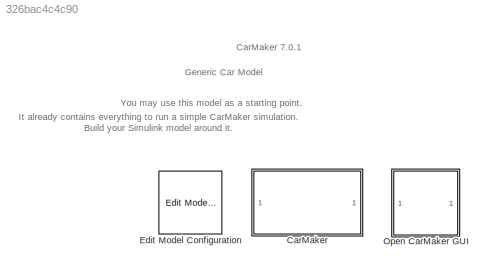
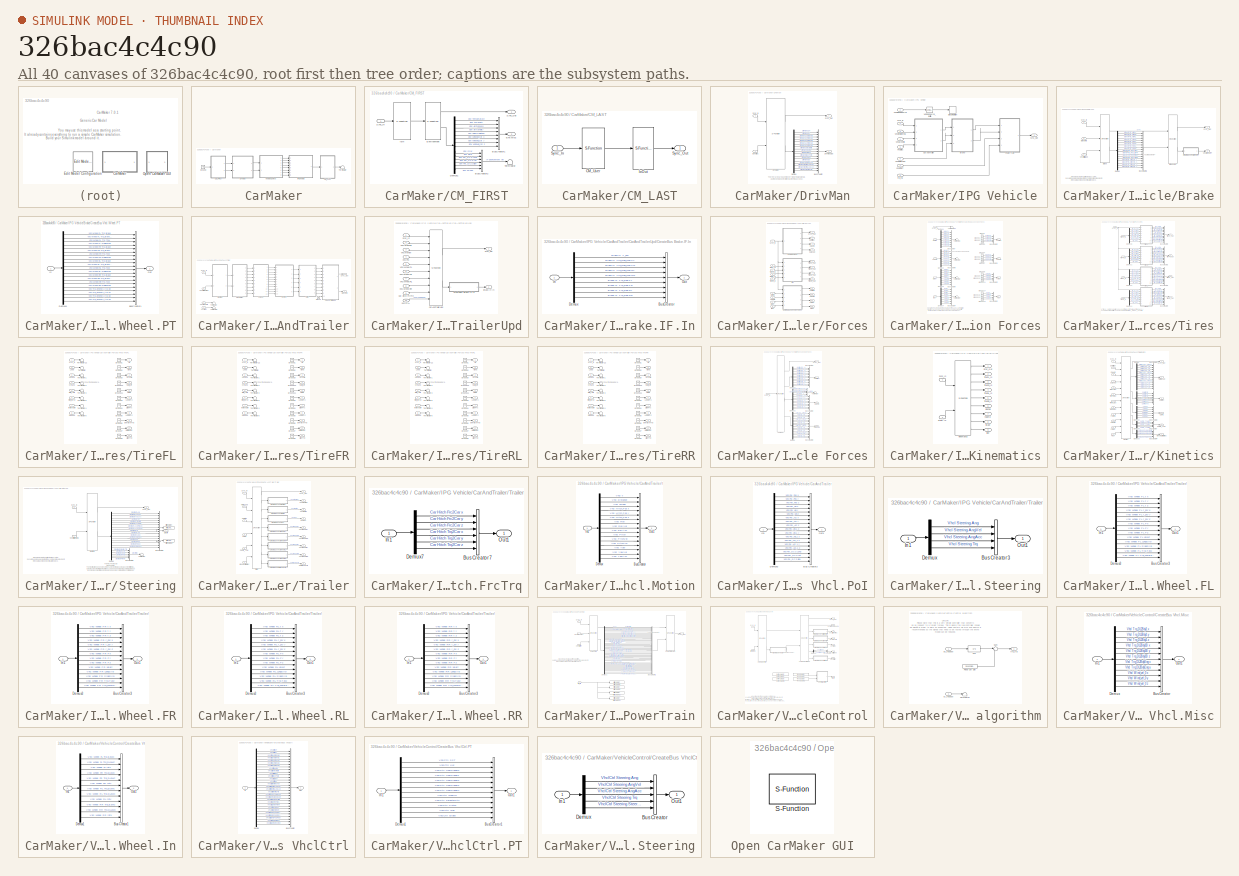
[diagram: thumbnail index - all 40 canvases of the model, root first then tree order]
MODEL slx_326bac4c4c90
KIND model
CONFIG AbsTol = auto
CONFIG EnableMultiTasking = on
CONFIG FixedStep = auto
CONFIG MaxStep = auto
CONFIG MinStep = auto
CONFIG RelTol = 1e-3
CONFIG SampleTimeConstraint = Unconstrained
CONFIG Solver = ode45
CONFIG SolverName = ode45
CONFIG StartTime = 0.0
CONFIG StopTime = inf
BLOCK [SubSystem] CarMaker
  Ports = []
  RequestExecContextInheritance = off
  TreatAsAtomicUnit = on
BLOCK [SubSystem] CarMaker/CM_FIRST
  Ports = [1, 2]
  RequestExecContextInheritance = off
BLOCK [BusCreator] CarMaker/CM_FIRST/BusCreator1
  InheritFromInputs = on
  Inputs = 8
  Ports = [8, 1]
BLOCK [BusCreator] CarMaker/CM_FIRST/BusCreator2
  InheritFromInputs = on
  Inputs = 6
  Ports = [6, 1]
BLOCK [Demux] CarMaker/CM_FIRST/Demux1
  Outputs = 14
  Ports = [1, 14]
BLOCK [Outport] CarMaker/CM_FIRST/Env.Misc
  IconDisplay = Port number
  Port = 2
BLOCK [S-Function] CarMaker/CM_FIRST/Environment
  EnableBusSupport = off
  FunctionName = CM_Sfun
  Parameters = 'Environment'
  Ports = [1, 2]
  SFcnIsStateOwnerBlock = off
  SFunctionDeploymentMode = off
BLOCK [S-Function] CarMaker/CM_FIRST/IoIn
  EnableBusSupport = off
  FunctionName = CM_Sfun
  Parameters = 'IoIn'
  Ports = [1, 1]
  SFcnIsStateOwnerBlock = off
  SFunctionDeploymentMode = off
BLOCK [Inport] CarMaker/CM_FIRST/Sync_In
  IconDisplay = Port number
BLOCK [Outport] CarMaker/CM_FIRST/Sync_Out
  IconDisplay = Port number
BLOCK [Terminator] CarMaker/CM_FIRST/Terminator
BLOCK [SubSystem] CarMaker/CM_LAST
  Ports = [1, 1]
  RequestExecContextInheritance = off
BLOCK [S-Function] CarMaker/CM_LAST/CM_User
  EnableBusSupport = off
  FunctionName = CM_Sfun
  Parameters = 'CM_User'
  Ports = [1, 1]
  SFcnIsStateOwnerBlock = off
  SFunctionDeploymentMode = off
BLOCK [S-Function] CarMaker/CM_LAST/IoOut
  EnableBusSupport = off
  FunctionName = CM_Sfun
  Parameters = 'IoOut'
  Ports = [1, 1]
  SFcnIsStateOwnerBlock = off
  SFunctionDeploymentMode = off
BLOCK [Inport] CarMaker/CM_LAST/Sync_In
  IconDisplay = Port number
BLOCK [Outport] CarMaker/CM_LAST/Sync_Out
  IconDisplay = Port number
BLOCK [SubSystem] CarMaker/DrivMan
  Ports = [2, 2]
  RequestExecContextInheritance = off
BLOCK [BusCreator] CarMaker/DrivMan/BusCreator
  InheritFromInputs = on
  Inputs = 17
  Ports = [17, 1]
BLOCK [Demux] CarMaker/DrivMan/Demux
  Outputs = 17
  Ports = [1, 17]
BLOCK [S-Function] CarMaker/DrivMan/DrivMan
  EnableBusSupport = off
  FunctionName = CM_Sfun
  Parameters = 'DrivMan'
  Ports = [2, 2]
  SFcnIsStateOwnerBlock = off
  SFunctionDeploymentMode = off
BLOCK [Outport] CarMaker/DrivMan/DrivMan.Out
  IconDisplay = Port number
  Port = 2
BLOCK [Inport] CarMaker/DrivMan/Env.Misc
  IconDisplay = Port number
  Port = 2
BLOCK [Inport] CarMaker/DrivMan/Sync_In
  IconDisplay = Port number
BLOCK [Outport] CarMaker/DrivMan/Sync_Out
  IconDisplay = Port number
BLOCK [Ground] CarMaker/Ground
BLOCK [SubSystem] CarMaker/IPG Vehicle
  Ports = [8, 1]
  RequestExecContextInheritance = off
  TreatAsAtomicUnit = on
BLOCK [SubSystem] CarMaker/IPG Vehicle/Brake
  Ports = [3, 2]
  RequestExecContextInheritance = off
BLOCK [S-Function] CarMaker/IPG Vehicle/Brake/Brake
  EnableBusSupport = off
  FunctionName = CM_Sfun
  Parameters = 'Brake'
  Ports = [3, 2]
  SFcnIsStateOwnerBlock = off
  SFunctionDeploymentMode = off
BLOCK [Inport] CarMaker/IPG Vehicle/Brake/Brake.IF.In
  IconDisplay = Port number
  Port = 2
BLOCK [S-Function] CarMaker/IPG Vehicle/Brake/BrakeUpd
  EnableBusSupport = off
  FunctionName = CM_Sfun
  Parameters = 'BrakeUpd'
  Ports = [2, 2]
  SFcnIsStateOwnerBlock = off
  SFunctionDeploymentMode = off
BLOCK [BusCreator] CarMaker/IPG Vehicle/Brake/BusCreator1
  InheritFromInputs = on
  Inputs = 16
  Ports = [16, 1]
BLOCK [SubSystem] CarMaker/IPG Vehicle/Brake/CreateBus Vhcl.Wheel.PT
  Ports = [1, 1]
  RequestExecContextInheritance = off
BLOCK [BusCreator] CarMaker/IPG Vehicle/Brake/CreateBus Vhcl.Wheel.PT/BusCreator1
  InheritFromInputs = on
  Inputs = 20
  Ports = [20, 1]
BLOCK [Demux] CarMaker/IPG Vehicle/Brake/CreateBus Vhcl.Wheel.PT/Demux1
  Outputs = 20
  Ports = [1, 20]
BLOCK [Inport] CarMaker/IPG Vehicle/Brake/CreateBus Vhcl.Wheel.PT/In
  IconDisplay = Port number
BLOCK [Outport] CarMaker/IPG Vehicle/Brake/CreateBus Vhcl.Wheel.PT/Out
  IconDisplay = Port number
BLOCK [Demux] CarMaker/IPG Vehicle/Brake/Demux
  Outputs = 16
  Ports = [1, 16]
BLOCK [Inport] CarMaker/IPG Vehicle/Brake/Sync_In
  IconDisplay = Port number
BLOCK [Outport] CarMaker/IPG Vehicle/Brake/Sync_Out
  IconDisplay = Port number
BLOCK [Outport] CarMaker/IPG Vehicle/Brake/Vhcl.Wheel.PT
  IconDisplay = Port number
  Port = 2
BLOCK [Inport] CarMaker/IPG Vehicle/Brake/VhclCtrl.Brake
  IconDisplay = Port number
  Port = 3
BLOCK [SubSystem] CarMaker/IPG Vehicle/CarAndTrailer
  Ports = [4, 2]
  RequestExecContextInheritance = off
BLOCK [Outport] CarMaker/IPG Vehicle/CarAndTrailer/Brake.IF.In
  IconDisplay = Port number
  Port = 2
BLOCK [SubSystem] CarMaker/IPG Vehicle/CarAndTrailer/CarAndTrailerUpd
  Ports = [10, 2]
  RequestExecContextInheritance = off
BLOCK [Outport] CarMaker/IPG Vehicle/CarAndTrailer/CarAndTrailerUpd/Brake.IF.In
  IconDisplay = Port number
  Port = 2
BLOCK [Inport] CarMaker/IPG Vehicle/CarAndTrailer/CarAndTrailerUpd/Car.Hitch.FrcTrq
  IconDisplay = Port number
  Port = 9
BLOCK [S-Function] CarMaker/IPG Vehicle/CarAndTrailer/CarAndTrailerUpd/CarAndTrailerUpd
  EnableBusSupport = off
  FunctionName = CM_Sfun
  Parameters = 'CarAndTrUpd'
  Ports = [10, 2]
  SFcnIsStateOwnerBlock = off
  SFunctionDeploymentMode = off
BLOCK [SubSystem] CarMaker/IPG Vehicle/CarAndTrailer/CarAndTrailerUpd/CreateBus Brake.IF.In
  Ports = [1, 1]
  RequestExecContextInheritance = off
BLOCK [BusCreator] CarMaker/IPG Vehicle/CarAndTrailer/CarAndTrailerUpd/CreateBus Brake.IF.In/BusCreator
  InheritFromInputs = on
  Inputs = 9
  Ports = [9, 1]
BLOCK [Demux] CarMaker/IPG Vehicle/CarAndTrailer/CarAndTrailerUpd/CreateBus Brake.IF.In/Demux
  Outputs = 9
  Ports = [1, 9]
BLOCK [Inport] CarMaker/IPG Vehicle/CarAndTrailer/CarAndTrailerUpd/CreateBus Brake.IF.In/In
  IconDisplay = Port number
BLOCK [Outport] CarMaker/IPG Vehicle/CarAndTrailer/CarAndTrailerUpd/CreateBus Brake.IF.In/Out
  IconDisplay = Port number
BLOCK [Inport] CarMaker/IPG Vehicle/CarAndTrailer/CarAndTrailerUpd/Sync_In
  IconDisplay = Port number
BLOCK [Outport] CarMaker/IPG Vehicle/CarAndTrailer/CarAndTrailerUpd/Sync_Out
  IconDisplay = Port number
BLOCK [Inport] CarMaker/IPG Vehicle/CarAndTrailer/CarAndTrailerUpd/Vhcl.Fr1A
  IconDisplay = Port number
  Port = 10
BLOCK [Inport] CarMaker/IPG Vehicle/CarAndTrailer/CarAndTrailerUpd/Vhcl.Motion
  IconDisplay = Port number
  Port = 3
BLOCK [Inport] CarMaker/IPG Vehicle/CarAndTrailer/CarAndTrailerUpd/Vhcl.PoI
  IconDisplay = Port number
  Port = 4
BLOCK [Inport] CarMaker/IPG Vehicle/CarAndTrailer/CarAndTrailerUpd/Vhcl.Steering
  IconDisplay = Port number
  Port = 2
BLOCK [Inport] CarMaker/IPG Vehicle/CarAndTrailer/CarAndTrailerUpd/Vhcl.Wheel.FL
  IconDisplay = Port number
  Port = 5
BLOCK [Inport] CarMaker/IPG Vehicle/CarAndTrailer/CarAndTrailerUpd/Vhcl.Wheel.FR
  IconDisplay = Port number
  Port = 6
BLOCK [Inport] CarMaker/IPG Vehicle/CarAndTrailer/CarAndTrailerUpd/Vhcl.Wheel.RL
  IconDisplay = Port number
  Port = 7
BLOCK [Inport] CarMaker/IPG Vehicle/CarAndTrailer/CarAndTrailerUpd/Vhcl.Wheel.RR
  IconDisplay = Port number
  Port = 8
BLOCK [SubSystem] CarMaker/IPG Vehicle/CarAndTrailer/Forces
  Ports = [9, 12]
  RequestExecContextInheritance = off
BLOCK [Outport] CarMaker/IPG Vehicle/CarAndTrailer/Forces/Car.Aero
  IconDisplay = Port number
  Port = 3
BLOCK [Outport] CarMaker/IPG Vehicle/CarAndTrailer/Forces/Car.Load
  IconDisplay = Port number
  Port = 4
BLOCK [Outport] CarMaker/IPG Vehicle/CarAndTrailer/Forces/Car.Virtual
  IconDisplay = Port number
  Port = 2
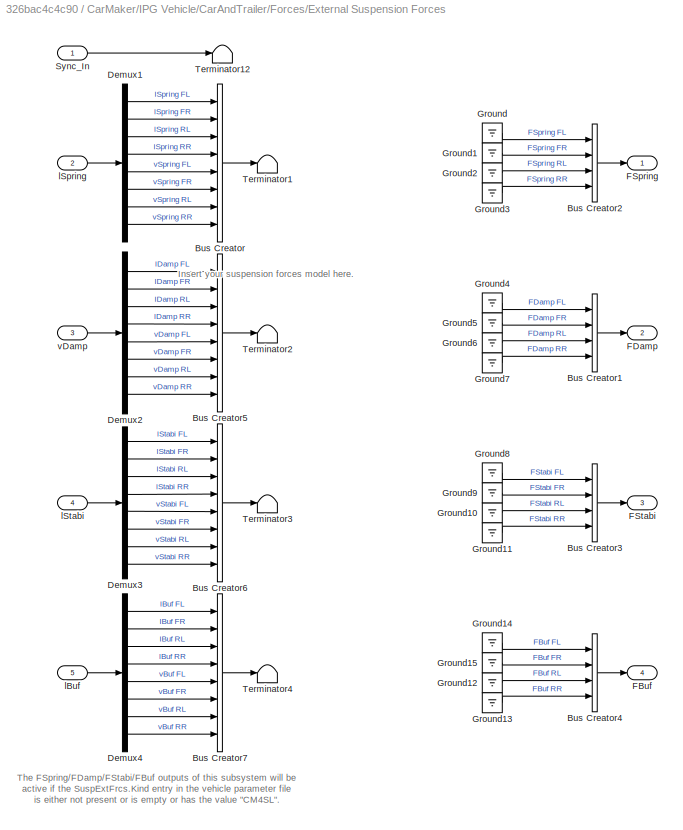
BLOCK [SubSystem] CarMaker/IPG Vehicle/CarAndTrailer/Forces/External Suspension Forces
  Ports = [5, 4]
  RequestExecContextInheritance = off
BLOCK [BusCreator] CarMaker/IPG Vehicle/CarAndTrailer/Forces/External Suspension Forces/Bus Creator
  DisplayOption = bar
  InheritFromInputs = on
  Inputs = 8
  Ports = [8, 1]
BLOCK [BusCreator] CarMaker/IPG Vehicle/CarAndTrailer/Forces/External Suspension Forces/Bus Creator1
  DisplayOption = bar
  InheritFromInputs = on
  Inputs = 4
  Ports = [4, 1]
BLOCK [BusCreator] CarMaker/IPG Vehicle/CarAndTrailer/Forces/External Suspension Forces/Bus Creator2
  DisplayOption = bar
  InheritFromInputs = on
  Inputs = 4
  Ports = [4, 1]
BLOCK [BusCreator] CarMaker/IPG Vehicle/CarAndTrailer/Forces/External Suspension Forces/Bus Creator3
  DisplayOption = bar
  InheritFromInputs = on
  Inputs = 4
  Ports = [4, 1]
BLOCK [BusCreator] CarMaker/IPG Vehicle/CarAndTrailer/Forces/External Suspension Forces/Bus Creator4
  DisplayOption = bar
  InheritFromInputs = on
  Inputs = 4
  Ports = [4, 1]
BLOCK [BusCreator] CarMaker/IPG Vehicle/CarAndTrailer/Forces/External Suspension Forces/Bus Creator5
  DisplayOption = bar
  InheritFromInputs = on
  Inputs = 8
  Ports = [8, 1]
BLOCK [BusCreator] CarMaker/IPG Vehicle/CarAndTrailer/Forces/External Suspension Forces/Bus Creator6
  DisplayOption = bar
  InheritFromInputs = on
  Inputs = 8
  Ports = [8, 1]
BLOCK [BusCreator] CarMaker/IPG Vehicle/CarAndTrailer/Forces/External Suspension Forces/Bus Creator7
  DisplayOption = bar
  InheritFromInputs = on
  Inputs = 8
  Ports = [8, 1]
BLOCK [Demux] CarMaker/IPG Vehicle/CarAndTrailer/Forces/External Suspension Forces/Demux1
  Outputs = 8
  Ports = [1, 8]
BLOCK [Demux] CarMaker/IPG Vehicle/CarAndTrailer/Forces/External Suspension Forces/Demux2
  Outputs = 8
  Ports = [1, 8]
BLOCK [Demux] CarMaker/IPG Vehicle/CarAndTrailer/Forces/External Suspension Forces/Demux3
  Outputs = 8
  Ports = [1, 8]
BLOCK [Demux] CarMaker/IPG Vehicle/CarAndTrailer/Forces/External Suspension Forces/Demux4
  Outputs = 8
  Ports = [1, 8]
BLOCK [Outport] CarMaker/IPG Vehicle/CarAndTrailer/Forces/External Suspension Forces/FBuf
  IconDisplay = Port number
  Port = 4
BLOCK [Outport] CarMaker/IPG Vehicle/CarAndTrailer/Forces/External Suspension Forces/FDamp
  IconDisplay = Port number
  Port = 2
BLOCK [Outport] CarMaker/IPG Vehicle/CarAndTrailer/Forces/External Suspension Forces/FSpring
  IconDisplay = Port number
BLOCK [Outport] CarMaker/IPG Vehicle/CarAndTrailer/Forces/External Suspension Forces/FStabi
  IconDisplay = Port number
  Port = 3
BLOCK [Ground] CarMaker/IPG Vehicle/CarAndTrailer/Forces/External Suspension Forces/Ground
BLOCK [Ground] CarMaker/IPG Vehicle/CarAndTrailer/Forces/External Suspension Forces/Ground1
BLOCK [Ground] CarMaker/IPG Vehicle/CarAndTrailer/Forces/External Suspension Forces/Ground10
BLOCK [Ground] CarMaker/IPG Vehicle/CarAndTrailer/Forces/External Suspension Forces/Ground11
BLOCK [Ground] CarMaker/IPG Vehicle/CarAndTrailer/Forces/External Suspension Forces/Ground12
BLOCK [Ground] CarMaker/IPG Vehicle/CarAndTrailer/Forces/External Suspension Forces/Ground13
BLOCK [Ground] CarMaker/IPG Vehicle/CarAndTrailer/Forces/External Suspension Forces/Ground14
BLOCK [Ground] CarMaker/IPG Vehicle/CarAndTrailer/Forces/External Suspension Forces/Ground15
BLOCK [Ground] CarMaker/IPG Vehicle/CarAndTrailer/Forces/External Suspension Forces/Ground2
BLOCK [Ground] CarMaker/IPG Vehicle/CarAndTrailer/Forces/External Suspension Forces/Ground3
BLOCK [Ground] CarMaker/IPG Vehicle/CarAndTrailer/Forces/External Suspension Forces/Ground4
BLOCK [Ground] CarMaker/IPG Vehicle/CarAndTrailer/Forces/External Suspension Forces/Ground5
BLOCK [Ground] CarMaker/IPG Vehicle/CarAndTrailer/Forces/External Suspension Forces/Ground6
BLOCK [Ground] CarMaker/IPG Vehicle/CarAndTrailer/Forces/External Suspension Forces/Ground7
BLOCK [Ground] CarMaker/IPG Vehicle/CarAndTrailer/Forces/External Suspension Forces/Ground8
BLOCK [Ground] CarMaker/IPG Vehicle/CarAndTrailer/Forces/External Suspension Forces/Ground9
BLOCK [Inport] CarMaker/IPG Vehicle/CarAndTrailer/Forces/External Suspension Forces/Sync_In
  IconDisplay = Port number
BLOCK [Terminator] CarMaker/IPG Vehicle/CarAndTrailer/Forces/External Suspension Forces/Terminator1
BLOCK [Terminator] CarMaker/IPG Vehicle/CarAndTrailer/Forces/External Suspension Forces/Terminator12
BLOCK [Terminator] CarMaker/IPG Vehicle/CarAndTrailer/Forces/External Suspension Forces/Terminator2
BLOCK [Terminator] CarMaker/IPG Vehicle/CarAndTrailer/Forces/External Suspension Forces/Terminator3
BLOCK [Terminator] CarMaker/IPG Vehicle/CarAndTrailer/Forces/External Suspension Forces/Terminator4
BLOCK [Inport] CarMaker/IPG Vehicle/CarAndTrailer/Forces/External Suspension Forces/lBuf
  IconDisplay = Port number
  Port = 5
BLOCK [Inport] CarMaker/IPG Vehicle/CarAndTrailer/Forces/External Suspension Forces/lSpring
  IconDisplay = Port number
  Port = 2
BLOCK [Inport] CarMaker/IPG Vehicle/CarAndTrailer/Forces/External Suspension Forces/lStabi
  IconDisplay = Port number
  Port = 4
BLOCK [Inport] CarMaker/IPG Vehicle/CarAndTrailer/Forces/External Suspension Forces/vDamp
  IconDisplay = Port number
  Port = 3
BLOCK [Outport] CarMaker/IPG Vehicle/CarAndTrailer/Forces/FBuf
  IconDisplay = Port number
  Port = 12
BLOCK [Outport] CarMaker/IPG Vehicle/CarAndTrailer/Forces/FDamp
  IconDisplay = Port number
  Port = 10
BLOCK [Outport] CarMaker/IPG Vehicle/CarAndTrailer/Forces/FSpring
  IconDisplay = Port number
  Port = 9
BLOCK [Outport] CarMaker/IPG Vehicle/CarAndTrailer/Forces/FStabi
  IconDisplay = Port number
  Port = 11
BLOCK [Inport] CarMaker/IPG Vehicle/CarAndTrailer/Forces/Sync_In
  IconDisplay = Port number
BLOCK [Outport] CarMaker/IPG Vehicle/CarAndTrailer/Forces/Sync_Out
  IconDisplay = Port number
BLOCK [Inport] CarMaker/IPG Vehicle/CarAndTrailer/Forces/TireFL_In
  IconDisplay = Port number
  Port = 2
BLOCK [Outport] CarMaker/IPG Vehicle/CarAndTrailer/Forces/TireFL_Out
  IconDisplay = Port number
  Port = 5
BLOCK [Inport] CarMaker/IPG Vehicle/CarAndTrailer/Forces/TireFR_In
  IconDisplay = Port number
  Port = 3
BLOCK [Outport] CarMaker/IPG Vehicle/CarAndTrailer/Forces/TireFR_Out
  IconDisplay = Port number
  Port = 6
BLOCK [Inport] CarMaker/IPG Vehicle/CarAndTrailer/Forces/TireRL_In
  IconDisplay = Port number
  Port = 4
BLOCK [Outport] CarMaker/IPG Vehicle/CarAndTrailer/Forces/TireRL_Out
  IconDisplay = Port number
  Port = 7
BLOCK [Inport] CarMaker/IPG Vehicle/CarAndTrailer/Forces/TireRR_In
  IconDisplay = Port number
  Port = 5
BLOCK [Outport] CarMaker/IPG Vehicle/CarAndTrailer/Forces/TireRR_Out
  IconDisplay = Port number
  Port = 8
BLOCK [SubSystem] CarMaker/IPG Vehicle/CarAndTrailer/Forces/Tires
  Ports = [5, 4]
  RequestExecContextInheritance = off
BLOCK [BusCreator] CarMaker/IPG Vehicle/CarAndTrailer/Forces/Tires/Bus Creator1
  DisplayOption = bar
  InheritFromInputs = on
  Inputs = 11
  Ports = [11, 1]
BLOCK [BusCreator] CarMaker/IPG Vehicle/CarAndTrailer/Forces/Tires/Bus Creator2
  DisplayOption = bar
  InheritFromInputs = on
  Inputs = 11
  Ports = [11, 1]
BLOCK [BusCreator] CarMaker/IPG Vehicle/CarAndTrailer/Forces/Tires/Bus Creator3
  DisplayOption = bar
  InheritFromInputs = on
  Inputs = 11
  Ports = [11, 1]
BLOCK [BusCreator] CarMaker/IPG Vehicle/CarAndTrailer/Forces/Tires/Bus Creator4
  DisplayOption = bar
  InheritFromInputs = on
  Inputs = 11
  Ports = [11, 1]
BLOCK [Demux] CarMaker/IPG Vehicle/CarAndTrailer/Forces/Tires/Demux1
  Outputs = 7
  Ports = [1, 7]
BLOCK [Demux] CarMaker/IPG Vehicle/CarAndTrailer/Forces/Tires/Demux2
  Outputs = 7
  Ports = [1, 7]
BLOCK [Demux] CarMaker/IPG Vehicle/CarAndTrailer/Forces/Tires/Demux3
  Outputs = 7
  Ports = [1, 7]
BLOCK [Demux] CarMaker/IPG Vehicle/CarAndTrailer/Forces/Tires/Demux8
  Outputs = 7
  Ports = [1, 7]
BLOCK [Inport] CarMaker/IPG Vehicle/CarAndTrailer/Forces/Tires/Sync_In
  IconDisplay = Port number
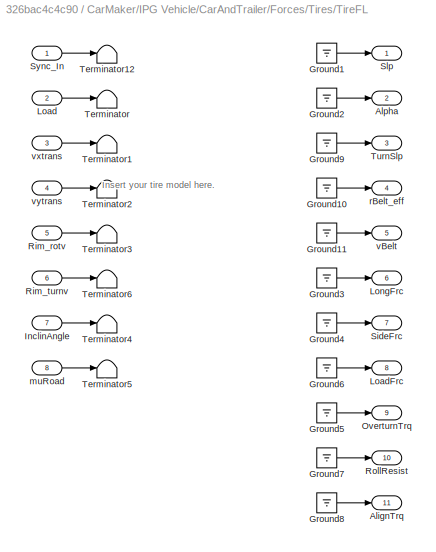
BLOCK [SubSystem] CarMaker/IPG Vehicle/CarAndTrailer/Forces/Tires/TireFL
  Ports = [8, 11]
  RequestExecContextInheritance = off
BLOCK [Outport] CarMaker/IPG Vehicle/CarAndTrailer/Forces/Tires/TireFL/AlignTrq
  IconDisplay = Port number
  Port = 11
BLOCK [Outport] CarMaker/IPG Vehicle/CarAndTrailer/Forces/Tires/TireFL/Alpha
  IconDisplay = Port number
  Port = 2
BLOCK [Ground] CarMaker/IPG Vehicle/CarAndTrailer/Forces/Tires/TireFL/Ground1
BLOCK [Ground] CarMaker/IPG Vehicle/CarAndTrailer/Forces/Tires/TireFL/Ground10
BLOCK [Ground] CarMaker/IPG Vehicle/CarAndTrailer/Forces/Tires/TireFL/Ground11
BLOCK [Ground] CarMaker/IPG Vehicle/CarAndTrailer/Forces/Tires/TireFL/Ground2
BLOCK [Ground] CarMaker/IPG Vehicle/CarAndTrailer/Forces/Tires/TireFL/Ground3
BLOCK [Ground] CarMaker/IPG Vehicle/CarAndTrailer/Forces/Tires/TireFL/Ground4
BLOCK [Ground] CarMaker/IPG Vehicle/CarAndTrailer/Forces/Tires/TireFL/Ground5
BLOCK [Ground] CarMaker/IPG Vehicle/CarAndTrailer/Forces/Tires/TireFL/Ground6
BLOCK [Ground] CarMaker/IPG Vehicle/CarAndTrailer/Forces/Tires/TireFL/Ground7
BLOCK [Ground] CarMaker/IPG Vehicle/CarAndTrailer/Forces/Tires/TireFL/Ground8
BLOCK [Ground] CarMaker/IPG Vehicle/CarAndTrailer/Forces/Tires/TireFL/Ground9
BLOCK [Inport] CarMaker/IPG Vehicle/CarAndTrailer/Forces/Tires/TireFL/InclinAngle
  IconDisplay = Port number
  Port = 7
BLOCK [Inport] CarMaker/IPG Vehicle/CarAndTrailer/Forces/Tires/TireFL/Load
  IconDisplay = Port number
  Port = 2
BLOCK [Outport] CarMaker/IPG Vehicle/CarAndTrailer/Forces/Tires/TireFL/LoadFrc
  IconDisplay = Port number
  Port = 8
BLOCK [Outport] CarMaker/IPG Vehicle/CarAndTrailer/Forces/Tires/TireFL/LongFrc
  IconDisplay = Port number
  Port = 6
BLOCK [Outport] CarMaker/IPG Vehicle/CarAndTrailer/Forces/Tires/TireFL/OverturnTrq
  IconDisplay = Port number
  Port = 9
BLOCK [Inport] CarMaker/IPG Vehicle/CarAndTrailer/Forces/Tires/TireFL/Rim_rotv
  IconDisplay = Port number
  Port = 5
BLOCK [Inport] CarMaker/IPG Vehicle/CarAndTrailer/Forces/Tires/TireFL/Rim_turnv
  IconDisplay = Port number
  Port = 6
BLOCK [Outport] CarMaker/IPG Vehicle/CarAndTrailer/Forces/Tires/TireFL/RollResist
  IconDisplay = Port number
  Port = 10
BLOCK [Outport] CarMaker/IPG Vehicle/CarAndTrailer/Forces/Tires/TireFL/SideFrc
  IconDisplay = Port number
  Port = 7
BLOCK [Outport] CarMaker/IPG Vehicle/CarAndTrailer/Forces/Tires/TireFL/Slp
  IconDisplay = Port number
BLOCK [Inport] CarMaker/IPG Vehicle/CarAndTrailer/Forces/Tires/TireFL/Sync_In
  IconDisplay = Port number
BLOCK [Terminator] CarMaker/IPG Vehicle/CarAndTrailer/Forces/Tires/TireFL/Terminator
BLOCK [Terminator] CarMaker/IPG Vehicle/CarAndTrailer/Forces/Tires/TireFL/Terminator1
BLOCK [Terminator] CarMaker/IPG Vehicle/CarAndTrailer/Forces/Tires/TireFL/Terminator12
BLOCK [Terminator] CarMaker/IPG Vehicle/CarAndTrailer/Forces/Tires/TireFL/Terminator2
BLOCK [Terminator] CarMaker/IPG Vehicle/CarAndTrailer/Forces/Tires/TireFL/Terminator3
BLOCK [Terminator] CarMaker/IPG Vehicle/CarAndTrailer/Forces/Tires/TireFL/Terminator4
BLOCK [Terminator] CarMaker/IPG Vehicle/CarAndTrailer/Forces/Tires/TireFL/Terminator5
BLOCK [Terminator] CarMaker/IPG Vehicle/CarAndTrailer/Forces/Tires/TireFL/Terminator6
BLOCK [Outport] CarMaker/IPG Vehicle/CarAndTrailer/Forces/Tires/TireFL/TurnSlp
  IconDisplay = Port number
  Port = 3
BLOCK [Inport] CarMaker/IPG Vehicle/CarAndTrailer/Forces/Tires/TireFL/muRoad
  IconDisplay = Port number
  Port = 8
BLOCK [Outport] CarMaker/IPG Vehicle/CarAndTrailer/Forces/Tires/TireFL/rBelt_eff
  IconDisplay = Port number
  Port = 4
BLOCK [Outport] CarMaker/IPG Vehicle/CarAndTrailer/Forces/Tires/TireFL/vBelt
  IconDisplay = Port number
  Port = 5
BLOCK [Inport] CarMaker/IPG Vehicle/CarAndTrailer/Forces/Tires/TireFL/vxtrans
  IconDisplay = Port number
  Port = 3
BLOCK [Inport] CarMaker/IPG Vehicle/CarAndTrailer/Forces/Tires/TireFL/vytrans
  IconDisplay = Port number
  Port = 4
BLOCK [Inport] CarMaker/IPG Vehicle/CarAndTrailer/Forces/Tires/TireFL_In
  IconDisplay = Port number
  Port = 2
BLOCK [Outport] CarMaker/IPG Vehicle/CarAndTrailer/Forces/Tires/TireFL_Out
  IconDisplay = Port number
BLOCK [SubSystem] CarMaker/IPG Vehicle/CarAndTrailer/Forces/Tires/TireFR
  Ports = [8, 11]
  RequestExecContextInheritance = off
BLOCK [Outport] CarMaker/IPG Vehicle/CarAndTrailer/Forces/Tires/TireFR/AlignTrq
  IconDisplay = Port number
  Port = 11
BLOCK [Outport] CarMaker/IPG Vehicle/CarAndTrailer/Forces/Tires/TireFR/Alpha
  IconDisplay = Port number
  Port = 2
BLOCK [Ground] CarMaker/IPG Vehicle/CarAndTrailer/Forces/Tires/TireFR/Ground1
BLOCK [Ground] CarMaker/IPG Vehicle/CarAndTrailer/Forces/Tires/TireFR/Ground10
BLOCK [Ground] CarMaker/IPG Vehicle/CarAndTrailer/Forces/Tires/TireFR/Ground11
BLOCK [Ground] CarMaker/IPG Vehicle/CarAndTrailer/Forces/Tires/TireFR/Ground2
BLOCK [Ground] CarMaker/IPG Vehicle/CarAndTrailer/Forces/Tires/TireFR/Ground3
BLOCK [Ground] CarMaker/IPG Vehicle/CarAndTrailer/Forces/Tires/TireFR/Ground4
BLOCK [Ground] CarMaker/IPG Vehicle/CarAndTrailer/Forces/Tires/TireFR/Ground5
BLOCK [Ground] CarMaker/IPG Vehicle/CarAndTrailer/Forces/Tires/TireFR/Ground6
BLOCK [Ground] CarMaker/IPG Vehicle/CarAndTrailer/Forces/Tires/TireFR/Ground7
BLOCK [Ground] CarMaker/IPG Vehicle/CarAndTrailer/Forces/Tires/TireFR/Ground8
BLOCK [Ground] CarMaker/IPG Vehicle/CarAndTrailer/Forces/Tires/TireFR/Ground9
BLOCK [Inport] CarMaker/IPG Vehicle/CarAndTrailer/Forces/Tires/TireFR/InclinAngle
  IconDisplay = Port number
  Port = 7
BLOCK [Inport] CarMaker/IPG Vehicle/CarAndTrailer/Forces/Tires/TireFR/Load
  IconDisplay = Port number
  Port = 2
BLOCK [Outport] CarMaker/IPG Vehicle/CarAndTrailer/Forces/Tires/TireFR/LoadFrc
  IconDisplay = Port number
  Port = 8
BLOCK [Outport] CarMaker/IPG Vehicle/CarAndTrailer/Forces/Tires/TireFR/LongFrc
  IconDisplay = Port number
  Port = 6
BLOCK [Outport] CarMaker/IPG Vehicle/CarAndTrailer/Forces/Tires/TireFR/OverturnTrq
  IconDisplay = Port number
  Port = 9
BLOCK [Inport] CarMaker/IPG Vehicle/CarAndTrailer/Forces/Tires/TireFR/Rim_rotv
  IconDisplay = Port number
  Port = 5
BLOCK [Inport] CarMaker/IPG Vehicle/CarAndTrailer/Forces/Tires/TireFR/Rim_turnv
  IconDisplay = Port number
  Port = 6
BLOCK [Outport] CarMaker/IPG Vehicle/CarAndTrailer/Forces/Tires/TireFR/RollResist
  IconDisplay = Port number
  Port = 10
BLOCK [Outport] CarMaker/IPG Vehicle/CarAndTrailer/Forces/Tires/TireFR/SideFrc
  IconDisplay = Port number
  Port = 7
BLOCK [Outport] CarMaker/IPG Vehicle/CarAndTrailer/Forces/Tires/TireFR/Slp
  IconDisplay = Port number
BLOCK [Inport] CarMaker/IPG Vehicle/CarAndTrailer/Forces/Tires/TireFR/Sync_In
  IconDisplay = Port number
BLOCK [Terminator] CarMaker/IPG Vehicle/CarAndTrailer/Forces/Tires/TireFR/Terminator
BLOCK [Terminator] CarMaker/IPG Vehicle/CarAndTrailer/Forces/Tires/TireFR/Terminator1
BLOCK [Terminator] CarMaker/IPG Vehicle/CarAndTrailer/Forces/Tires/TireFR/Terminator12
BLOCK [Terminator] CarMaker/IPG Vehicle/CarAndTrailer/Forces/Tires/TireFR/Terminator2
BLOCK [Terminator] CarMaker/IPG Vehicle/CarAndTrailer/Forces/Tires/TireFR/Terminator3
BLOCK [Terminator] CarMaker/IPG Vehicle/CarAndTrailer/Forces/Tires/TireFR/Terminator4
BLOCK [Terminator] CarMaker/IPG Vehicle/CarAndTrailer/Forces/Tires/TireFR/Terminator5
BLOCK [Terminator] CarMaker/IPG Vehicle/CarAndTrailer/Forces/Tires/TireFR/Terminator6
BLOCK [Outport] CarMaker/IPG Vehicle/CarAndTrailer/Forces/Tires/TireFR/TurnSlp
  IconDisplay = Port number
  Port = 3
BLOCK [Inport] CarMaker/IPG Vehicle/CarAndTrailer/Forces/Tires/TireFR/muRoad
  IconDisplay = Port number
  Port = 8
BLOCK [Outport] CarMaker/IPG Vehicle/CarAndTrailer/Forces/Tires/TireFR/rBelt_eff
  IconDisplay = Port number
  Port = 4
BLOCK [Outport] CarMaker/IPG Vehicle/CarAndTrailer/Forces/Tires/TireFR/vBelt
  IconDisplay = Port number
  Port = 5
BLOCK [Inport] CarMaker/IPG Vehicle/CarAndTrailer/Forces/Tires/TireFR/vxtrans
  IconDisplay = Port number
  Port = 3
BLOCK [Inport] CarMaker/IPG Vehicle/CarAndTrailer/Forces/Tires/TireFR/vytrans
  IconDisplay = Port number
  Port = 4
BLOCK [Inport] CarMaker/IPG Vehicle/CarAndTrailer/Forces/Tires/TireFR_In
  IconDisplay = Port number
  Port = 3
BLOCK [Outport] CarMaker/IPG Vehicle/CarAndTrailer/Forces/Tires/TireFR_Out
  IconDisplay = Port number
  Port = 2
BLOCK [SubSystem] CarMaker/IPG Vehicle/CarAndTrailer/Forces/Tires/TireRL
  Ports = [8, 11]
  RequestExecContextInheritance = off
BLOCK [Outport] CarMaker/IPG Vehicle/CarAndTrailer/Forces/Tires/TireRL/AlignTrq
  IconDisplay = Port number
  Port = 11
BLOCK [Outport] CarMaker/IPG Vehicle/CarAndTrailer/Forces/Tires/TireRL/Alpha
  IconDisplay = Port number
  Port = 2
BLOCK [Ground] CarMaker/IPG Vehicle/CarAndTrailer/Forces/Tires/TireRL/Ground1
BLOCK [Ground] CarMaker/IPG Vehicle/CarAndTrailer/Forces/Tires/TireRL/Ground10
BLOCK [Ground] CarMaker/IPG Vehicle/CarAndTrailer/Forces/Tires/TireRL/Ground11
BLOCK [Ground] CarMaker/IPG Vehicle/CarAndTrailer/Forces/Tires/TireRL/Ground2
BLOCK [Ground] CarMaker/IPG Vehicle/CarAndTrailer/Forces/Tires/TireRL/Ground3
BLOCK [Ground] CarMaker/IPG Vehicle/CarAndTrailer/Forces/Tires/TireRL/Ground4
BLOCK [Ground] CarMaker/IPG Vehicle/CarAndTrailer/Forces/Tires/TireRL/Ground5
BLOCK [Ground] CarMaker/IPG Vehicle/CarAndTrailer/Forces/Tires/TireRL/Ground6
BLOCK [Ground] CarMaker/IPG Vehicle/CarAndTrailer/Forces/Tires/TireRL/Ground7
BLOCK [Ground] CarMaker/IPG Vehicle/CarAndTrailer/Forces/Tires/TireRL/Ground8
BLOCK [Ground] CarMaker/IPG Vehicle/CarAndTrailer/Forces/Tires/TireRL/Ground9
BLOCK [Inport] CarMaker/IPG Vehicle/CarAndTrailer/Forces/Tires/TireRL/InclinAngle
  IconDisplay = Port number
  Port = 7
BLOCK [Inport] CarMaker/IPG Vehicle/CarAndTrailer/Forces/Tires/TireRL/Load
  IconDisplay = Port number
  Port = 2
BLOCK [Outport] CarMaker/IPG Vehicle/CarAndTrailer/Forces/Tires/TireRL/LoadFrc
  IconDisplay = Port number
  Port = 8
BLOCK [Outport] CarMaker/IPG Vehicle/CarAndTrailer/Forces/Tires/TireRL/LongFrc
  IconDisplay = Port number
  Port = 6
BLOCK [Outport] CarMaker/IPG Vehicle/CarAndTrailer/Forces/Tires/TireRL/OverturnTrq
  IconDisplay = Port number
  Port = 9
BLOCK [Inport] CarMaker/IPG Vehicle/CarAndTrailer/Forces/Tires/TireRL/Rim_rotv
  IconDisplay = Port number
  Port = 5
BLOCK [Inport] CarMaker/IPG Vehicle/CarAndTrailer/Forces/Tires/TireRL/Rim_turnv
  IconDisplay = Port number
  Port = 6
BLOCK [Outport] CarMaker/IPG Vehicle/CarAndTrailer/Forces/Tires/TireRL/RollResist
  IconDisplay = Port number
  Port = 10
BLOCK [Outport] CarMaker/IPG Vehicle/CarAndTrailer/Forces/Tires/TireRL/SideFrc
  IconDisplay = Port number
  Port = 7
BLOCK [Outport] CarMaker/IPG Vehicle/CarAndTrailer/Forces/Tires/TireRL/Slp
  IconDisplay = Port number
BLOCK [Inport] CarMaker/IPG Vehicle/CarAndTrailer/Forces/Tires/TireRL/Sync_In
  IconDisplay = Port number
BLOCK [Terminator] CarMaker/IPG Vehicle/CarAndTrailer/Forces/Tires/TireRL/Terminator
BLOCK [Terminator] CarMaker/IPG Vehicle/CarAndTrailer/Forces/Tires/TireRL/Terminator1
BLOCK [Terminator] CarMaker/IPG Vehicle/CarAndTrailer/Forces/Tires/TireRL/Terminator12
BLOCK [Terminator] CarMaker/IPG Vehicle/CarAndTrailer/Forces/Tires/TireRL/Terminator2
BLOCK [Terminator] CarMaker/IPG Vehicle/CarAndTrailer/Forces/Tires/TireRL/Terminator3
BLOCK [Terminator] CarMaker/IPG Vehicle/CarAndTrailer/Forces/Tires/TireRL/Terminator4
BLOCK [Terminator] CarMaker/IPG Vehicle/CarAndTrailer/Forces/Tires/TireRL/Terminator5
BLOCK [Terminator] CarMaker/IPG Vehicle/CarAndTrailer/Forces/Tires/TireRL/Terminator6
BLOCK [Outport] CarMaker/IPG Vehicle/CarAndTrailer/Forces/Tires/TireRL/TurnSlp
  IconDisplay = Port number
  Port = 3
BLOCK [Inport] CarMaker/IPG Vehicle/CarAndTrailer/Forces/Tires/TireRL/muRoad
  IconDisplay = Port number
  Port = 8
BLOCK [Outport] CarMaker/IPG Vehicle/CarAndTrailer/Forces/Tires/TireRL/rBelt_eff
  IconDisplay = Port number
  Port = 4
BLOCK [Outport] CarMaker/IPG Vehicle/CarAndTrailer/Forces/Tires/TireRL/vBelt
  IconDisplay = Port number
  Port = 5
BLOCK [Inport] CarMaker/IPG Vehicle/CarAndTrailer/Forces/Tires/TireRL/vxtrans
  IconDisplay = Port number
  Port = 3
BLOCK [Inport] CarMaker/IPG Vehicle/CarAndTrailer/Forces/Tires/TireRL/vytrans
  IconDisplay = Port number
  Port = 4
BLOCK [Inport] CarMaker/IPG Vehicle/CarAndTrailer/Forces/Tires/TireRL_In
  IconDisplay = Port number
  Port = 4
BLOCK [Outport] CarMaker/IPG Vehicle/CarAndTrailer/Forces/Tires/TireRL_Out
  IconDisplay = Port number
  Port = 3
BLOCK [SubSystem] CarMaker/IPG Vehicle/CarAndTrailer/Forces/Tires/TireRR
  Ports = [8, 11]
  RequestExecContextInheritance = off
BLOCK [Outport] CarMaker/IPG Vehicle/CarAndTrailer/Forces/Tires/TireRR/AlignTrq
  IconDisplay = Port number
  Port = 11
BLOCK [Outport] CarMaker/IPG Vehicle/CarAndTrailer/Forces/Tires/TireRR/Alpha
  IconDisplay = Port number
  Port = 2
BLOCK [Ground] CarMaker/IPG Vehicle/CarAndTrailer/Forces/Tires/TireRR/Ground1
BLOCK [Ground] CarMaker/IPG Vehicle/CarAndTrailer/Forces/Tires/TireRR/Ground10
BLOCK [Ground] CarMaker/IPG Vehicle/CarAndTrailer/Forces/Tires/TireRR/Ground11
BLOCK [Ground] CarMaker/IPG Vehicle/CarAndTrailer/Forces/Tires/TireRR/Ground2
BLOCK [Ground] CarMaker/IPG Vehicle/CarAndTrailer/Forces/Tires/TireRR/Ground3
BLOCK [Ground] CarMaker/IPG Vehicle/CarAndTrailer/Forces/Tires/TireRR/Ground4
BLOCK [Ground] CarMaker/IPG Vehicle/CarAndTrailer/Forces/Tires/TireRR/Ground5
BLOCK [Ground] CarMaker/IPG Vehicle/CarAndTrailer/Forces/Tires/TireRR/Ground6
BLOCK [Ground] CarMaker/IPG Vehicle/CarAndTrailer/Forces/Tires/TireRR/Ground7
BLOCK [Ground] CarMaker/IPG Vehicle/CarAndTrailer/Forces/Tires/TireRR/Ground8
BLOCK [Ground] CarMaker/IPG Vehicle/CarAndTrailer/Forces/Tires/TireRR/Ground9
BLOCK [Inport] CarMaker/IPG Vehicle/CarAndTrailer/Forces/Tires/TireRR/InclinAngle
  IconDisplay = Port number
  Port = 7
BLOCK [Inport] CarMaker/IPG Vehicle/CarAndTrailer/Forces/Tires/TireRR/Load
  IconDisplay = Port number
  Port = 2
BLOCK [Outport] CarMaker/IPG Vehicle/CarAndTrailer/Forces/Tires/TireRR/LoadFrc
  IconDisplay = Port number
  Port = 8
BLOCK [Outport] CarMaker/IPG Vehicle/CarAndTrailer/Forces/Tires/TireRR/LongFrc
  IconDisplay = Port number
  Port = 6
BLOCK [Outport] CarMaker/IPG Vehicle/CarAndTrailer/Forces/Tires/TireRR/OverturnTrq
  IconDisplay = Port number
  Port = 9
BLOCK [Inport] CarMaker/IPG Vehicle/CarAndTrailer/Forces/Tires/TireRR/Rim_rotv
  IconDisplay = Port number
  Port = 5
BLOCK [Inport] CarMaker/IPG Vehicle/CarAndTrailer/Forces/Tires/TireRR/Rim_turnv
  IconDisplay = Port number
  Port = 6
BLOCK [Outport] CarMaker/IPG Vehicle/CarAndTrailer/Forces/Tires/TireRR/RollResist
  IconDisplay = Port number
  Port = 10
BLOCK [Outport] CarMaker/IPG Vehicle/CarAndTrailer/Forces/Tires/TireRR/SideFrc
  IconDisplay = Port number
  Port = 7
BLOCK [Outport] CarMaker/IPG Vehicle/CarAndTrailer/Forces/Tires/TireRR/Slp
  IconDisplay = Port number
BLOCK [Inport] CarMaker/IPG Vehicle/CarAndTrailer/Forces/Tires/TireRR/Sync_In
  IconDisplay = Port number
BLOCK [Terminator] CarMaker/IPG Vehicle/CarAndTrailer/Forces/Tires/TireRR/Terminator
BLOCK [Terminator] CarMaker/IPG Vehicle/CarAndTrailer/Forces/Tires/TireRR/Terminator1
BLOCK [Terminator] CarMaker/IPG Vehicle/CarAndTrailer/Forces/Tires/TireRR/Terminator12
BLOCK [Terminator] CarMaker/IPG Vehicle/CarAndTrailer/Forces/Tires/TireRR/Terminator2
BLOCK [Terminator] CarMaker/IPG Vehicle/CarAndTrailer/Forces/Tires/TireRR/Terminator3
BLOCK [Terminator] CarMaker/IPG Vehicle/CarAndTrailer/Forces/Tires/TireRR/Terminator4
BLOCK [Terminator] CarMaker/IPG Vehicle/CarAndTrailer/Forces/Tires/TireRR/Terminator5
BLOCK [Terminator] CarMaker/IPG Vehicle/CarAndTrailer/Forces/Tires/TireRR/Terminator6
BLOCK [Outport] CarMaker/IPG Vehicle/CarAndTrailer/Forces/Tires/TireRR/TurnSlp
  IconDisplay = Port number
  Port = 3
BLOCK [Inport] CarMaker/IPG Vehicle/CarAndTrailer/Forces/Tires/TireRR/muRoad
  IconDisplay = Port number
  Port = 8
BLOCK [Outport] CarMaker/IPG Vehicle/CarAndTrailer/Forces/Tires/TireRR/rBelt_eff
  IconDisplay = Port number
  Port = 4
BLOCK [Outport] CarMaker/IPG Vehicle/CarAndTrailer/Forces/Tires/TireRR/vBelt
  IconDisplay = Port number
  Port = 5
BLOCK [Inport] CarMaker/IPG Vehicle/CarAndTrailer/Forces/Tires/TireRR/vxtrans
  IconDisplay = Port number
  Port = 3
BLOCK [Inport] CarMaker/IPG Vehicle/CarAndTrailer/Forces/Tires/TireRR/vytrans
  IconDisplay = Port number
  Port = 4
BLOCK [Inport] CarMaker/IPG Vehicle/CarAndTrailer/Forces/Tires/TireRR_In
  IconDisplay = Port number
  Port = 5
BLOCK [Outport] CarMaker/IPG Vehicle/CarAndTrailer/Forces/Tires/TireRR_Out
  IconDisplay = Port number
  Port = 4
BLOCK [SubSystem] CarMaker/IPG Vehicle/CarAndTrailer/Forces/Vehicle Forces
  Ports = [1, 4]
  RequestExecContextInheritance = off
BLOCK [BusCreator] CarMaker/IPG Vehicle/CarAndTrailer/Forces/Vehicle Forces/Bus Creator1
  DisplayOption = bar
  InheritFromInputs = on
  Inputs = 12
  Ports = [12, 1]
BLOCK [BusCreator] CarMaker/IPG Vehicle/CarAndTrailer/Forces/Vehicle Forces/Bus Creator8
  DisplayOption = bar
  InheritFromInputs = on
  Inputs = 16
  Ports = [16, 1]
BLOCK [BusCreator] CarMaker/IPG Vehicle/CarAndTrailer/Forces/Vehicle Forces/BusCreator1
  InheritFromInputs = on
  Inputs = 4
  Ports = [4, 1]
BLOCK [BusCreator] CarMaker/IPG Vehicle/CarAndTrailer/Forces/Vehicle Forces/BusCreator2
  InheritFromInputs = on
  Inputs = 9
  Ports = [9, 1]
BLOCK [Outport] CarMaker/IPG Vehicle/CarAndTrailer/Forces/Vehicle Forces/Car.Aero
  IconDisplay = Port number
  Port = 3
BLOCK [Outport] CarMaker/IPG Vehicle/CarAndTrailer/Forces/Vehicle Forces/Car.Load
  IconDisplay = Port number
  Port = 4
BLOCK [Outport] CarMaker/IPG Vehicle/CarAndTrailer/Forces/Vehicle Forces/Car.Virtual
  IconDisplay = Port number
  Port = 2
BLOCK [Demux] CarMaker/IPG Vehicle/CarAndTrailer/Forces/Vehicle Forces/Demux
  Outputs = 16
  Ports = [1, 16]
BLOCK [Demux] CarMaker/IPG Vehicle/CarAndTrailer/Forces/Vehicle Forces/Demux1
  Outputs = 12
  Ports = [1, 12]
BLOCK [Demux] CarMaker/IPG Vehicle/CarAndTrailer/Forces/Vehicle Forces/Demux2
  Outputs = 13
  Ports = [1, 13]
BLOCK [S-Function] CarMaker/IPG Vehicle/CarAndTrailer/Forces/Vehicle Forces/Forces
  EnableBusSupport = off
  FunctionName = CM_Sfun
  Parameters = 'Forces'
  Ports = [1, 4]
  SFcnIsStateOwnerBlock = off
  SFunctionDeploymentMode = off
BLOCK [Inport] CarMaker/IPG Vehicle/CarAndTrailer/Forces/Vehicle Forces/Sync_In
  IconDisplay = Port number
BLOCK [Outport] CarMaker/IPG Vehicle/CarAndTrailer/Forces/Vehicle Forces/Sync_Out
  IconDisplay = Port number
BLOCK [Terminator] CarMaker/IPG Vehicle/CarAndTrailer/Forces/Vehicle Forces/Terminator
BLOCK [Inport] CarMaker/IPG Vehicle/CarAndTrailer/Forces/lBuf
  IconDisplay = Port number
  Port = 9
BLOCK [Inport] CarMaker/IPG Vehicle/CarAndTrailer/Forces/lSpring
  IconDisplay = Port number
  Port = 6
BLOCK [Inport] CarMaker/IPG Vehicle/CarAndTrailer/Forces/lStabi
  IconDisplay = Port number
  Port = 8
BLOCK [Inport] CarMaker/IPG Vehicle/CarAndTrailer/Forces/vDamp
  IconDisplay = Port number
  Port = 7
BLOCK [Ground] CarMaker/IPG Vehicle/CarAndTrailer/Ground
BLOCK [SubSystem] CarMaker/IPG Vehicle/CarAndTrailer/Kinematics
  Ports = [2, 9]
  RequestExecContextInheritance = off
BLOCK [S-Function] CarMaker/IPG Vehicle/CarAndTrailer/Kinematics/Kinematics
  EnableBusSupport = off
  FunctionName = CM_Sfun
  Parameters = 'Kinematics'
  Ports = [2, 9]
  SFcnIsStateOwnerBlock = off
  SFunctionDeploymentMode = off
BLOCK [Inport] CarMaker/IPG Vehicle/CarAndTrailer/Kinematics/Steer.IF
  IconDisplay = Port number
  Port = 2
BLOCK [Inport] CarMaker/IPG Vehicle/CarAndTrailer/Kinematics/Sync_In
  IconDisplay = Port number
BLOCK [Outport] CarMaker/IPG Vehicle/CarAndTrailer/Kinematics/Sync_Out
  IconDisplay = Port number
BLOCK [Outport] CarMaker/IPG Vehicle/CarAndTrailer/Kinematics/TireFL_In
  IconDisplay = Port number
  Port = 2
BLOCK [Outport] CarMaker/IPG Vehicle/CarAndTrailer/Kinematics/TireFR_In
  IconDisplay = Port number
  Port = 3
BLOCK [Outport] CarMaker/IPG Vehicle/CarAndTrailer/Kinematics/TireRL_In
  IconDisplay = Port number
  Port = 4
BLOCK [Outport] CarMaker/IPG Vehicle/CarAndTrailer/Kinematics/TireRR_In
  IconDisplay = Port number
  Port = 5
BLOCK [Outport] CarMaker/IPG Vehicle/CarAndTrailer/Kinematics/lBuf
  IconDisplay = Port number
  Port = 9
BLOCK [Outport] CarMaker/IPG Vehicle/CarAndTrailer/Kinematics/lSpring
  IconDisplay = Port number
  Port = 6
BLOCK [Outport] CarMaker/IPG Vehicle/CarAndTrailer/Kinematics/lStabi
  IconDisplay = Port number
  Port = 8
BLOCK [Outport] CarMaker/IPG Vehicle/CarAndTrailer/Kinematics/vDamp
  IconDisplay = Port number
  Port = 7
BLOCK [SubSystem] CarMaker/IPG Vehicle/CarAndTrailer/Kinetics
  Ports = [12, 6]
  RequestExecContextInheritance = off
BLOCK [BusCreator] CarMaker/IPG Vehicle/CarAndTrailer/Kinetics/Bus Creator
  DisplayOption = bar
  InheritFromInputs = on
  Inputs = 4
  Ports = [4, 1]
BLOCK [BusCreator] CarMaker/IPG Vehicle/CarAndTrailer/Kinetics/Bus Creator1
  DisplayOption = bar
  InheritFromInputs = on
  Inputs = 12
  Ports = [12, 1]
BLOCK [BusCreator] CarMaker/IPG Vehicle/CarAndTrailer/Kinetics/Bus Creator2
  DisplayOption = bar
  InheritFromInputs = on
  Inputs = 6
  Ports = [6, 1]
BLOCK [BusCreator] CarMaker/IPG Vehicle/CarAndTrailer/Kinetics/Bus Creator3
  DisplayOption = bar
  InheritFromInputs = on
  Inputs = 6
  Ports = [6, 1]
BLOCK [BusCreator] CarMaker/IPG Vehicle/CarAndTrailer/Kinetics/Bus Creator4
  DisplayOption = bar
  InheritFromInputs = on
  Inputs = 4
  Ports = [4, 1]
BLOCK [Inport] CarMaker/IPG Vehicle/CarAndTrailer/Kinetics/Car.Aero
  IconDisplay = Port number
  Port = 3
BLOCK [Outport] CarMaker/IPG Vehicle/CarAndTrailer/Kinetics/Car.Fr1
  IconDisplay = Port number
  Port = 4
BLOCK [Outport] CarMaker/IPG Vehicle/CarAndTrailer/Kinetics/Car.Hitch
  IconDisplay = Port number
  Port = 3
BLOCK [Inport] CarMaker/IPG Vehicle/CarAndTrailer/Kinetics/Car.Load
  IconDisplay = Port number
  Port = 4
BLOCK [Outport] CarMaker/IPG Vehicle/CarAndTrailer/Kinetics/Car.Trq_T2W
  IconDisplay = Port number
  Port = 5
BLOCK [Inport] CarMaker/IPG Vehicle/CarAndTrailer/Kinetics/Car.Virtual
  IconDisplay = Port number
  Port = 2
BLOCK [Demux] CarMaker/IPG Vehicle/CarAndTrailer/Kinetics/Demux
  Outputs = 12
  Ports = [1, 12]
BLOCK [Demux] CarMaker/IPG Vehicle/CarAndTrailer/Kinetics/Demux1
  Outputs = 6
  Ports = [1, 6]
BLOCK [Demux] CarMaker/IPG Vehicle/CarAndTrailer/Kinetics/Demux2
  Outputs = 6
  Ports = [1, 6]
BLOCK [Demux] CarMaker/IPG Vehicle/CarAndTrailer/Kinetics/Demux3
  Ports = [1, 4]
BLOCK [Demux] CarMaker/IPG Vehicle/CarAndTrailer/Kinetics/Demux4
  Ports = [1, 4]
BLOCK [Inport] CarMaker/IPG Vehicle/CarAndTrailer/Kinetics/FBuf
  IconDisplay = Port number
  Port = 12
BLOCK [Inport] CarMaker/IPG Vehicle/CarAndTrailer/Kinetics/FDamp
  IconDisplay = Port number
  Port = 10
BLOCK [Inport] CarMaker/IPG Vehicle/CarAndTrailer/Kinetics/FSpring
  IconDisplay = Port number
  Port = 9
BLOCK [Inport] CarMaker/IPG Vehicle/CarAndTrailer/Kinetics/FStabi
  IconDisplay = Port number
  Port = 11
BLOCK [S-Function] CarMaker/IPG Vehicle/CarAndTrailer/Kinetics/Kinetics
  EnableBusSupport = off
  FunctionName = CM_Sfun
  Parameters = 'Kinetics'
  Ports = [12, 6]
  SFcnIsStateOwnerBlock = off
  SFunctionDeploymentMode = off
BLOCK [Inport] CarMaker/IPG Vehicle/CarAndTrailer/Kinetics/Sync_In
  IconDisplay = Port number
BLOCK [Outport] CarMaker/IPG Vehicle/CarAndTrailer/Kinetics/Sync_Out
  IconDisplay = Port number
BLOCK [Inport] CarMaker/IPG Vehicle/CarAndTrailer/Kinetics/TireFL.Out
  IconDisplay = Port number
  Port = 5
BLOCK [Inport] CarMaker/IPG Vehicle/CarAndTrailer/Kinetics/TireFR.Out
  IconDisplay = Port number
  Port = 6
BLOCK [Inport] CarMaker/IPG Vehicle/CarAndTrailer/Kinetics/TireRL.Out
  IconDisplay = Port number
  Port = 7
BLOCK [Inport] CarMaker/IPG Vehicle/CarAndTrailer/Kinetics/TireRR.Out
  IconDisplay = Port number
  Port = 8
BLOCK [Outport] CarMaker/IPG Vehicle/CarAndTrailer/Kinetics/Trailer.Load
  IconDisplay = Port number
  Port = 2
BLOCK [Outport] CarMaker/IPG Vehicle/CarAndTrailer/Kinetics/WheelCarrier.Misc
  IconDisplay = Port number
  Port = 6
BLOCK [SubSystem] CarMaker/IPG Vehicle/CarAndTrailer/Steering
  Ports = [2, 2]
  RequestExecContextInheritance = off
BLOCK [BusCreator] CarMaker/IPG Vehicle/CarAndTrailer/Steering/Bus Creator1
  DisplayOption = bar
  InheritFromInputs = on
  Inputs = 16
  Ports = [16, 1]
BLOCK [BusCreator] CarMaker/IPG Vehicle/CarAndTrailer/Steering/Bus Creator2
  DisplayOption = bar
  InheritFromInputs = on
  Inputs = 5
  Ports = [5, 1]
BLOCK [Demux] CarMaker/IPG Vehicle/CarAndTrailer/Steering/Demux
  Outputs = 21
  Ports = [1, 21]
BLOCK [Outport] CarMaker/IPG Vehicle/CarAndTrailer/Steering/Steer.IF
  IconDisplay = Port number
  Port = 2
BLOCK [S-Function] CarMaker/IPG Vehicle/CarAndTrailer/Steering/Steering
  EnableBusSupport = off
  FunctionName = CM_Sfun
  Parameters = 'Steering'
  Ports = [2, 2]
  SFcnIsStateOwnerBlock = off
  SFunctionDeploymentMode = off
BLOCK [Inport] CarMaker/IPG Vehicle/CarAndTrailer/Steering/Sync_In
  IconDisplay = Port number
BLOCK [Outport] CarMaker/IPG Vehicle/CarAndTrailer/Steering/Sync_Out
  IconDisplay = Port number
BLOCK [Terminator] CarMaker/IPG Vehicle/CarAndTrailer/Steering/Terminator
BLOCK [Inport] CarMaker/IPG Vehicle/CarAndTrailer/Steering/VhclCtrl.Steering
  IconDisplay = Port number
  Port = 2
BLOCK [Reference] CarMaker/IPG Vehicle/CarAndTrailer/Steering/Write CM Dict  REF=CarMaker4SL/Write CM Dict
  Ports = [1]
  SourceBlock = CarMaker4SL/Write CM Dict
  SourceProductName = CarMaker4SL
  SourceType = Write CarMaker Dictionary Variable(s)
BLOCK [Reference] CarMaker/IPG Vehicle/CarAndTrailer/Steering/Write CM Dict1  REF=CarMaker4SL/Write CM Dict
  Ports = [1]
  SourceBlock = CarMaker4SL/Write CM Dict
  SourceProductName = CarMaker4SL
  SourceType = Write CarMaker Dictionary Variable(s)
BLOCK [Inport] CarMaker/IPG Vehicle/CarAndTrailer/Sync_In
  IconDisplay = Port number
BLOCK [Outport] CarMaker/IPG Vehicle/CarAndTrailer/Sync_Out
  IconDisplay = Port number
BLOCK [Terminator] CarMaker/IPG Vehicle/CarAndTrailer/Terminator
BLOCK [Terminator] CarMaker/IPG Vehicle/CarAndTrailer/Terminator1
BLOCK [SubSystem] CarMaker/IPG Vehicle/CarAndTrailer/Trailer
  Ports = [6, 9]
  RequestExecContextInheritance = off
BLOCK [Inport] CarMaker/IPG Vehicle/CarAndTrailer/Trailer/Car.Fr1
  IconDisplay = Port number
  Port = 4
BLOCK [Inport] CarMaker/IPG Vehicle/CarAndTrailer/Trailer/Car.Hitch
  IconDisplay = Port number
  Port = 3
BLOCK [Outport] CarMaker/IPG Vehicle/CarAndTrailer/Trailer/Car.Hitch.FrcTrq
  IconDisplay = Port number
  Port = 9
BLOCK [Inport] CarMaker/IPG Vehicle/CarAndTrailer/Trailer/Car.Trq_T2W
  IconDisplay = Port number
  Port = 5
BLOCK [SubSystem] CarMaker/IPG Vehicle/CarAndTrailer/Trailer/CreateBus Car.Hitch.FrcTrq
  Ports = [1, 1]
  RequestExecContextInheritance = off
BLOCK [BusCreator] CarMaker/IPG Vehicle/CarAndTrailer/Trailer/CreateBus Car.Hitch.FrcTrq/Bus Creator7
  DisplayOption = bar
  InheritFromInputs = on
  Inputs = 6
  Ports = [6, 1]
BLOCK [Demux] CarMaker/IPG Vehicle/CarAndTrailer/Trailer/CreateBus Car.Hitch.FrcTrq/Demux7
  Outputs = 6
  Ports = [1, 6]
BLOCK [Inport] CarMaker/IPG Vehicle/CarAndTrailer/Trailer/CreateBus Car.Hitch.FrcTrq/In1
  IconDisplay = Port number
BLOCK [Outport] CarMaker/IPG Vehicle/CarAndTrailer/Trailer/CreateBus Car.Hitch.FrcTrq/Out1
  IconDisplay = Port number
BLOCK [SubSystem] CarMaker/IPG Vehicle/CarAndTrailer/Trailer/CreateBus Vhcl.Motion
  Ports = [1, 1]
  RequestExecContextInheritance = off
BLOCK [BusCreator] CarMaker/IPG Vehicle/CarAndTrailer/Trailer/CreateBus Vhcl.Motion/BusCreator
  InheritFromInputs = on
  Inputs = 15
  Ports = [15, 1]
BLOCK [Demux] CarMaker/IPG Vehicle/CarAndTrailer/Trailer/CreateBus Vhcl.Motion/Demux
  Outputs = 15
  Ports = [1, 15]
BLOCK [Inport] CarMaker/IPG Vehicle/CarAndTrailer/Trailer/CreateBus Vhcl.Motion/In1
  IconDisplay = Port number
BLOCK [Outport] CarMaker/IPG Vehicle/CarAndTrailer/Trailer/CreateBus Vhcl.Motion/Out1
  IconDisplay = Port number
BLOCK [SubSystem] CarMaker/IPG Vehicle/CarAndTrailer/Trailer/CreateBus Vhcl.PoI
  Ports = [1, 1]
  RequestExecContextInheritance = off
BLOCK [BusCreator] CarMaker/IPG Vehicle/CarAndTrailer/Trailer/CreateBus Vhcl.PoI/Bus Creator3
  DisplayOption = bar
  InheritFromInputs = on
  Inputs = 18
  Ports = [18, 1]
BLOCK [Demux] CarMaker/IPG Vehicle/CarAndTrailer/Trailer/CreateBus Vhcl.PoI/Demux3
  Outputs = 18
  Ports = [1, 18]
BLOCK [Inport] CarMaker/IPG Vehicle/CarAndTrailer/Trailer/CreateBus Vhcl.PoI/In1
  IconDisplay = Port number
BLOCK [Outport] CarMaker/IPG Vehicle/CarAndTrailer/Trailer/CreateBus Vhcl.PoI/Out1
  IconDisplay = Port number
BLOCK [SubSystem] CarMaker/IPG Vehicle/CarAndTrailer/Trailer/CreateBus Vhcl.Steering
  Ports = [1, 1]
  RequestExecContextInheritance = off
BLOCK [BusCreator] CarMaker/IPG Vehicle/CarAndTrailer/Trailer/CreateBus Vhcl.Steering/Bus Creator3
  DisplayOption = bar
  InheritFromInputs = on
  Inputs = 4
  Ports = [4, 1]
BLOCK [Demux] CarMaker/IPG Vehicle/CarAndTrailer/Trailer/CreateBus Vhcl.Steering/Demux
  Ports = [1, 4]
BLOCK [Inport] CarMaker/IPG Vehicle/CarAndTrailer/Trailer/CreateBus Vhcl.Steering/In1
  IconDisplay = Port number
BLOCK [Outport] CarMaker/IPG Vehicle/CarAndTrailer/Trailer/CreateBus Vhcl.Steering/Out1
  IconDisplay = Port number
BLOCK [SubSystem] CarMaker/IPG Vehicle/CarAndTrailer/Trailer/CreateBus Vhcl.Wheel.FL
  Ports = [1, 1]
  RequestExecContextInheritance = off
BLOCK [BusCreator] CarMaker/IPG Vehicle/CarAndTrailer/Trailer/CreateBus Vhcl.Wheel.FL/Bus Creator3
  DisplayOption = bar
  InheritFromInputs = on
  Inputs = 14
  Ports = [14, 1]
BLOCK [Demux] CarMaker/IPG Vehicle/CarAndTrailer/Trailer/CreateBus Vhcl.Wheel.FL/Demux3
  Outputs = 14
  Ports = [1, 14]
BLOCK [Inport] CarMaker/IPG Vehicle/CarAndTrailer/Trailer/CreateBus Vhcl.Wheel.FL/In1
  IconDisplay = Port number
BLOCK [Outport] CarMaker/IPG Vehicle/CarAndTrailer/Trailer/CreateBus Vhcl.Wheel.FL/Out1
  IconDisplay = Port number
BLOCK [SubSystem] CarMaker/IPG Vehicle/CarAndTrailer/Trailer/CreateBus Vhcl.Wheel.FR
  Ports = [1, 1]
  RequestExecContextInheritance = off
BLOCK [BusCreator] CarMaker/IPG Vehicle/CarAndTrailer/Trailer/CreateBus Vhcl.Wheel.FR/Bus Creator3
  DisplayOption = bar
  InheritFromInputs = on
  Inputs = 14
  Ports = [14, 1]
BLOCK [Demux] CarMaker/IPG Vehicle/CarAndTrailer/Trailer/CreateBus Vhcl.Wheel.FR/Demux3
  Outputs = 14
  Ports = [1, 14]
BLOCK [Inport] CarMaker/IPG Vehicle/CarAndTrailer/Trailer/CreateBus Vhcl.Wheel.FR/In1
  IconDisplay = Port number
BLOCK [Outport] CarMaker/IPG Vehicle/CarAndTrailer/Trailer/CreateBus Vhcl.Wheel.FR/Out1
  IconDisplay = Port number
BLOCK [SubSystem] CarMaker/IPG Vehicle/CarAndTrailer/Trailer/CreateBus Vhcl.Wheel.RL
  Ports = [1, 1]
  RequestExecContextInheritance = off
BLOCK [BusCreator] CarMaker/IPG Vehicle/CarAndTrailer/Trailer/CreateBus Vhcl.Wheel.RL/Bus Creator3
  DisplayOption = bar
  InheritFromInputs = on
  Inputs = 14
  Ports = [14, 1]
BLOCK [Demux] CarMaker/IPG Vehicle/CarAndTrailer/Trailer/CreateBus Vhcl.Wheel.RL/Demux3
  Outputs = 14
  Ports = [1, 14]
BLOCK [Inport] CarMaker/IPG Vehicle/CarAndTrailer/Trailer/CreateBus Vhcl.Wheel.RL/In1
  IconDisplay = Port number
BLOCK [Outport] CarMaker/IPG Vehicle/CarAndTrailer/Trailer/CreateBus Vhcl.Wheel.RL/Out1
  IconDisplay = Port number
BLOCK [SubSystem] CarMaker/IPG Vehicle/CarAndTrailer/Trailer/CreateBus Vhcl.Wheel.RR
  Ports = [1, 1]
  RequestExecContextInheritance = off
BLOCK [BusCreator] CarMaker/IPG Vehicle/CarAndTrailer/Trailer/CreateBus Vhcl.Wheel.RR/Bus Creator3
  DisplayOption = bar
  InheritFromInputs = on
  Inputs = 14
  Ports = [14, 1]
BLOCK [Demux] CarMaker/IPG Vehicle/CarAndTrailer/Trailer/CreateBus Vhcl.Wheel.RR/Demux3
  Outputs = 14
  Ports = [1, 14]
BLOCK [Inport] CarMaker/IPG Vehicle/CarAndTrailer/Trailer/CreateBus Vhcl.Wheel.RR/In1
  IconDisplay = Port number
BLOCK [Outport] CarMaker/IPG Vehicle/CarAndTrailer/Trailer/CreateBus Vhcl.Wheel.RR/Out1
  IconDisplay = Port number
BLOCK [Inport] CarMaker/IPG Vehicle/CarAndTrailer/Trailer/Sync_In
  IconDisplay = Port number
BLOCK [Outport] CarMaker/IPG Vehicle/CarAndTrailer/Trailer/Sync_Out
  IconDisplay = Port number
BLOCK [S-Function] CarMaker/IPG Vehicle/CarAndTrailer/Trailer/Trailer
  EnableBusSupport = off
  FunctionName = CM_Sfun
  Parameters = 'Trailer'
  Ports = [6, 9]
  SFcnIsStateOwnerBlock = off
  SFunctionDeploymentMode = off
BLOCK [Inport] CarMaker/IPG Vehicle/CarAndTrailer/Trailer/Trailer.Load
  IconDisplay = Port number
  Port = 2
BLOCK [Outport] CarMaker/IPG Vehicle/CarAndTrailer/Trailer/Vhcl.Motion
  IconDisplay = Port number
  Port = 3
BLOCK [Outport] CarMaker/IPG Vehicle/CarAndTrailer/Trailer/Vhcl.PoI
  IconDisplay = Port number
  Port = 4
BLOCK [Outport] CarMaker/IPG Vehicle/CarAndTrailer/Trailer/Vhcl.Steering
  IconDisplay = Port number
  Port = 2
BLOCK [Outport] CarMaker/IPG Vehicle/CarAndTrailer/Trailer/Vhcl.Wheel.FL
  IconDisplay = Port number
  Port = 5
BLOCK [Outport] CarMaker/IPG Vehicle/CarAndTrailer/Trailer/Vhcl.Wheel.FR
  IconDisplay = Port number
  Port = 6
BLOCK [Outport] CarMaker/IPG Vehicle/CarAndTrailer/Trailer/Vhcl.Wheel.RL
  IconDisplay = Port number
  Port = 7
BLOCK [Outport] CarMaker/IPG Vehicle/CarAndTrailer/Trailer/Vhcl.Wheel.RR
  IconDisplay = Port number
  Port = 8
BLOCK [Inport] CarMaker/IPG Vehicle/CarAndTrailer/Trailer/WheelCarrier.Misc
  IconDisplay = Port number
  Port = 6
BLOCK [Inport] CarMaker/IPG Vehicle/CarAndTrailer/Vhcl.Misc
  IconDisplay = Port number
  Port = 4
BLOCK [Inport] CarMaker/IPG Vehicle/CarAndTrailer/Vhcl.Wheel.In
  IconDisplay = Port number
  Port = 3
BLOCK [Inport] CarMaker/IPG Vehicle/CarAndTrailer/VhclCtrl.Steering
  IconDisplay = Port number
  Port = 2
BLOCK [SubSystem] CarMaker/IPG Vehicle/PowerTrain
  Ports = [4, 1]
  RequestExecContextInheritance = off
BLOCK [BusCreator] CarMaker/IPG Vehicle/PowerTrain/BusCreator1
  InheritFromInputs = on
  Inputs = 42
  Ports = [42, 1]
BLOCK [Demux] CarMaker/IPG Vehicle/PowerTrain/Demux1
  Outputs = 42
  Ports = [1, 42]
BLOCK [S-Function] CarMaker/IPG Vehicle/PowerTrain/PowerTrain
  EnableBusSupport = off
  FunctionName = CM_Sfun
  Parameters = 'PowerTrain'
  Ports = [3, 2]
  SFcnIsStateOwnerBlock = off
  SFunctionDeploymentMode = off
BLOCK [S-Function] CarMaker/IPG Vehicle/PowerTrain/PowerTrainUpd
  EnableBusSupport = off
  FunctionName = CM_Sfun
  Parameters = 'PowerTrainUpd'
  Ports = [2, 1]
  SFcnIsStateOwnerBlock = off
  SFunctionDeploymentMode = off
BLOCK [Inport] CarMaker/IPG Vehicle/PowerTrain/Sync_In
  IconDisplay = Port number
BLOCK [Outport] CarMaker/IPG Vehicle/PowerTrain/Sync_Out
  IconDisplay = Port number
BLOCK [Inport] CarMaker/IPG Vehicle/PowerTrain/Vhcl.Wheel.PT
  IconDisplay = Port number
  Port = 2
BLOCK [Inport] CarMaker/IPG Vehicle/PowerTrain/VhclCtrl.PT
  IconDisplay = Port number
  Port = 3
BLOCK [Reference] CarMaker/IPG Vehicle/PowerTrain/Write CM Dict10  REF=CarMaker4SL/Write CM Dict
  Ports = [1]
  SourceBlock = CarMaker4SL/Write CM Dict
  SourceProductName = CarMaker4SL
  SourceType = Write CarMaker Dictionary Variable(s)
BLOCK [Reference] CarMaker/IPG Vehicle/PowerTrain/Write CM Dict11  REF=CarMaker4SL/Write CM Dict
  Ports = [1]
  SourceBlock = CarMaker4SL/Write CM Dict
  SourceProductName = CarMaker4SL
  SourceType = Write CarMaker Dictionary Variable(s)
BLOCK [Reference] CarMaker/IPG Vehicle/PowerTrain/Write CM Dict8  REF=CarMaker4SL/Write CM Dict
  Ports = [1]
  SourceBlock = CarMaker4SL/Write CM Dict
  SourceProductName = CarMaker4SL
  SourceType = Write CarMaker Dictionary Variable(s)
BLOCK [Reference] CarMaker/IPG Vehicle/PowerTrain/Write CM Dict9  REF=CarMaker4SL/Write CM Dict
  Ports = [1]
  SourceBlock = CarMaker4SL/Write CM Dict
  SourceProductName = CarMaker4SL
  SourceType = Write CarMaker Dictionary Variable(s)
BLOCK [Inport] CarMaker/IPG Vehicle/PowerTrain/trq_trg
  IconDisplay = Port number
  Port = 4
BLOCK [Stop] CarMaker/IPG Vehicle/Stop Simulation
BLOCK [Inport] CarMaker/IPG Vehicle/Sync_In
  IconDisplay = Port number
BLOCK [Outport] CarMaker/IPG Vehicle/Sync_Out
  IconDisplay = Port number
BLOCK [Reference] CarMaker/IPG Vehicle/VehicleSource_BuiltIn  REF=simulink/Logic and Bit
Operations/Compare
To Constant
  Ports = [1, 1]
  SourceBlock = simulink/Logic and Bit\nOperations/Compare\nTo Constant
  SourceProductBaseCode = SL
  SourceProductName = Simulink
  SourceType = Compare To Constant
BLOCK [Inport] CarMaker/IPG Vehicle/Vhcl.Misc
  IconDisplay = Port number
  Port = 5
BLOCK [Inport] CarMaker/IPG Vehicle/Vhcl.Model.Source
  IconDisplay = Port number
  Port = 2
BLOCK [Inport] CarMaker/IPG Vehicle/Vhcl.Wheel.In
  IconDisplay = Port number
  Port = 4
BLOCK [Inport] CarMaker/IPG Vehicle/VhclCtrl.Brake
  IconDisplay = Port number
  Port = 6
BLOCK [Inport] CarMaker/IPG Vehicle/VhclCtrl.PT
  IconDisplay = Port number
  Port = 7
BLOCK [Inport] CarMaker/IPG Vehicle/VhclCtrl.Steering
  IconDisplay = Port number
  Port = 3
BLOCK [Inport] CarMaker/IPG Vehicle/trq_trg
  IconDisplay = Port number
  Port = 8
BLOCK [Terminator] CarMaker/Terminator
BLOCK [SubSystem] CarMaker/VehicleControl
  Ports = [2, 8]
  RequestExecContextInheritance = off
BLOCK [BusCreator] CarMaker/VehicleControl/Bus Creator2
  DisplayOption = bar
  InheritFromInputs = on
  Inputs = 2
  Ports = [2, 1]
BLOCK [SubSystem] CarMaker/VehicleControl/Control algorithm
  Ports = [2, 1]
  RequestExecContextInheritance = off
BLOCK [Fcn] CarMaker/VehicleControl/Control algorithm/Fcn
  Expr = u^2
BLOCK [Reference] CarMaker/VehicleControl/Control algorithm/Read CM Dict  REF=CarMaker4SL/Read CM Dict
  Ports = [0, 1]
  SourceBlock = CarMaker4SL/Read CM Dict
  SourceProductName = CarMaker4SL
  SourceType = Read CarMaker Dictionary Variable(s)
BLOCK [Sum] CarMaker/VehicleControl/Control algorithm/Sum
  IconShape = round
  InputSameDT = off
  Inputs = |++
  OutDataTypeStr = Inherit: Inherit via internal rule
  Ports = [2, 1]
  SaturateOnIntegerOverflow = off
BLOCK [Terminator] CarMaker/VehicleControl/Control algorithm/Terminator
BLOCK [Inport] CarMaker/VehicleControl/Control algorithm/ax_request
  IconDisplay = Port number
BLOCK [Inport] CarMaker/VehicleControl/Control algorithm/ay_request 
  IconDisplay = Port number
  Port = 2
BLOCK [Outport] CarMaker/VehicleControl/Control algorithm/trq_trg
  IconDisplay = Port number
BLOCK [SubSystem] CarMaker/VehicleControl/CreateBus Vhcl.Misc
  Ports = [1, 1]
  RequestExecContextInheritance = off
BLOCK [BusCreator] CarMaker/VehicleControl/CreateBus Vhcl.Misc/BusCreator
  InheritFromInputs = on
  Inputs = 11
  Ports = [11, 1]
BLOCK [Demux] CarMaker/VehicleControl/CreateBus Vhcl.Misc/Demux
  Outputs = 11
  Ports = [1, 11]
BLOCK [Inport] CarMaker/VehicleControl/CreateBus Vhcl.Misc/In1
  IconDisplay = Port number
BLOCK [Outport] CarMaker/VehicleControl/CreateBus Vhcl.Misc/Out1
  IconDisplay = Port number
BLOCK [SubSystem] CarMaker/VehicleControl/CreateBus Vhcl.Wheel.In
  Ports = [1, 1]
  RequestExecContextInheritance = off
BLOCK [BusCreator] CarMaker/VehicleControl/CreateBus Vhcl.Wheel.In/Bus Creator1
  DisplayOption = bar
  InheritFromInputs = on
  Inputs = 12
  Ports = [12, 1]
BLOCK [Demux] CarMaker/VehicleControl/CreateBus Vhcl.Wheel.In/Demux1
  Outputs = 12
  Ports = [1, 12]
BLOCK [Inport] CarMaker/VehicleControl/CreateBus Vhcl.Wheel.In/In1
  IconDisplay = Port number
BLOCK [Outport] CarMaker/VehicleControl/CreateBus Vhcl.Wheel.In/Out1
  IconDisplay = Port number
BLOCK [SubSystem] CarMaker/VehicleControl/CreateBus VhclCtrl
  Ports = [1, 1]
  RequestExecContextInheritance = off
BLOCK [SubSystem] CarMaker/VehicleControl/CreateBus VhclCtrl.PT
  Ports = [1, 1]
  RequestExecContextInheritance = off
BLOCK [BusCreator] CarMaker/VehicleControl/CreateBus VhclCtrl.PT/BusCreator1
  InheritFromInputs = on
  Inputs = 12
  Ports = [12, 1]
BLOCK [Demux] CarMaker/VehicleControl/CreateBus VhclCtrl.PT/Demux1
  Outputs = 12
  Ports = [1, 12]
BLOCK [Inport] CarMaker/VehicleControl/CreateBus VhclCtrl.PT/In1
  IconDisplay = Port number
BLOCK [Outport] CarMaker/VehicleControl/CreateBus VhclCtrl.PT/Out1
  IconDisplay = Port number
BLOCK [SubSystem] CarMaker/VehicleControl/CreateBus VhclCtrl.Steering
  Ports = [1, 1]
  RequestExecContextInheritance = off
BLOCK [BusCreator] CarMaker/VehicleControl/CreateBus VhclCtrl.Steering/Bus Creator
  DisplayOption = bar
  InheritFromInputs = on
  Inputs = 5
  Ports = [5, 1]
BLOCK [Demux] CarMaker/VehicleControl/CreateBus VhclCtrl.Steering/Demux
  Outputs = 5
  Ports = [1, 5]
BLOCK [Inport] CarMaker/VehicleControl/CreateBus VhclCtrl.Steering/In1
  IconDisplay = Port number
BLOCK [Outport] CarMaker/VehicleControl/CreateBus VhclCtrl.Steering/Out1
  IconDisplay = Port number
BLOCK [BusCreator] CarMaker/VehicleControl/CreateBus VhclCtrl/BusCreator
  InheritFromInputs = on
  Inputs = 29
  Ports = [29, 1]
BLOCK [Demux] CarMaker/VehicleControl/CreateBus VhclCtrl/Demux
  Outputs = 29
  Ports = [1, 29]
BLOCK [Inport] CarMaker/VehicleControl/CreateBus VhclCtrl/In
  IconDisplay = Port number
BLOCK [Outport] CarMaker/VehicleControl/CreateBus VhclCtrl/Out
  IconDisplay = Port number
BLOCK [Reference] CarMaker/VehicleControl/Define CM Dict  REF=CarMaker4SL/Define CM Dict
  Ports = []
  SourceBlock = CarMaker4SL/Define CM Dict
  SourceProductName = CarMaker4SL
  SourceType = Define CarMaker Dictionary Variable
BLOCK [Reference] CarMaker/VehicleControl/Define CM Dict1  REF=CarMaker4SL/Define CM Dict
  Ports = []
  SourceBlock = CarMaker4SL/Define CM Dict
  SourceProductName = CarMaker4SL
  SourceType = Define CarMaker Dictionary Variable
BLOCK [Demux] CarMaker/VehicleControl/Demux2
  Outputs = 2
  Ports = [1, 2]
BLOCK [Inport] CarMaker/VehicleControl/DrivMan.In
  IconDisplay = Port number
  Port = 2
BLOCK [Reference] CarMaker/VehicleControl/Read CM Dict  REF=CarMaker4SL/Read CM Dict
  Ports = [0, 1]
  SourceBlock = CarMaker4SL/Read CM Dict
  SourceProductName = CarMaker4SL
  SourceType = Read CarMaker Dictionary Variable(s)
BLOCK [Reference] CarMaker/VehicleControl/Read CM Dict1  REF=CarMaker4SL/Read CM Dict
  Ports = [0, 1]
  SourceBlock = CarMaker4SL/Read CM Dict
  SourceProductName = CarMaker4SL
  SourceType = Read CarMaker Dictionary Variable(s)
BLOCK [Inport] CarMaker/VehicleControl/Sync_In
  IconDisplay = Port number
BLOCK [Outport] CarMaker/VehicleControl/Sync_Out
  IconDisplay = Port number
BLOCK [S-Function] CarMaker/VehicleControl/VehicleControl
  EnableBusSupport = off
  FunctionName = CM_Sfun
  Parameters = 'VehicleControl'
  Ports = [2, 2]
  SFcnIsStateOwnerBlock = off
  SFunctionDeploymentMode = off
BLOCK [S-Function] CarMaker/VehicleControl/VehicleControlUpd
  EnableBusSupport = off
  FunctionName = CM_Sfun
  Parameters = 'VehicleControlUpd'
  Ports = [2, 7]
  SFcnIsStateOwnerBlock = off
  SFunctionDeploymentMode = off
BLOCK [Outport] CarMaker/VehicleControl/Vhcl.Misc
  IconDisplay = Port number
  Port = 5
BLOCK [Outport] CarMaker/VehicleControl/Vhcl.Model.Source
  IconDisplay = Port number
  Port = 2
BLOCK [Outport] CarMaker/VehicleControl/Vhcl.Wheel.In
  IconDisplay = Port number
  Port = 4
BLOCK [Outport] CarMaker/VehicleControl/VhclCtrl.Brake
  IconDisplay = Port number
  Port = 6
BLOCK [Outport] CarMaker/VehicleControl/VhclCtrl.PT
  IconDisplay = Port number
  Port = 7
BLOCK [Outport] CarMaker/VehicleControl/VhclCtrl.Steering
  IconDisplay = Port number
  Port = 3
BLOCK [Outport] CarMaker/VehicleControl/trq_trg
  IconDisplay = Port number
  Port = 8
BLOCK [Reference] Edit Model Configuration  REF=CarMaker4SL/Edit Model
Configuration
  Ports = []
  SourceBlock = CarMaker4SL/Edit Model\nConfiguration
  SourceProductName = CarMaker4SL
  UserDataPersistent = on
BLOCK [SubSystem] Open CarMaker GUI
  LoadFcn = if ~length(which('cmself')), cmenv; end
  OpenFcn = cmblockmagic('gui_fix_display'); CM_Simulink
  Ports = []
  RequestExecContextInheritance = off
BLOCK [S-Function] Open CarMaker GUI/S-Function
  EnableBusSupport = off
  FunctionName = cm_gui
  Ports = []
  SFcnIsStateOwnerBlock = off
  SFunctionDeploymentMode = off
ANNOTATION (root): CarMaker 7.0.1
ANNOTATION (root): Generic Car Model
ANNOTATION (root): It already contains everything to run a simple CarMaker simulation. Build your Simulink model around it.
ANNOTATION (root): You may use this model as a starting point.
ANNOTATION CarMaker/DrivMan: There's rarely a reason to override DrivMan signals. Use the VehicleControl interface for this purpose.
ANNOTATION CarMaker/IPG Vehicle/Brake: When replacing the entire braking system, be sure to add '-disablebrake' to the command line arguments in the CarMaker Model Configuration block.
ANNOTATION CarMaker/IPG Vehicle/CarAndTrailer/Forces/External Suspension Forces: Insert your suspension forces model here.
ANNOTATION CarMaker/IPG Vehicle/CarAndTrailer/Forces/External Suspension Forces: The FSpring/FDamp/FStabi/FBuf outputs of this subsystem will be active if the SuspExtFrcs.Kind entry in the vehicle parameter file is either not present or is empty or has the value "CM4SL".
ANNOTATION CarMaker/IPG Vehicle/CarAndTrailer/Forces/Tires: The TireXX_Out signals will only be used if FileIdent is "CarMaker-Tire-CM4SL" in the tire parameter file! An example parameter file can be found in Data/Tire/DT_CM4SL_UserTire.
ANNOTATION CarMaker/IPG Vehicle/CarAndTrailer/Forces/Tires/TireFL: Insert your tire model here.
ANNOTATION CarMaker/IPG Vehicle/CarAndTrailer/Forces/Tires/TireFR: Insert your tire model here.
ANNOTATION CarMaker/IPG Vehicle/CarAndTrailer/Forces/Tires/TireRL: Insert your tire model here.
ANNOTATION CarMaker/IPG Vehicle/CarAndTrailer/Forces/Tires/TireRR: Insert your tire model here.
ANNOTATION CarMaker/IPG Vehicle/CarAndTrailer/Steering: For UNICARagil Users Please Note: The modification done here sets the same steering rack displacement for front and rear axle. Of course other implementations can be done here. For example individual rack displacement for every wheel can be set according to the control model.
ANNOTATION CarMaker/IPG Vehicle/CarAndTrailer/Steering: When replacing the entire steering system, be sure to add '-disablesteering' to the command line arguments in the CarMaker Model Configuration block.
ANNOTATION CarMaker/IPG Vehicle/PowerTrain: When replacing the entire powertrain, be sure to add '-disablepowertrain' to the command line arguments in the CarMaker Model Configuration block.
ANNOTATION CarMaker/VehicleControl: When implementing a vehicle control model, be sure to add '-disablevehiclecontrol' to the command line arguments in the CarMaker Model Configuration block. Otherwise your model will possibly not see the original DrivMan signals on its inputs, but those of a currently activated C-coded vehicle control model instead.
ANNOTATION CarMaker/VehicleControl/Control algorithm: UNICAR: Please Note that this is a very simple controller that converts an ax_request to a target torque. This is where the real controller should be placed in order to work as expected. Using vectors via mux and demux is recommended as the signals that need to be routed through the entire model can be reduced.
LINE CarMaker/CM_FIRST/BusCreator1:1 -> CarMaker/CM_FIRST/Env.Misc:1
LINE CarMaker/CM_FIRST/BusCreator2:1 -> CarMaker/CM_FIRST/Terminator:1
LINE CarMaker/CM_FIRST/Demux1:1 -> CarMaker/CM_FIRST/BusCreator1:1
LINE CarMaker/CM_FIRST/Demux1:10 -> CarMaker/CM_FIRST/BusCreator2:2
LINE CarMaker/CM_FIRST/Demux1:11 -> CarMaker/CM_FIRST/BusCreator2:3
LINE CarMaker/CM_FIRST/Demux1:12 -> CarMaker/CM_FIRST/BusCreator2:4
LINE CarMaker/CM_FIRST/Demux1:13 -> CarMaker/CM_FIRST/BusCreator2:5
LINE CarMaker/CM_FIRST/Demux1:14 -> CarMaker/CM_FIRST/BusCreator2:6
LINE CarMaker/CM_FIRST/Demux1:2 -> CarMaker/CM_FIRST/BusCreator1:2
LINE CarMaker/CM_FIRST/Demux1:3 -> CarMaker/CM_FIRST/BusCreator1:3
LINE CarMaker/CM_FIRST/Demux1:4 -> CarMaker/CM_FIRST/BusCreator1:4
LINE CarMaker/CM_FIRST/Demux1:5 -> CarMaker/CM_FIRST/BusCreator1:5
LINE CarMaker/CM_FIRST/Demux1:6 -> CarMaker/CM_FIRST/BusCreator1:6
LINE CarMaker/CM_FIRST/Demux1:7 -> CarMaker/CM_FIRST/BusCreator1:7
LINE CarMaker/CM_FIRST/Demux1:8 -> CarMaker/CM_FIRST/BusCreator1:8
LINE CarMaker/CM_FIRST/Demux1:9 -> CarMaker/CM_FIRST/BusCreator2:1
LINE CarMaker/CM_FIRST/Environment:1 -> CarMaker/CM_FIRST/Sync_Out:1
LINE CarMaker/CM_FIRST/Environment:2 -> CarMaker/CM_FIRST/Demux1:1
LINE CarMaker/CM_FIRST/IoIn:1 -> CarMaker/CM_FIRST/Environment:1
LINE CarMaker/CM_FIRST/Sync_In:1 -> CarMaker/CM_FIRST/IoIn:1
LINE CarMaker/CM_FIRST:1 -> CarMaker/DrivMan:1
LINE CarMaker/CM_FIRST:2 -> CarMaker/DrivMan:2
LINE CarMaker/CM_LAST/CM_User:1 -> CarMaker/CM_LAST/IoOut:1
LINE CarMaker/CM_LAST/IoOut:1 -> CarMaker/CM_LAST/Sync_Out:1
LINE CarMaker/CM_LAST/Sync_In:1 -> CarMaker/CM_LAST/CM_User:1
LINE CarMaker/CM_LAST:1 -> CarMaker/Terminator:1
LINE CarMaker/DrivMan/BusCreator:1 -> CarMaker/DrivMan/DrivMan.Out:1
LINE CarMaker/DrivMan/Demux:1 -> CarMaker/DrivMan/BusCreator:1
LINE CarMaker/DrivMan/Demux:10 -> CarMaker/DrivMan/BusCreator:10
LINE CarMaker/DrivMan/Demux:11 -> CarMaker/DrivMan/BusCreator:11
LINE CarMaker/DrivMan/Demux:12 -> CarMaker/DrivMan/BusCreator:12
LINE CarMaker/DrivMan/Demux:13 -> CarMaker/DrivMan/BusCreator:13
LINE CarMaker/DrivMan/Demux:14 -> CarMaker/DrivMan/BusCreator:14
LINE CarMaker/DrivMan/Demux:15 -> CarMaker/DrivMan/BusCreator:15
LINE CarMaker/DrivMan/Demux:16 -> CarMaker/DrivMan/BusCreator:16
LINE CarMaker/DrivMan/Demux:17 -> CarMaker/DrivMan/BusCreator:17
LINE CarMaker/DrivMan/Demux:2 -> CarMaker/DrivMan/BusCreator:2
LINE CarMaker/DrivMan/Demux:3 -> CarMaker/DrivMan/BusCreator:3
LINE CarMaker/DrivMan/Demux:4 -> CarMaker/DrivMan/BusCreator:4
LINE CarMaker/DrivMan/Demux:5 -> CarMaker/DrivMan/BusCreator:5
LINE CarMaker/DrivMan/Demux:6 -> CarMaker/DrivMan/BusCreator:6
LINE CarMaker/DrivMan/Demux:7 -> CarMaker/DrivMan/BusCreator:7
LINE CarMaker/DrivMan/Demux:8 -> CarMaker/DrivMan/BusCreator:8
LINE CarMaker/DrivMan/Demux:9 -> CarMaker/DrivMan/BusCreator:9
LINE CarMaker/DrivMan/DrivMan:1 -> CarMaker/DrivMan/Sync_Out:1
LINE CarMaker/DrivMan/DrivMan:2 -> CarMaker/DrivMan/Demux:1
LINE CarMaker/DrivMan/Env.Misc:1 -> CarMaker/DrivMan/DrivMan:2
LINE CarMaker/DrivMan/Sync_In:1 -> CarMaker/DrivMan/DrivMan:1
LINE CarMaker/DrivMan:1 -> CarMaker/VehicleControl:1
LINE CarMaker/DrivMan:2 -> CarMaker/VehicleControl:2
LINE CarMaker/Ground:1 -> CarMaker/CM_FIRST:1
LINE CarMaker/IPG Vehicle/Brake/Brake.IF.In:1 -> CarMaker/IPG Vehicle/Brake/Brake:2
LINE CarMaker/IPG Vehicle/Brake/Brake:1 -> CarMaker/IPG Vehicle/Brake/BrakeUpd:1
LINE CarMaker/IPG Vehicle/Brake/Brake:2 -> CarMaker/IPG Vehicle/Brake/Demux:1
LINE CarMaker/IPG Vehicle/Brake/BrakeUpd:1 -> CarMaker/IPG Vehicle/Brake/Sync_Out:1
LINE CarMaker/IPG Vehicle/Brake/BrakeUpd:2 -> CarMaker/IPG Vehicle/Brake/CreateBus Vhcl.Wheel.PT:1
LINE CarMaker/IPG Vehicle/Brake/BusCreator1:1 -> CarMaker/IPG Vehicle/Brake/BrakeUpd:2
LINE CarMaker/IPG Vehicle/Brake/CreateBus Vhcl.Wheel.PT/BusCreator1:1 -> CarMaker/IPG Vehicle/Brake/CreateBus Vhcl.Wheel.PT/Out:1
LINE CarMaker/IPG Vehicle/Brake/CreateBus Vhcl.Wheel.PT/Demux1:1 -> CarMaker/IPG Vehicle/Brake/CreateBus Vhcl.Wheel.PT/BusCreator1:1
LINE CarMaker/IPG Vehicle/Brake/CreateBus Vhcl.Wheel.PT/Demux1:10 -> CarMaker/IPG Vehicle/Brake/CreateBus Vhcl.Wheel.PT/BusCreator1:10
LINE CarMaker/IPG Vehicle/Brake/CreateBus Vhcl.Wheel.PT/Demux1:11 -> CarMaker/IPG Vehicle/Brake/CreateBus Vhcl.Wheel.PT/BusCreator1:11
LINE CarMaker/IPG Vehicle/Brake/CreateBus Vhcl.Wheel.PT/Demux1:12 -> CarMaker/IPG Vehicle/Brake/CreateBus Vhcl.Wheel.PT/BusCreator1:12
LINE CarMaker/IPG Vehicle/Brake/CreateBus Vhcl.Wheel.PT/Demux1:13 -> CarMaker/IPG Vehicle/Brake/CreateBus Vhcl.Wheel.PT/BusCreator1:13
LINE CarMaker/IPG Vehicle/Brake/CreateBus Vhcl.Wheel.PT/Demux1:14 -> CarMaker/IPG Vehicle/Brake/CreateBus Vhcl.Wheel.PT/BusCreator1:14
LINE CarMaker/IPG Vehicle/Brake/CreateBus Vhcl.Wheel.PT/Demux1:15 -> CarMaker/IPG Vehicle/Brake/CreateBus Vhcl.Wheel.PT/BusCreator1:15
LINE CarMaker/IPG Vehicle/Brake/CreateBus Vhcl.Wheel.PT/Demux1:16 -> CarMaker/IPG Vehicle/Brake/CreateBus Vhcl.Wheel.PT/BusCreator1:16
LINE CarMaker/IPG Vehicle/Brake/CreateBus Vhcl.Wheel.PT/Demux1:17 -> CarMaker/IPG Vehicle/Brake/CreateBus Vhcl.Wheel.PT/BusCreator1:17
LINE CarMaker/IPG Vehicle/Brake/CreateBus Vhcl.Wheel.PT/Demux1:18 -> CarMaker/IPG Vehicle/Brake/CreateBus Vhcl.Wheel.PT/BusCreator1:18
LINE CarMaker/IPG Vehicle/Brake/CreateBus Vhcl.Wheel.PT/Demux1:19 -> CarMaker/IPG Vehicle/Brake/CreateBus Vhcl.Wheel.PT/BusCreator1:19
LINE CarMaker/IPG Vehicle/Brake/CreateBus Vhcl.Wheel.PT/Demux1:2 -> CarMaker/IPG Vehicle/Brake/CreateBus Vhcl.Wheel.PT/BusCreator1:2
LINE CarMaker/IPG Vehicle/Brake/CreateBus Vhcl.Wheel.PT/Demux1:20 -> CarMaker/IPG Vehicle/Brake/CreateBus Vhcl.Wheel.PT/BusCreator1:20
LINE CarMaker/IPG Vehicle/Brake/CreateBus Vhcl.Wheel.PT/Demux1:3 -> CarMaker/IPG Vehicle/Brake/CreateBus Vhcl.Wheel.PT/BusCreator1:3
LINE CarMaker/IPG Vehicle/Brake/CreateBus Vhcl.Wheel.PT/Demux1:4 -> CarMaker/IPG Vehicle/Brake/CreateBus Vhcl.Wheel.PT/BusCreator1:4
LINE CarMaker/IPG Vehicle/Brake/CreateBus Vhcl.Wheel.PT/Demux1:5 -> CarMaker/IPG Vehicle/Brake/CreateBus Vhcl.Wheel.PT/BusCreator1:5
LINE CarMaker/IPG Vehicle/Brake/CreateBus Vhcl.Wheel.PT/Demux1:6 -> CarMaker/IPG Vehicle/Brake/CreateBus Vhcl.Wheel.PT/BusCreator1:6
LINE CarMaker/IPG Vehicle/Brake/CreateBus Vhcl.Wheel.PT/Demux1:7 -> CarMaker/IPG Vehicle/Brake/CreateBus Vhcl.Wheel.PT/BusCreator1:7
LINE CarMaker/IPG Vehicle/Brake/CreateBus Vhcl.Wheel.PT/Demux1:8 -> CarMaker/IPG Vehicle/Brake/CreateBus Vhcl.Wheel.PT/BusCreator1:8
LINE CarMaker/IPG Vehicle/Brake/CreateBus Vhcl.Wheel.PT/Demux1:9 -> CarMaker/IPG Vehicle/Brake/CreateBus Vhcl.Wheel.PT/BusCreator1:9
LINE CarMaker/IPG Vehicle/Brake/CreateBus Vhcl.Wheel.PT/In:1 -> CarMaker/IPG Vehicle/Brake/CreateBus Vhcl.Wheel.PT/Demux1:1
LINE CarMaker/IPG Vehicle/Brake/CreateBus Vhcl.Wheel.PT:1 -> CarMaker/IPG Vehicle/Brake/Vhcl.Wheel.PT:1
LINE CarMaker/IPG Vehicle/Brake/Demux:1 -> CarMaker/IPG Vehicle/Brake/BusCreator1:1
LINE CarMaker/IPG Vehicle/Brake/Demux:10 -> CarMaker/IPG Vehicle/Brake/BusCreator1:10
LINE CarMaker/IPG Vehicle/Brake/Demux:11 -> CarMaker/IPG Vehicle/Brake/BusCreator1:11
LINE CarMaker/IPG Vehicle/Brake/Demux:12 -> CarMaker/IPG Vehicle/Brake/BusCreator1:12
LINE CarMaker/IPG Vehicle/Brake/Demux:13 -> CarMaker/IPG Vehicle/Brake/BusCreator1:13
LINE CarMaker/IPG Vehicle/Brake/Demux:14 -> CarMaker/IPG Vehicle/Brake/BusCreator1:14
LINE CarMaker/IPG Vehicle/Brake/Demux:15 -> CarMaker/IPG Vehicle/Brake/BusCreator1:15
LINE CarMaker/IPG Vehicle/Brake/Demux:16 -> CarMaker/IPG Vehicle/Brake/BusCreator1:16
LINE CarMaker/IPG Vehicle/Brake/Demux:2 -> CarMaker/IPG Vehicle/Brake/BusCreator1:2
LINE CarMaker/IPG Vehicle/Brake/Demux:3 -> CarMaker/IPG Vehicle/Brake/BusCreator1:3
LINE CarMaker/IPG Vehicle/Brake/Demux:4 -> CarMaker/IPG Vehicle/Brake/BusCreator1:4
LINE CarMaker/IPG Vehicle/Brake/Demux:5 -> CarMaker/IPG Vehicle/Brake/BusCreator1:5
LINE CarMaker/IPG Vehicle/Brake/Demux:6 -> CarMaker/IPG Vehicle/Brake/BusCreator1:6
LINE CarMaker/IPG Vehicle/Brake/Demux:7 -> CarMaker/IPG Vehicle/Brake/BusCreator1:7
LINE CarMaker/IPG Vehicle/Brake/Demux:8 -> CarMaker/IPG Vehicle/Brake/BusCreator1:8
LINE CarMaker/IPG Vehicle/Brake/Demux:9 -> CarMaker/IPG Vehicle/Brake/BusCreator1:9
LINE CarMaker/IPG Vehicle/Brake/Sync_In:1 -> CarMaker/IPG Vehicle/Brake/Brake:1
LINE CarMaker/IPG Vehicle/Brake/VhclCtrl.Brake:1 -> CarMaker/IPG Vehicle/Brake/Brake:3
LINE CarMaker/IPG Vehicle/Brake:1 -> CarMaker/IPG Vehicle/PowerTrain:1
LINE CarMaker/IPG Vehicle/Brake:2 -> CarMaker/IPG Vehicle/PowerTrain:2
LINE CarMaker/IPG Vehicle/CarAndTrailer/CarAndTrailerUpd/Car.Hitch.FrcTrq:1 -> CarMaker/IPG Vehicle/CarAndTrailer/CarAndTrailerUpd/CarAndTrailerUpd:9
LINE CarMaker/IPG Vehicle/CarAndTrailer/CarAndTrailerUpd/CarAndTrailerUpd:1 -> CarMaker/IPG Vehicle/CarAndTrailer/CarAndTrailerUpd/Sync_Out:1
LINE CarMaker/IPG Vehicle/CarAndTrailer/CarAndTrailerUpd/CarAndTrailerUpd:2 -> CarMaker/IPG Vehicle/CarAndTrailer/CarAndTrailerUpd/CreateBus Brake.IF.In:1
LINE CarMaker/IPG Vehicle/CarAndTrailer/CarAndTrailerUpd/CreateBus Brake.IF.In/BusCreator:1 -> CarMaker/IPG Vehicle/CarAndTrailer/CarAndTrailerUpd/CreateBus Brake.IF.In/Out:1
LINE CarMaker/IPG Vehicle/CarAndTrailer/CarAndTrailerUpd/CreateBus Brake.IF.In/Demux:1 -> CarMaker/IPG Vehicle/CarAndTrailer/CarAndTrailerUpd/CreateBus Brake.IF.In/BusCreator:1
LINE CarMaker/IPG Vehicle/CarAndTrailer/CarAndTrailerUpd/CreateBus Brake.IF.In/Demux:2 -> CarMaker/IPG Vehicle/CarAndTrailer/CarAndTrailerUpd/CreateBus Brake.IF.In/BusCreator:2
LINE CarMaker/IPG Vehicle/CarAndTrailer/CarAndTrailerUpd/CreateBus Brake.IF.In/Demux:3 -> CarMaker/IPG Vehicle/CarAndTrailer/CarAndTrailerUpd/CreateBus Brake.IF.In/BusCreator:3
LINE CarMaker/IPG Vehicle/CarAndTrailer/CarAndTrailerUpd/CreateBus Brake.IF.In/Demux:4 -> CarMaker/IPG Vehicle/CarAndTrailer/CarAndTrailerUpd/CreateBus Brake.IF.In/BusCreator:4
LINE CarMaker/IPG Vehicle/CarAndTrailer/CarAndTrailerUpd/CreateBus Brake.IF.In/Demux:5 -> CarMaker/IPG Vehicle/CarAndTrailer/CarAndTrailerUpd/CreateBus Brake.IF.In/BusCreator:5
LINE CarMaker/IPG Vehicle/CarAndTrailer/CarAndTrailerUpd/CreateBus Brake.IF.In/Demux:6 -> CarMaker/IPG Vehicle/CarAndTrailer/CarAndTrailerUpd/CreateBus Brake.IF.In/BusCreator:6
LINE CarMaker/IPG Vehicle/CarAndTrailer/CarAndTrailerUpd/CreateBus Brake.IF.In/Demux:7 -> CarMaker/IPG Vehicle/CarAndTrailer/CarAndTrailerUpd/CreateBus Brake.IF.In/BusCreator:7
LINE CarMaker/IPG Vehicle/CarAndTrailer/CarAndTrailerUpd/CreateBus Brake.IF.In/Demux:8 -> CarMaker/IPG Vehicle/CarAndTrailer/CarAndTrailerUpd/CreateBus Brake.IF.In/BusCreator:8
LINE CarMaker/IPG Vehicle/CarAndTrailer/CarAndTrailerUpd/CreateBus Brake.IF.In/Demux:9 -> CarMaker/IPG Vehicle/CarAndTrailer/CarAndTrailerUpd/CreateBus Brake.IF.In/BusCreator:9
LINE CarMaker/IPG Vehicle/CarAndTrailer/CarAndTrailerUpd/CreateBus Brake.IF.In/In:1 -> CarMaker/IPG Vehicle/CarAndTrailer/CarAndTrailerUpd/CreateBus Brake.IF.In/Demux:1
LINE CarMaker/IPG Vehicle/CarAndTrailer/CarAndTrailerUpd/CreateBus Brake.IF.In:1 -> CarMaker/IPG Vehicle/CarAndTrailer/CarAndTrailerUpd/Brake.IF.In:1
LINE CarMaker/IPG Vehicle/CarAndTrailer/CarAndTrailerUpd/Sync_In:1 -> CarMaker/IPG Vehicle/CarAndTrailer/CarAndTrailerUpd/CarAndTrailerUpd:1
LINE CarMaker/IPG Vehicle/CarAndTrailer/CarAndTrailerUpd/Vhcl.Fr1A:1 -> CarMaker/IPG Vehicle/CarAndTrailer/CarAndTrailerUpd/CarAndTrailerUpd:10
LINE CarMaker/IPG Vehicle/CarAndTrailer/CarAndTrailerUpd/Vhcl.Motion:1 -> CarMaker/IPG Vehicle/CarAndTrailer/CarAndTrailerUpd/CarAndTrailerUpd:3
LINE CarMaker/IPG Vehicle/CarAndTrailer/CarAndTrailerUpd/Vhcl.PoI:1 -> CarMaker/IPG Vehicle/CarAndTrailer/CarAndTrailerUpd/CarAndTrailerUpd:4
LINE CarMaker/IPG Vehicle/CarAndTrailer/CarAndTrailerUpd/Vhcl.Steering:1 -> CarMaker/IPG Vehicle/CarAndTrailer/CarAndTrailerUpd/CarAndTrailerUpd:2
LINE CarMaker/IPG Vehicle/CarAndTrailer/CarAndTrailerUpd/Vhcl.Wheel.FL:1 -> CarMaker/IPG Vehicle/CarAndTrailer/CarAndTrailerUpd/CarAndTrailerUpd:5
LINE CarMaker/IPG Vehicle/CarAndTrailer/CarAndTrailerUpd/Vhcl.Wheel.FR:1 -> CarMaker/IPG Vehicle/CarAndTrailer/CarAndTrailerUpd/CarAndTrailerUpd:6
LINE CarMaker/IPG Vehicle/CarAndTrailer/CarAndTrailerUpd/Vhcl.Wheel.RL:1 -> CarMaker/IPG Vehicle/CarAndTrailer/CarAndTrailerUpd/CarAndTrailerUpd:7
LINE CarMaker/IPG Vehicle/CarAndTrailer/CarAndTrailerUpd/Vhcl.Wheel.RR:1 -> CarMaker/IPG Vehicle/CarAndTrailer/CarAndTrailerUpd/CarAndTrailerUpd:8
LINE CarMaker/IPG Vehicle/CarAndTrailer/CarAndTrailerUpd:1 -> CarMaker/IPG Vehicle/CarAndTrailer/Sync_Out:1
LINE CarMaker/IPG Vehicle/CarAndTrailer/CarAndTrailerUpd:2 -> CarMaker/IPG Vehicle/CarAndTrailer/Brake.IF.In:1
LINE CarMaker/IPG Vehicle/CarAndTrailer/Forces/External Suspension Forces/Bus Creator1:1 -> CarMaker/IPG Vehicle/CarAndTrailer/Forces/External Suspension Forces/FDamp:1
LINE CarMaker/IPG Vehicle/CarAndTrailer/Forces/External Suspension Forces/Bus Creator2:1 -> CarMaker/IPG Vehicle/CarAndTrailer/Forces/External Suspension Forces/FSpring:1
LINE CarMaker/IPG Vehicle/CarAndTrailer/Forces/External Suspension Forces/Bus Creator3:1 -> CarMaker/IPG Vehicle/CarAndTrailer/Forces/External Suspension Forces/FStabi:1
LINE CarMaker/IPG Vehicle/CarAndTrailer/Forces/External Suspension Forces/Bus Creator4:1 -> CarMaker/IPG Vehicle/CarAndTrailer/Forces/External Suspension Forces/FBuf:1
LINE CarMaker/IPG Vehicle/CarAndTrailer/Forces/External Suspension Forces/Bus Creator5:1 -> CarMaker/IPG Vehicle/CarAndTrailer/Forces/External Suspension Forces/Terminator2:1
LINE CarMaker/IPG Vehicle/CarAndTrailer/Forces/External Suspension Forces/Bus Creator6:1 -> CarMaker/IPG Vehicle/CarAndTrailer/Forces/External Suspension Forces/Terminator3:1
LINE CarMaker/IPG Vehicle/CarAndTrailer/Forces/External Suspension Forces/Bus Creator7:1 -> CarMaker/IPG Vehicle/CarAndTrailer/Forces/External Suspension Forces/Terminator4:1
LINE CarMaker/IPG Vehicle/CarAndTrailer/Forces/External Suspension Forces/Bus Creator:1 -> CarMaker/IPG Vehicle/CarAndTrailer/Forces/External Suspension Forces/Terminator1:1
LINE CarMaker/IPG Vehicle/CarAndTrailer/Forces/External Suspension Forces/Demux1:1 -> CarMaker/IPG Vehicle/CarAndTrailer/Forces/External Suspension Forces/Bus Creator:1
LINE CarMaker/IPG Vehicle/CarAndTrailer/Forces/External Suspension Forces/Demux1:2 -> CarMaker/IPG Vehicle/CarAndTrailer/Forces/External Suspension Forces/Bus Creator:2
LINE CarMaker/IPG Vehicle/CarAndTrailer/Forces/External Suspension Forces/Demux1:3 -> CarMaker/IPG Vehicle/CarAndTrailer/Forces/External Suspension Forces/Bus Creator:3
LINE CarMaker/IPG Vehicle/CarAndTrailer/Forces/External Suspension Forces/Demux1:4 -> CarMaker/IPG Vehicle/CarAndTrailer/Forces/External Suspension Forces/Bus Creator:4
LINE CarMaker/IPG Vehicle/CarAndTrailer/Forces/External Suspension Forces/Demux1:5 -> CarMaker/IPG Vehicle/CarAndTrailer/Forces/External Suspension Forces/Bus Creator:5
LINE CarMaker/IPG Vehicle/CarAndTrailer/Forces/External Suspension Forces/Demux1:6 -> CarMaker/IPG Vehicle/CarAndTrailer/Forces/External Suspension Forces/Bus Creator:6
LINE CarMaker/IPG Vehicle/CarAndTrailer/Forces/External Suspension Forces/Demux1:7 -> CarMaker/IPG Vehicle/CarAndTrailer/Forces/External Suspension Forces/Bus Creator:7
LINE CarMaker/IPG Vehicle/CarAndTrailer/Forces/External Suspension Forces/Demux1:8 -> CarMaker/IPG Vehicle/CarAndTrailer/Forces/External Suspension Forces/Bus Creator:8
LINE CarMaker/IPG Vehicle/CarAndTrailer/Forces/External Suspension Forces/Demux2:1 -> CarMaker/IPG Vehicle/CarAndTrailer/Forces/External Suspension Forces/Bus Creator5:1
LINE CarMaker/IPG Vehicle/CarAndTrailer/Forces/External Suspension Forces/Demux2:2 -> CarMaker/IPG Vehicle/CarAndTrailer/Forces/External Suspension Forces/Bus Creator5:2
LINE CarMaker/IPG Vehicle/CarAndTrailer/Forces/External Suspension Forces/Demux2:3 -> CarMaker/IPG Vehicle/CarAndTrailer/Forces/External Suspension Forces/Bus Creator5:3
LINE CarMaker/IPG Vehicle/CarAndTrailer/Forces/External Suspension Forces/Demux2:4 -> CarMaker/IPG Vehicle/CarAndTrailer/Forces/External Suspension Forces/Bus Creator5:4
LINE CarMaker/IPG Vehicle/CarAndTrailer/Forces/External Suspension Forces/Demux2:5 -> CarMaker/IPG Vehicle/CarAndTrailer/Forces/External Suspension Forces/Bus Creator5:5
LINE CarMaker/IPG Vehicle/CarAndTrailer/Forces/External Suspension Forces/Demux2:6 -> CarMaker/IPG Vehicle/CarAndTrailer/Forces/External Suspension Forces/Bus Creator5:6
LINE CarMaker/IPG Vehicle/CarAndTrailer/Forces/External Suspension Forces/Demux2:7 -> CarMaker/IPG Vehicle/CarAndTrailer/Forces/External Suspension Forces/Bus Creator5:7
LINE CarMaker/IPG Vehicle/CarAndTrailer/Forces/External Suspension Forces/Demux2:8 -> CarMaker/IPG Vehicle/CarAndTrailer/Forces/External Suspension Forces/Bus Creator5:8
LINE CarMaker/IPG Vehicle/CarAndTrailer/Forces/External Suspension Forces/Demux3:1 -> CarMaker/IPG Vehicle/CarAndTrailer/Forces/External Suspension Forces/Bus Creator6:1
LINE CarMaker/IPG Vehicle/CarAndTrailer/Forces/External Suspension Forces/Demux3:2 -> CarMaker/IPG Vehicle/CarAndTrailer/Forces/External Suspension Forces/Bus Creator6:2
LINE CarMaker/IPG Vehicle/CarAndTrailer/Forces/External Suspension Forces/Demux3:3 -> CarMaker/IPG Vehicle/CarAndTrailer/Forces/External Suspension Forces/Bus Creator6:3
LINE CarMaker/IPG Vehicle/CarAndTrailer/Forces/External Suspension Forces/Demux3:4 -> CarMaker/IPG Vehicle/CarAndTrailer/Forces/External Suspension Forces/Bus Creator6:4
LINE CarMaker/IPG Vehicle/CarAndTrailer/Forces/External Suspension Forces/Demux3:5 -> CarMaker/IPG Vehicle/CarAndTrailer/Forces/External Suspension Forces/Bus Creator6:5
LINE CarMaker/IPG Vehicle/CarAndTrailer/Forces/External Suspension Forces/Demux3:6 -> CarMaker/IPG Vehicle/CarAndTrailer/Forces/External Suspension Forces/Bus Creator6:6
LINE CarMaker/IPG Vehicle/CarAndTrailer/Forces/External Suspension Forces/Demux3:7 -> CarMaker/IPG Vehicle/CarAndTrailer/Forces/External Suspension Forces/Bus Creator6:7
LINE CarMaker/IPG Vehicle/CarAndTrailer/Forces/External Suspension Forces/Demux3:8 -> CarMaker/IPG Vehicle/CarAndTrailer/Forces/External Suspension Forces/Bus Creator6:8
LINE CarMaker/IPG Vehicle/CarAndTrailer/Forces/External Suspension Forces/Demux4:1 -> CarMaker/IPG Vehicle/CarAndTrailer/Forces/External Suspension Forces/Bus Creator7:1
LINE CarMaker/IPG Vehicle/CarAndTrailer/Forces/External Suspension Forces/Demux4:2 -> CarMaker/IPG Vehicle/CarAndTrailer/Forces/External Suspension Forces/Bus Creator7:2
LINE CarMaker/IPG Vehicle/CarAndTrailer/Forces/External Suspension Forces/Demux4:3 -> CarMaker/IPG Vehicle/CarAndTrailer/Forces/External Suspension Forces/Bus Creator7:3
LINE CarMaker/IPG Vehicle/CarAndTrailer/Forces/External Suspension Forces/Demux4:4 -> CarMaker/IPG Vehicle/CarAndTrailer/Forces/External Suspension Forces/Bus Creator7:4
LINE CarMaker/IPG Vehicle/CarAndTrailer/Forces/External Suspension Forces/Demux4:5 -> CarMaker/IPG Vehicle/CarAndTrailer/Forces/External Suspension Forces/Bus Creator7:5
LINE CarMaker/IPG Vehicle/CarAndTrailer/Forces/External Suspension Forces/Demux4:6 -> CarMaker/IPG Vehicle/CarAndTrailer/Forces/External Suspension Forces/Bus Creator7:6
LINE CarMaker/IPG Vehicle/CarAndTrailer/Forces/External Suspension Forces/Demux4:7 -> CarMaker/IPG Vehicle/CarAndTrailer/Forces/External Suspension Forces/Bus Creator7:7
LINE CarMaker/IPG Vehicle/CarAndTrailer/Forces/External Suspension Forces/Demux4:8 -> CarMaker/IPG Vehicle/CarAndTrailer/Forces/External Suspension Forces/Bus Creator7:8
LINE CarMaker/IPG Vehicle/CarAndTrailer/Forces/External Suspension Forces/Ground10:1 -> CarMaker/IPG Vehicle/CarAndTrailer/Forces/External Suspension Forces/Bus Creator3:3
LINE CarMaker/IPG Vehicle/CarAndTrailer/Forces/External Suspension Forces/Ground11:1 -> CarMaker/IPG Vehicle/CarAndTrailer/Forces/External Suspension Forces/Bus Creator3:4
LINE CarMaker/IPG Vehicle/CarAndTrailer/Forces/External Suspension Forces/Ground12:1 -> CarMaker/IPG Vehicle/CarAndTrailer/Forces/External Suspension Forces/Bus Creator4:3
LINE CarMaker/IPG Vehicle/CarAndTrailer/Forces/External Suspension Forces/Ground13:1 -> CarMaker/IPG Vehicle/CarAndTrailer/Forces/External Suspension Forces/Bus Creator4:4
LINE CarMaker/IPG Vehicle/CarAndTrailer/Forces/External Suspension Forces/Ground14:1 -> CarMaker/IPG Vehicle/CarAndTrailer/Forces/External Suspension Forces/Bus Creator4:1
LINE CarMaker/IPG Vehicle/CarAndTrailer/Forces/External Suspension Forces/Ground15:1 -> CarMaker/IPG Vehicle/CarAndTrailer/Forces/External Suspension Forces/Bus Creator4:2
LINE CarMaker/IPG Vehicle/CarAndTrailer/Forces/External Suspension Forces/Ground1:1 -> CarMaker/IPG Vehicle/CarAndTrailer/Forces/External Suspension Forces/Bus Creator2:2
LINE CarMaker/IPG Vehicle/CarAndTrailer/Forces/External Suspension Forces/Ground2:1 -> CarMaker/IPG Vehicle/CarAndTrailer/Forces/External Suspension Forces/Bus Creator2:3
LINE CarMaker/IPG Vehicle/CarAndTrailer/Forces/External Suspension Forces/Ground3:1 -> CarMaker/IPG Vehicle/CarAndTrailer/Forces/External Suspension Forces/Bus Creator2:4
LINE CarMaker/IPG Vehicle/CarAndTrailer/Forces/External Suspension Forces/Ground4:1 -> CarMaker/IPG Vehicle/CarAndTrailer/Forces/External Suspension Forces/Bus Creator1:1
LINE CarMaker/IPG Vehicle/CarAndTrailer/Forces/External Suspension Forces/Ground5:1 -> CarMaker/IPG Vehicle/CarAndTrailer/Forces/External Suspension Forces/Bus Creator1:2
LINE CarMaker/IPG Vehicle/CarAndTrailer/Forces/External Suspension Forces/Ground6:1 -> CarMaker/IPG Vehicle/CarAndTrailer/Forces/External Suspension Forces/Bus Creator1:3
LINE CarMaker/IPG Vehicle/CarAndTrailer/Forces/External Suspension Forces/Ground7:1 -> CarMaker/IPG Vehicle/CarAndTrailer/Forces/External Suspension Forces/Bus Creator1:4
LINE CarMaker/IPG Vehicle/CarAndTrailer/Forces/External Suspension Forces/Ground8:1 -> CarMaker/IPG Vehicle/CarAndTrailer/Forces/External Suspension Forces/Bus Creator3:1
LINE CarMaker/IPG Vehicle/CarAndTrailer/Forces/External Suspension Forces/Ground9:1 -> CarMaker/IPG Vehicle/CarAndTrailer/Forces/External Suspension Forces/Bus Creator3:2
LINE CarMaker/IPG Vehicle/CarAndTrailer/Forces/External Suspension Forces/Ground:1 -> CarMaker/IPG Vehicle/CarAndTrailer/Forces/External Suspension Forces/Bus Creator2:1
LINE CarMaker/IPG Vehicle/CarAndTrailer/Forces/External Suspension Forces/Sync_In:1 -> CarMaker/IPG Vehicle/CarAndTrailer/Forces/External Suspension Forces/Terminator12:1
LINE CarMaker/IPG Vehicle/CarAndTrailer/Forces/External Suspension Forces/lBuf:1 -> CarMaker/IPG Vehicle/CarAndTrailer/Forces/External Suspension Forces/Demux4:1
LINE CarMaker/IPG Vehicle/CarAndTrailer/Forces/External Suspension Forces/lSpring:1 -> CarMaker/IPG Vehicle/CarAndTrailer/Forces/External Suspension Forces/Demux1:1
LINE CarMaker/IPG Vehicle/CarAndTrailer/Forces/External Suspension Forces/lStabi:1 -> CarMaker/IPG Vehicle/CarAndTrailer/Forces/External Suspension Forces/Demux3:1
LINE CarMaker/IPG Vehicle/CarAndTrailer/Forces/External Suspension Forces/vDamp:1 -> CarMaker/IPG Vehicle/CarAndTrailer/Forces/External Suspension Forces/Demux2:1
LINE CarMaker/IPG Vehicle/CarAndTrailer/Forces/External Suspension Forces:1 -> CarMaker/IPG Vehicle/CarAndTrailer/Forces/FSpring:1
LINE CarMaker/IPG Vehicle/CarAndTrailer/Forces/External Suspension Forces:2 -> CarMaker/IPG Vehicle/CarAndTrailer/Forces/FDamp:1
LINE CarMaker/IPG Vehicle/CarAndTrailer/Forces/External Suspension Forces:3 -> CarMaker/IPG Vehicle/CarAndTrailer/Forces/FStabi:1
LINE CarMaker/IPG Vehicle/CarAndTrailer/Forces/External Suspension Forces:4 -> CarMaker/IPG Vehicle/CarAndTrailer/Forces/FBuf:1
NET CarMaker/IPG Vehicle/CarAndTrailer/Forces/Sync_In:1 -> CarMaker/IPG Vehicle/CarAndTrailer/Forces/External Suspension Forces:1, CarMaker/IPG Vehicle/CarAndTrailer/Forces/Tires:1, CarMaker/IPG Vehicle/CarAndTrailer/Forces/Vehicle Forces:1
LINE CarMaker/IPG Vehicle/CarAndTrailer/Forces/TireFL_In:1 -> CarMaker/IPG Vehicle/CarAndTrailer/Forces/Tires:2
LINE CarMaker/IPG Vehicle/CarAndTrailer/Forces/TireFR_In:1 -> CarMaker/IPG Vehicle/CarAndTrailer/Forces/Tires:3
LINE CarMaker/IPG Vehicle/CarAndTrailer/Forces/TireRL_In:1 -> CarMaker/IPG Vehicle/CarAndTrailer/Forces/Tires:4
LINE CarMaker/IPG Vehicle/CarAndTrailer/Forces/TireRR_In:1 -> CarMaker/IPG Vehicle/CarAndTrailer/Forces/Tires:5
LINE CarMaker/IPG Vehicle/CarAndTrailer/Forces/Tires/Bus Creator1:1 -> CarMaker/IPG Vehicle/CarAndTrailer/Forces/Tires/TireFR_Out:1
LINE CarMaker/IPG Vehicle/CarAndTrailer/Forces/Tires/Bus Creator2:1 -> CarMaker/IPG Vehicle/CarAndTrailer/Forces/Tires/TireRL_Out:1
LINE CarMaker/IPG Vehicle/CarAndTrailer/Forces/Tires/Bus Creator3:1 -> CarMaker/IPG Vehicle/CarAndTrailer/Forces/Tires/TireFL_Out:1
LINE CarMaker/IPG Vehicle/CarAndTrailer/Forces/Tires/Bus Creator4:1 -> CarMaker/IPG Vehicle/CarAndTrailer/Forces/Tires/TireRR_Out:1
LINE CarMaker/IPG Vehicle/CarAndTrailer/Forces/Tires/Demux1:1 -> CarMaker/IPG Vehicle/CarAndTrailer/Forces/Tires/TireFR:2
LINE CarMaker/IPG Vehicle/CarAndTrailer/Forces/Tires/Demux1:2 -> CarMaker/IPG Vehicle/CarAndTrailer/Forces/Tires/TireFR:3
LINE CarMaker/IPG Vehicle/CarAndTrailer/Forces/Tires/Demux1:3 -> CarMaker/IPG Vehicle/CarAndTrailer/Forces/Tires/TireFR:4
LINE CarMaker/IPG Vehicle/CarAndTrailer/Forces/Tires/Demux1:4 -> CarMaker/IPG Vehicle/CarAndTrailer/Forces/Tires/TireFR:5
LINE CarMaker/IPG Vehicle/CarAndTrailer/Forces/Tires/Demux1:5 -> CarMaker/IPG Vehicle/CarAndTrailer/Forces/Tires/TireFR:6
LINE CarMaker/IPG Vehicle/CarAndTrailer/Forces/Tires/Demux1:6 -> CarMaker/IPG Vehicle/CarAndTrailer/Forces/Tires/TireFR:7
LINE CarMaker/IPG Vehicle/CarAndTrailer/Forces/Tires/Demux1:7 -> CarMaker/IPG Vehicle/CarAndTrailer/Forces/Tires/TireFR:8
LINE CarMaker/IPG Vehicle/CarAndTrailer/Forces/Tires/Demux2:1 -> CarMaker/IPG Vehicle/CarAndTrailer/Forces/Tires/TireRL:2
LINE CarMaker/IPG Vehicle/CarAndTrailer/Forces/Tires/Demux2:2 -> CarMaker/IPG Vehicle/CarAndTrailer/Forces/Tires/TireRL:3
LINE CarMaker/IPG Vehicle/CarAndTrailer/Forces/Tires/Demux2:3 -> CarMaker/IPG Vehicle/CarAndTrailer/Forces/Tires/TireRL:4
LINE CarMaker/IPG Vehicle/CarAndTrailer/Forces/Tires/Demux2:4 -> CarMaker/IPG Vehicle/CarAndTrailer/Forces/Tires/TireRL:5
LINE CarMaker/IPG Vehicle/CarAndTrailer/Forces/Tires/Demux2:5 -> CarMaker/IPG Vehicle/CarAndTrailer/Forces/Tires/TireRL:6
LINE CarMaker/IPG Vehicle/CarAndTrailer/Forces/Tires/Demux2:6 -> CarMaker/IPG Vehicle/CarAndTrailer/Forces/Tires/TireRL:7
LINE CarMaker/IPG Vehicle/CarAndTrailer/Forces/Tires/Demux2:7 -> CarMaker/IPG Vehicle/CarAndTrailer/Forces/Tires/TireRL:8
LINE CarMaker/IPG Vehicle/CarAndTrailer/Forces/Tires/Demux3:1 -> CarMaker/IPG Vehicle/CarAndTrailer/Forces/Tires/TireRR:2
LINE CarMaker/IPG Vehicle/CarAndTrailer/Forces/Tires/Demux3:2 -> CarMaker/IPG Vehicle/CarAndTrailer/Forces/Tires/TireRR:3
LINE CarMaker/IPG Vehicle/CarAndTrailer/Forces/Tires/Demux3:3 -> CarMaker/IPG Vehicle/CarAndTrailer/Forces/Tires/TireRR:4
LINE CarMaker/IPG Vehicle/CarAndTrailer/Forces/Tires/Demux3:4 -> CarMaker/IPG Vehicle/CarAndTrailer/Forces/Tires/TireRR:5
LINE CarMaker/IPG Vehicle/CarAndTrailer/Forces/Tires/Demux3:5 -> CarMaker/IPG Vehicle/CarAndTrailer/Forces/Tires/TireRR:6
LINE CarMaker/IPG Vehicle/CarAndTrailer/Forces/Tires/Demux3:6 -> CarMaker/IPG Vehicle/CarAndTrailer/Forces/Tires/TireRR:7
LINE CarMaker/IPG Vehicle/CarAndTrailer/Forces/Tires/Demux3:7 -> CarMaker/IPG Vehicle/CarAndTrailer/Forces/Tires/TireRR:8
LINE CarMaker/IPG Vehicle/CarAndTrailer/Forces/Tires/Demux8:1 -> CarMaker/IPG Vehicle/CarAndTrailer/Forces/Tires/TireFL:2
LINE CarMaker/IPG Vehicle/CarAndTrailer/Forces/Tires/Demux8:2 -> CarMaker/IPG Vehicle/CarAndTrailer/Forces/Tires/TireFL:3
LINE CarMaker/IPG Vehicle/CarAndTrailer/Forces/Tires/Demux8:3 -> CarMaker/IPG Vehicle/CarAndTrailer/Forces/Tires/TireFL:4
LINE CarMaker/IPG Vehicle/CarAndTrailer/Forces/Tires/Demux8:4 -> CarMaker/IPG Vehicle/CarAndTrailer/Forces/Tires/TireFL:5
LINE CarMaker/IPG Vehicle/CarAndTrailer/Forces/Tires/Demux8:5 -> CarMaker/IPG Vehicle/CarAndTrailer/Forces/Tires/TireFL:6
LINE CarMaker/IPG Vehicle/CarAndTrailer/Forces/Tires/Demux8:6 -> CarMaker/IPG Vehicle/CarAndTrailer/Forces/Tires/TireFL:7
LINE CarMaker/IPG Vehicle/CarAndTrailer/Forces/Tires/Demux8:7 -> CarMaker/IPG Vehicle/CarAndTrailer/Forces/Tires/TireFL:8
NET CarMaker/IPG Vehicle/CarAndTrailer/Forces/Tires/Sync_In:1 -> CarMaker/IPG Vehicle/CarAndTrailer/Forces/Tires/TireFL:1, CarMaker/IPG Vehicle/CarAndTrailer/Forces/Tires/TireFR:1, CarMaker/IPG Vehicle/CarAndTrailer/Forces/Tires/TireRL:1, CarMaker/IPG Vehicle/CarAndTrailer/Forces/Tires/TireRR:1
LINE CarMaker/IPG Vehicle/CarAndTrailer/Forces/Tires/TireFL/Ground10:1 -> CarMaker/IPG Vehicle/CarAndTrailer/Forces/Tires/TireFL/rBelt_eff:1
LINE CarMaker/IPG Vehicle/CarAndTrailer/Forces/Tires/TireFL/Ground11:1 -> CarMaker/IPG Vehicle/CarAndTrailer/Forces/Tires/TireFL/vBelt:1
LINE CarMaker/IPG Vehicle/CarAndTrailer/Forces/Tires/TireFL/Ground1:1 -> CarMaker/IPG Vehicle/CarAndTrailer/Forces/Tires/TireFL/Slp:1
LINE CarMaker/IPG Vehicle/CarAndTrailer/Forces/Tires/TireFL/Ground2:1 -> CarMaker/IPG Vehicle/CarAndTrailer/Forces/Tires/TireFL/Alpha:1
LINE CarMaker/IPG Vehicle/CarAndTrailer/Forces/Tires/TireFL/Ground3:1 -> CarMaker/IPG Vehicle/CarAndTrailer/Forces/Tires/TireFL/LongFrc:1
LINE CarMaker/IPG Vehicle/CarAndTrailer/Forces/Tires/TireFL/Ground4:1 -> CarMaker/IPG Vehicle/CarAndTrailer/Forces/Tires/TireFL/SideFrc:1
LINE CarMaker/IPG Vehicle/CarAndTrailer/Forces/Tires/TireFL/Ground5:1 -> CarMaker/IPG Vehicle/CarAndTrailer/Forces/Tires/TireFL/OverturnTrq:1
LINE CarMaker/IPG Vehicle/CarAndTrailer/Forces/Tires/TireFL/Ground6:1 -> CarMaker/IPG Vehicle/CarAndTrailer/Forces/Tires/TireFL/LoadFrc:1
LINE CarMaker/IPG Vehicle/CarAndTrailer/Forces/Tires/TireFL/Ground7:1 -> CarMaker/IPG Vehicle/CarAndTrailer/Forces/Tires/TireFL/RollResist:1
LINE CarMaker/IPG Vehicle/CarAndTrailer/Forces/Tires/TireFL/Ground8:1 -> CarMaker/IPG Vehicle/CarAndTrailer/Forces/Tires/TireFL/AlignTrq:1
LINE CarMaker/IPG Vehicle/CarAndTrailer/Forces/Tires/TireFL/Ground9:1 -> CarMaker/IPG Vehicle/CarAndTrailer/Forces/Tires/TireFL/TurnSlp:1
LINE CarMaker/IPG Vehicle/CarAndTrailer/Forces/Tires/TireFL/InclinAngle:1 -> CarMaker/IPG Vehicle/CarAndTrailer/Forces/Tires/TireFL/Terminator4:1
LINE CarMaker/IPG Vehicle/CarAndTrailer/Forces/Tires/TireFL/Load:1 -> CarMaker/IPG Vehicle/CarAndTrailer/Forces/Tires/TireFL/Terminator:1
LINE CarMaker/IPG Vehicle/CarAndTrailer/Forces/Tires/TireFL/Rim_rotv:1 -> CarMaker/IPG Vehicle/CarAndTrailer/Forces/Tires/TireFL/Terminator3:1
LINE CarMaker/IPG Vehicle/CarAndTrailer/Forces/Tires/TireFL/Rim_turnv:1 -> CarMaker/IPG Vehicle/CarAndTrailer/Forces/Tires/TireFL/Terminator6:1
LINE CarMaker/IPG Vehicle/CarAndTrailer/Forces/Tires/TireFL/Sync_In:1 -> CarMaker/IPG Vehicle/CarAndTrailer/Forces/Tires/TireFL/Terminator12:1
LINE CarMaker/IPG Vehicle/CarAndTrailer/Forces/Tires/TireFL/muRoad:1 -> CarMaker/IPG Vehicle/CarAndTrailer/Forces/Tires/TireFL/Terminator5:1
LINE CarMaker/IPG Vehicle/CarAndTrailer/Forces/Tires/TireFL/vxtrans:1 -> CarMaker/IPG Vehicle/CarAndTrailer/Forces/Tires/TireFL/Terminator1:1
LINE CarMaker/IPG Vehicle/CarAndTrailer/Forces/Tires/TireFL/vytrans:1 -> CarMaker/IPG Vehicle/CarAndTrailer/Forces/Tires/TireFL/Terminator2:1
LINE CarMaker/IPG Vehicle/CarAndTrailer/Forces/Tires/TireFL:1 -> CarMaker/IPG Vehicle/CarAndTrailer/Forces/Tires/Bus Creator3:1
LINE CarMaker/IPG Vehicle/CarAndTrailer/Forces/Tires/TireFL:10 -> CarMaker/IPG Vehicle/CarAndTrailer/Forces/Tires/Bus Creator3:10
LINE CarMaker/IPG Vehicle/CarAndTrailer/Forces/Tires/TireFL:11 -> CarMaker/IPG Vehicle/CarAndTrailer/Forces/Tires/Bus Creator3:11
LINE CarMaker/IPG Vehicle/CarAndTrailer/Forces/Tires/TireFL:2 -> CarMaker/IPG Vehicle/CarAndTrailer/Forces/Tires/Bus Creator3:2
LINE CarMaker/IPG Vehicle/CarAndTrailer/Forces/Tires/TireFL:3 -> CarMaker/IPG Vehicle/CarAndTrailer/Forces/Tires/Bus Creator3:3
LINE CarMaker/IPG Vehicle/CarAndTrailer/Forces/Tires/TireFL:4 -> CarMaker/IPG Vehicle/CarAndTrailer/Forces/Tires/Bus Creator3:4
LINE CarMaker/IPG Vehicle/CarAndTrailer/Forces/Tires/TireFL:5 -> CarMaker/IPG Vehicle/CarAndTrailer/Forces/Tires/Bus Creator3:5
LINE CarMaker/IPG Vehicle/CarAndTrailer/Forces/Tires/TireFL:6 -> CarMaker/IPG Vehicle/CarAndTrailer/Forces/Tires/Bus Creator3:6
LINE CarMaker/IPG Vehicle/CarAndTrailer/Forces/Tires/TireFL:7 -> CarMaker/IPG Vehicle/CarAndTrailer/Forces/Tires/Bus Creator3:7
LINE CarMaker/IPG Vehicle/CarAndTrailer/Forces/Tires/TireFL:8 -> CarMaker/IPG Vehicle/CarAndTrailer/Forces/Tires/Bus Creator3:8
LINE CarMaker/IPG Vehicle/CarAndTrailer/Forces/Tires/TireFL:9 -> CarMaker/IPG Vehicle/CarAndTrailer/Forces/Tires/Bus Creator3:9
LINE CarMaker/IPG Vehicle/CarAndTrailer/Forces/Tires/TireFL_In:1 -> CarMaker/IPG Vehicle/CarAndTrailer/Forces/Tires/Demux8:1
LINE CarMaker/IPG Vehicle/CarAndTrailer/Forces/Tires/TireFR/Ground10:1 -> CarMaker/IPG Vehicle/CarAndTrailer/Forces/Tires/TireFR/rBelt_eff:1
LINE CarMaker/IPG Vehicle/CarAndTrailer/Forces/Tires/TireFR/Ground11:1 -> CarMaker/IPG Vehicle/CarAndTrailer/Forces/Tires/TireFR/vBelt:1
LINE CarMaker/IPG Vehicle/CarAndTrailer/Forces/Tires/TireFR/Ground1:1 -> CarMaker/IPG Vehicle/CarAndTrailer/Forces/Tires/TireFR/Slp:1
LINE CarMaker/IPG Vehicle/CarAndTrailer/Forces/Tires/TireFR/Ground2:1 -> CarMaker/IPG Vehicle/CarAndTrailer/Forces/Tires/TireFR/Alpha:1
LINE CarMaker/IPG Vehicle/CarAndTrailer/Forces/Tires/TireFR/Ground3:1 -> CarMaker/IPG Vehicle/CarAndTrailer/Forces/Tires/TireFR/LongFrc:1
LINE CarMaker/IPG Vehicle/CarAndTrailer/Forces/Tires/TireFR/Ground4:1 -> CarMaker/IPG Vehicle/CarAndTrailer/Forces/Tires/TireFR/SideFrc:1
LINE CarMaker/IPG Vehicle/CarAndTrailer/Forces/Tires/TireFR/Ground5:1 -> CarMaker/IPG Vehicle/CarAndTrailer/Forces/Tires/TireFR/OverturnTrq:1
LINE CarMaker/IPG Vehicle/CarAndTrailer/Forces/Tires/TireFR/Ground6:1 -> CarMaker/IPG Vehicle/CarAndTrailer/Forces/Tires/TireFR/LoadFrc:1
LINE CarMaker/IPG Vehicle/CarAndTrailer/Forces/Tires/TireFR/Ground7:1 -> CarMaker/IPG Vehicle/CarAndTrailer/Forces/Tires/TireFR/RollResist:1
LINE CarMaker/IPG Vehicle/CarAndTrailer/Forces/Tires/TireFR/Ground8:1 -> CarMaker/IPG Vehicle/CarAndTrailer/Forces/Tires/TireFR/AlignTrq:1
LINE CarMaker/IPG Vehicle/CarAndTrailer/Forces/Tires/TireFR/Ground9:1 -> CarMaker/IPG Vehicle/CarAndTrailer/Forces/Tires/TireFR/TurnSlp:1
LINE CarMaker/IPG Vehicle/CarAndTrailer/Forces/Tires/TireFR/InclinAngle:1 -> CarMaker/IPG Vehicle/CarAndTrailer/Forces/Tires/TireFR/Terminator4:1
LINE CarMaker/IPG Vehicle/CarAndTrailer/Forces/Tires/TireFR/Load:1 -> CarMaker/IPG Vehicle/CarAndTrailer/Forces/Tires/TireFR/Terminator:1
LINE CarMaker/IPG Vehicle/CarAndTrailer/Forces/Tires/TireFR/Rim_rotv:1 -> CarMaker/IPG Vehicle/CarAndTrailer/Forces/Tires/TireFR/Terminator3:1
LINE CarMaker/IPG Vehicle/CarAndTrailer/Forces/Tires/TireFR/Rim_turnv:1 -> CarMaker/IPG Vehicle/CarAndTrailer/Forces/Tires/TireFR/Terminator6:1
LINE CarMaker/IPG Vehicle/CarAndTrailer/Forces/Tires/TireFR/Sync_In:1 -> CarMaker/IPG Vehicle/CarAndTrailer/Forces/Tires/TireFR/Terminator12:1
LINE CarMaker/IPG Vehicle/CarAndTrailer/Forces/Tires/TireFR/muRoad:1 -> CarMaker/IPG Vehicle/CarAndTrailer/Forces/Tires/TireFR/Terminator5:1
LINE CarMaker/IPG Vehicle/CarAndTrailer/Forces/Tires/TireFR/vxtrans:1 -> CarMaker/IPG Vehicle/CarAndTrailer/Forces/Tires/TireFR/Terminator1:1
LINE CarMaker/IPG Vehicle/CarAndTrailer/Forces/Tires/TireFR/vytrans:1 -> CarMaker/IPG Vehicle/CarAndTrailer/Forces/Tires/TireFR/Terminator2:1
LINE CarMaker/IPG Vehicle/CarAndTrailer/Forces/Tires/TireFR:1 -> CarMaker/IPG Vehicle/CarAndTrailer/Forces/Tires/Bus Creator1:1
LINE CarMaker/IPG Vehicle/CarAndTrailer/Forces/Tires/TireFR:10 -> CarMaker/IPG Vehicle/CarAndTrailer/Forces/Tires/Bus Creator1:10
LINE CarMaker/IPG Vehicle/CarAndTrailer/Forces/Tires/TireFR:11 -> CarMaker/IPG Vehicle/CarAndTrailer/Forces/Tires/Bus Creator1:11
LINE CarMaker/IPG Vehicle/CarAndTrailer/Forces/Tires/TireFR:2 -> CarMaker/IPG Vehicle/CarAndTrailer/Forces/Tires/Bus Creator1:2
LINE CarMaker/IPG Vehicle/CarAndTrailer/Forces/Tires/TireFR:3 -> CarMaker/IPG Vehicle/CarAndTrailer/Forces/Tires/Bus Creator1:3
LINE CarMaker/IPG Vehicle/CarAndTrailer/Forces/Tires/TireFR:4 -> CarMaker/IPG Vehicle/CarAndTrailer/Forces/Tires/Bus Creator1:4
LINE CarMaker/IPG Vehicle/CarAndTrailer/Forces/Tires/TireFR:5 -> CarMaker/IPG Vehicle/CarAndTrailer/Forces/Tires/Bus Creator1:5
LINE CarMaker/IPG Vehicle/CarAndTrailer/Forces/Tires/TireFR:6 -> CarMaker/IPG Vehicle/CarAndTrailer/Forces/Tires/Bus Creator1:6
LINE CarMaker/IPG Vehicle/CarAndTrailer/Forces/Tires/TireFR:7 -> CarMaker/IPG Vehicle/CarAndTrailer/Forces/Tires/Bus Creator1:7
LINE CarMaker/IPG Vehicle/CarAndTrailer/Forces/Tires/TireFR:8 -> CarMaker/IPG Vehicle/CarAndTrailer/Forces/Tires/Bus Creator1:8
LINE CarMaker/IPG Vehicle/CarAndTrailer/Forces/Tires/TireFR:9 -> CarMaker/IPG Vehicle/CarAndTrailer/Forces/Tires/Bus Creator1:9
LINE CarMaker/IPG Vehicle/CarAndTrailer/Forces/Tires/TireFR_In:1 -> CarMaker/IPG Vehicle/CarAndTrailer/Forces/Tires/Demux1:1
LINE CarMaker/IPG Vehicle/CarAndTrailer/Forces/Tires/TireRL/Ground10:1 -> CarMaker/IPG Vehicle/CarAndTrailer/Forces/Tires/TireRL/rBelt_eff:1
LINE CarMaker/IPG Vehicle/CarAndTrailer/Forces/Tires/TireRL/Ground11:1 -> CarMaker/IPG Vehicle/CarAndTrailer/Forces/Tires/TireRL/vBelt:1
LINE CarMaker/IPG Vehicle/CarAndTrailer/Forces/Tires/TireRL/Ground1:1 -> CarMaker/IPG Vehicle/CarAndTrailer/Forces/Tires/TireRL/Slp:1
LINE CarMaker/IPG Vehicle/CarAndTrailer/Forces/Tires/TireRL/Ground2:1 -> CarMaker/IPG Vehicle/CarAndTrailer/Forces/Tires/TireRL/Alpha:1
LINE CarMaker/IPG Vehicle/CarAndTrailer/Forces/Tires/TireRL/Ground3:1 -> CarMaker/IPG Vehicle/CarAndTrailer/Forces/Tires/TireRL/LongFrc:1
LINE CarMaker/IPG Vehicle/CarAndTrailer/Forces/Tires/TireRL/Ground4:1 -> CarMaker/IPG Vehicle/CarAndTrailer/Forces/Tires/TireRL/SideFrc:1
LINE CarMaker/IPG Vehicle/CarAndTrailer/Forces/Tires/TireRL/Ground5:1 -> CarMaker/IPG Vehicle/CarAndTrailer/Forces/Tires/TireRL/OverturnTrq:1
LINE CarMaker/IPG Vehicle/CarAndTrailer/Forces/Tires/TireRL/Ground6:1 -> CarMaker/IPG Vehicle/CarAndTrailer/Forces/Tires/TireRL/LoadFrc:1
LINE CarMaker/IPG Vehicle/CarAndTrailer/Forces/Tires/TireRL/Ground7:1 -> CarMaker/IPG Vehicle/CarAndTrailer/Forces/Tires/TireRL/RollResist:1
LINE CarMaker/IPG Vehicle/CarAndTrailer/Forces/Tires/TireRL/Ground8:1 -> CarMaker/IPG Vehicle/CarAndTrailer/Forces/Tires/TireRL/AlignTrq:1
LINE CarMaker/IPG Vehicle/CarAndTrailer/Forces/Tires/TireRL/Ground9:1 -> CarMaker/IPG Vehicle/CarAndTrailer/Forces/Tires/TireRL/TurnSlp:1
LINE CarMaker/IPG Vehicle/CarAndTrailer/Forces/Tires/TireRL/InclinAngle:1 -> CarMaker/IPG Vehicle/CarAndTrailer/Forces/Tires/TireRL/Terminator4:1
LINE CarMaker/IPG Vehicle/CarAndTrailer/Forces/Tires/TireRL/Load:1 -> CarMaker/IPG Vehicle/CarAndTrailer/Forces/Tires/TireRL/Terminator:1
LINE CarMaker/IPG Vehicle/CarAndTrailer/Forces/Tires/TireRL/Rim_rotv:1 -> CarMaker/IPG Vehicle/CarAndTrailer/Forces/Tires/TireRL/Terminator3:1
LINE CarMaker/IPG Vehicle/CarAndTrailer/Forces/Tires/TireRL/Rim_turnv:1 -> CarMaker/IPG Vehicle/CarAndTrailer/Forces/Tires/TireRL/Terminator6:1
LINE CarMaker/IPG Vehicle/CarAndTrailer/Forces/Tires/TireRL/Sync_In:1 -> CarMaker/IPG Vehicle/CarAndTrailer/Forces/Tires/TireRL/Terminator12:1
LINE CarMaker/IPG Vehicle/CarAndTrailer/Forces/Tires/TireRL/muRoad:1 -> CarMaker/IPG Vehicle/CarAndTrailer/Forces/Tires/TireRL/Terminator5:1
LINE CarMaker/IPG Vehicle/CarAndTrailer/Forces/Tires/TireRL/vxtrans:1 -> CarMaker/IPG Vehicle/CarAndTrailer/Forces/Tires/TireRL/Terminator1:1
LINE CarMaker/IPG Vehicle/CarAndTrailer/Forces/Tires/TireRL/vytrans:1 -> CarMaker/IPG Vehicle/CarAndTrailer/Forces/Tires/TireRL/Terminator2:1
LINE CarMaker/IPG Vehicle/CarAndTrailer/Forces/Tires/TireRL:1 -> CarMaker/IPG Vehicle/CarAndTrailer/Forces/Tires/Bus Creator2:1
LINE CarMaker/IPG Vehicle/CarAndTrailer/Forces/Tires/TireRL:10 -> CarMaker/IPG Vehicle/CarAndTrailer/Forces/Tires/Bus Creator2:10
LINE CarMaker/IPG Vehicle/CarAndTrailer/Forces/Tires/TireRL:11 -> CarMaker/IPG Vehicle/CarAndTrailer/Forces/Tires/Bus Creator2:11
LINE CarMaker/IPG Vehicle/CarAndTrailer/Forces/Tires/TireRL:2 -> CarMaker/IPG Vehicle/CarAndTrailer/Forces/Tires/Bus Creator2:2
LINE CarMaker/IPG Vehicle/CarAndTrailer/Forces/Tires/TireRL:3 -> CarMaker/IPG Vehicle/CarAndTrailer/Forces/Tires/Bus Creator2:3
LINE CarMaker/IPG Vehicle/CarAndTrailer/Forces/Tires/TireRL:4 -> CarMaker/IPG Vehicle/CarAndTrailer/Forces/Tires/Bus Creator2:4
LINE CarMaker/IPG Vehicle/CarAndTrailer/Forces/Tires/TireRL:5 -> CarMaker/IPG Vehicle/CarAndTrailer/Forces/Tires/Bus Creator2:5
LINE CarMaker/IPG Vehicle/CarAndTrailer/Forces/Tires/TireRL:6 -> CarMaker/IPG Vehicle/CarAndTrailer/Forces/Tires/Bus Creator2:6
LINE CarMaker/IPG Vehicle/CarAndTrailer/Forces/Tires/TireRL:7 -> CarMaker/IPG Vehicle/CarAndTrailer/Forces/Tires/Bus Creator2:7
LINE CarMaker/IPG Vehicle/CarAndTrailer/Forces/Tires/TireRL:8 -> CarMaker/IPG Vehicle/CarAndTrailer/Forces/Tires/Bus Creator2:8
LINE CarMaker/IPG Vehicle/CarAndTrailer/Forces/Tires/TireRL:9 -> CarMaker/IPG Vehicle/CarAndTrailer/Forces/Tires/Bus Creator2:9
LINE CarMaker/IPG Vehicle/CarAndTrailer/Forces/Tires/TireRL_In:1 -> CarMaker/IPG Vehicle/CarAndTrailer/Forces/Tires/Demux2:1
LINE CarMaker/IPG Vehicle/CarAndTrailer/Forces/Tires/TireRR/Ground10:1 -> CarMaker/IPG Vehicle/CarAndTrailer/Forces/Tires/TireRR/rBelt_eff:1
LINE CarMaker/IPG Vehicle/CarAndTrailer/Forces/Tires/TireRR/Ground11:1 -> CarMaker/IPG Vehicle/CarAndTrailer/Forces/Tires/TireRR/vBelt:1
LINE CarMaker/IPG Vehicle/CarAndTrailer/Forces/Tires/TireRR/Ground1:1 -> CarMaker/IPG Vehicle/CarAndTrailer/Forces/Tires/TireRR/Slp:1
LINE CarMaker/IPG Vehicle/CarAndTrailer/Forces/Tires/TireRR/Ground2:1 -> CarMaker/IPG Vehicle/CarAndTrailer/Forces/Tires/TireRR/Alpha:1
LINE CarMaker/IPG Vehicle/CarAndTrailer/Forces/Tires/TireRR/Ground3:1 -> CarMaker/IPG Vehicle/CarAndTrailer/Forces/Tires/TireRR/LongFrc:1
LINE CarMaker/IPG Vehicle/CarAndTrailer/Forces/Tires/TireRR/Ground4:1 -> CarMaker/IPG Vehicle/CarAndTrailer/Forces/Tires/TireRR/SideFrc:1
LINE CarMaker/IPG Vehicle/CarAndTrailer/Forces/Tires/TireRR/Ground5:1 -> CarMaker/IPG Vehicle/CarAndTrailer/Forces/Tires/TireRR/OverturnTrq:1
LINE CarMaker/IPG Vehicle/CarAndTrailer/Forces/Tires/TireRR/Ground6:1 -> CarMaker/IPG Vehicle/CarAndTrailer/Forces/Tires/TireRR/LoadFrc:1
LINE CarMaker/IPG Vehicle/CarAndTrailer/Forces/Tires/TireRR/Ground7:1 -> CarMaker/IPG Vehicle/CarAndTrailer/Forces/Tires/TireRR/RollResist:1
LINE CarMaker/IPG Vehicle/CarAndTrailer/Forces/Tires/TireRR/Ground8:1 -> CarMaker/IPG Vehicle/CarAndTrailer/Forces/Tires/TireRR/AlignTrq:1
LINE CarMaker/IPG Vehicle/CarAndTrailer/Forces/Tires/TireRR/Ground9:1 -> CarMaker/IPG Vehicle/CarAndTrailer/Forces/Tires/TireRR/TurnSlp:1
LINE CarMaker/IPG Vehicle/CarAndTrailer/Forces/Tires/TireRR/InclinAngle:1 -> CarMaker/IPG Vehicle/CarAndTrailer/Forces/Tires/TireRR/Terminator4:1
LINE CarMaker/IPG Vehicle/CarAndTrailer/Forces/Tires/TireRR/Load:1 -> CarMaker/IPG Vehicle/CarAndTrailer/Forces/Tires/TireRR/Terminator:1
LINE CarMaker/IPG Vehicle/CarAndTrailer/Forces/Tires/TireRR/Rim_rotv:1 -> CarMaker/IPG Vehicle/CarAndTrailer/Forces/Tires/TireRR/Terminator3:1
LINE CarMaker/IPG Vehicle/CarAndTrailer/Forces/Tires/TireRR/Rim_turnv:1 -> CarMaker/IPG Vehicle/CarAndTrailer/Forces/Tires/TireRR/Terminator6:1
LINE CarMaker/IPG Vehicle/CarAndTrailer/Forces/Tires/TireRR/Sync_In:1 -> CarMaker/IPG Vehicle/CarAndTrailer/Forces/Tires/TireRR/Terminator12:1
LINE CarMaker/IPG Vehicle/CarAndTrailer/Forces/Tires/TireRR/muRoad:1 -> CarMaker/IPG Vehicle/CarAndTrailer/Forces/Tires/TireRR/Terminator5:1
LINE CarMaker/IPG Vehicle/CarAndTrailer/Forces/Tires/TireRR/vxtrans:1 -> CarMaker/IPG Vehicle/CarAndTrailer/Forces/Tires/TireRR/Terminator1:1
LINE CarMaker/IPG Vehicle/CarAndTrailer/Forces/Tires/TireRR/vytrans:1 -> CarMaker/IPG Vehicle/CarAndTrailer/Forces/Tires/TireRR/Terminator2:1
LINE CarMaker/IPG Vehicle/CarAndTrailer/Forces/Tires/TireRR:1 -> CarMaker/IPG Vehicle/CarAndTrailer/Forces/Tires/Bus Creator4:1
LINE CarMaker/IPG Vehicle/CarAndTrailer/Forces/Tires/TireRR:10 -> CarMaker/IPG Vehicle/CarAndTrailer/Forces/Tires/Bus Creator4:10
LINE CarMaker/IPG Vehicle/CarAndTrailer/Forces/Tires/TireRR:11 -> CarMaker/IPG Vehicle/CarAndTrailer/Forces/Tires/Bus Creator4:11
LINE CarMaker/IPG Vehicle/CarAndTrailer/Forces/Tires/TireRR:2 -> CarMaker/IPG Vehicle/CarAndTrailer/Forces/Tires/Bus Creator4:2
LINE CarMaker/IPG Vehicle/CarAndTrailer/Forces/Tires/TireRR:3 -> CarMaker/IPG Vehicle/CarAndTrailer/Forces/Tires/Bus Creator4:3
LINE CarMaker/IPG Vehicle/CarAndTrailer/Forces/Tires/TireRR:4 -> CarMaker/IPG Vehicle/CarAndTrailer/Forces/Tires/Bus Creator4:4
LINE CarMaker/IPG Vehicle/CarAndTrailer/Forces/Tires/TireRR:5 -> CarMaker/IPG Vehicle/CarAndTrailer/Forces/Tires/Bus Creator4:5
LINE CarMaker/IPG Vehicle/CarAndTrailer/Forces/Tires/TireRR:6 -> CarMaker/IPG Vehicle/CarAndTrailer/Forces/Tires/Bus Creator4:6
LINE CarMaker/IPG Vehicle/CarAndTrailer/Forces/Tires/TireRR:7 -> CarMaker/IPG Vehicle/CarAndTrailer/Forces/Tires/Bus Creator4:7
LINE CarMaker/IPG Vehicle/CarAndTrailer/Forces/Tires/TireRR:8 -> CarMaker/IPG Vehicle/CarAndTrailer/Forces/Tires/Bus Creator4:8
LINE CarMaker/IPG Vehicle/CarAndTrailer/Forces/Tires/TireRR:9 -> CarMaker/IPG Vehicle/CarAndTrailer/Forces/Tires/Bus Creator4:9
LINE CarMaker/IPG Vehicle/CarAndTrailer/Forces/Tires/TireRR_In:1 -> CarMaker/IPG Vehicle/CarAndTrailer/Forces/Tires/Demux3:1
LINE CarMaker/IPG Vehicle/CarAndTrailer/Forces/Tires:1 -> CarMaker/IPG Vehicle/CarAndTrailer/Forces/TireFL_Out:1
LINE CarMaker/IPG Vehicle/CarAndTrailer/Forces/Tires:2 -> CarMaker/IPG Vehicle/CarAndTrailer/Forces/TireFR_Out:1
LINE CarMaker/IPG Vehicle/CarAndTrailer/Forces/Tires:3 -> CarMaker/IPG Vehicle/CarAndTrailer/Forces/TireRL_Out:1
LINE CarMaker/IPG Vehicle/CarAndTrailer/Forces/Tires:4 -> CarMaker/IPG Vehicle/CarAndTrailer/Forces/TireRR_Out:1
LINE CarMaker/IPG Vehicle/CarAndTrailer/Forces/Vehicle Forces/Bus Creator1:1 -> CarMaker/IPG Vehicle/CarAndTrailer/Forces/Vehicle Forces/Car.Virtual:1
LINE CarMaker/IPG Vehicle/CarAndTrailer/Forces/Vehicle Forces/Bus Creator8:1 -> CarMaker/IPG Vehicle/CarAndTrailer/Forces/Vehicle Forces/Car.Load:1
LINE CarMaker/IPG Vehicle/CarAndTrailer/Forces/Vehicle Forces/BusCreator1:1 -> CarMaker/IPG Vehicle/CarAndTrailer/Forces/Vehicle Forces/Terminator:1
LINE CarMaker/IPG Vehicle/CarAndTrailer/Forces/Vehicle Forces/BusCreator2:1 -> CarMaker/IPG Vehicle/CarAndTrailer/Forces/Vehicle Forces/Car.Aero:1
LINE CarMaker/IPG Vehicle/CarAndTrailer/Forces/Vehicle Forces/Demux1:1 -> CarMaker/IPG Vehicle/CarAndTrailer/Forces/Vehicle Forces/Bus Creator1:1
LINE CarMaker/IPG Vehicle/CarAndTrailer/Forces/Vehicle Forces/Demux1:10 -> CarMaker/IPG Vehicle/CarAndTrailer/Forces/Vehicle Forces/Bus Creator1:10
LINE CarMaker/IPG Vehicle/CarAndTrailer/Forces/Vehicle Forces/Demux1:11 -> CarMaker/IPG Vehicle/CarAndTrailer/Forces/Vehicle Forces/Bus Creator1:11
LINE CarMaker/IPG Vehicle/CarAndTrailer/Forces/Vehicle Forces/Demux1:12 -> CarMaker/IPG Vehicle/CarAndTrailer/Forces/Vehicle Forces/Bus Creator1:12
LINE CarMaker/IPG Vehicle/CarAndTrailer/Forces/Vehicle Forces/Demux1:2 -> CarMaker/IPG Vehicle/CarAndTrailer/Forces/Vehicle Forces/Bus Creator1:2
LINE CarMaker/IPG Vehicle/CarAndTrailer/Forces/Vehicle Forces/Demux1:3 -> CarMaker/IPG Vehicle/CarAndTrailer/Forces/Vehicle Forces/Bus Creator1:3
LINE CarMaker/IPG Vehicle/CarAndTrailer/Forces/Vehicle Forces/Demux1:4 -> CarMaker/IPG Vehicle/CarAndTrailer/Forces/Vehicle Forces/Bus Creator1:4
LINE CarMaker/IPG Vehicle/CarAndTrailer/Forces/Vehicle Forces/Demux1:5 -> CarMaker/IPG Vehicle/CarAndTrailer/Forces/Vehicle Forces/Bus Creator1:5
LINE CarMaker/IPG Vehicle/CarAndTrailer/Forces/Vehicle Forces/Demux1:6 -> CarMaker/IPG Vehicle/CarAndTrailer/Forces/Vehicle Forces/Bus Creator1:6
LINE CarMaker/IPG Vehicle/CarAndTrailer/Forces/Vehicle Forces/Demux1:7 -> CarMaker/IPG Vehicle/CarAndTrailer/Forces/Vehicle Forces/Bus Creator1:7
LINE CarMaker/IPG Vehicle/CarAndTrailer/Forces/Vehicle Forces/Demux1:8 -> CarMaker/IPG Vehicle/CarAndTrailer/Forces/Vehicle Forces/Bus Creator1:8
LINE CarMaker/IPG Vehicle/CarAndTrailer/Forces/Vehicle Forces/Demux1:9 -> CarMaker/IPG Vehicle/CarAndTrailer/Forces/Vehicle Forces/Bus Creator1:9
LINE CarMaker/IPG Vehicle/CarAndTrailer/Forces/Vehicle Forces/Demux2:1 -> CarMaker/IPG Vehicle/CarAndTrailer/Forces/Vehicle Forces/BusCreator1:1
LINE CarMaker/IPG Vehicle/CarAndTrailer/Forces/Vehicle Forces/Demux2:10 -> CarMaker/IPG Vehicle/CarAndTrailer/Forces/Vehicle Forces/BusCreator2:6
LINE CarMaker/IPG Vehicle/CarAndTrailer/Forces/Vehicle Forces/Demux2:11 -> CarMaker/IPG Vehicle/CarAndTrailer/Forces/Vehicle Forces/BusCreator2:7
LINE CarMaker/IPG Vehicle/CarAndTrailer/Forces/Vehicle Forces/Demux2:12 -> CarMaker/IPG Vehicle/CarAndTrailer/Forces/Vehicle Forces/BusCreator2:8
LINE CarMaker/IPG Vehicle/CarAndTrailer/Forces/Vehicle Forces/Demux2:13 -> CarMaker/IPG Vehicle/CarAndTrailer/Forces/Vehicle Forces/BusCreator2:9
LINE CarMaker/IPG Vehicle/CarAndTrailer/Forces/Vehicle Forces/Demux2:2 -> CarMaker/IPG Vehicle/CarAndTrailer/Forces/Vehicle Forces/BusCreator1:2
LINE CarMaker/IPG Vehicle/CarAndTrailer/Forces/Vehicle Forces/Demux2:3 -> CarMaker/IPG Vehicle/CarAndTrailer/Forces/Vehicle Forces/BusCreator1:3
LINE CarMaker/IPG Vehicle/CarAndTrailer/Forces/Vehicle Forces/Demux2:4 -> CarMaker/IPG Vehicle/CarAndTrailer/Forces/Vehicle Forces/BusCreator1:4
LINE CarMaker/IPG Vehicle/CarAndTrailer/Forces/Vehicle Forces/Demux2:5 -> CarMaker/IPG Vehicle/CarAndTrailer/Forces/Vehicle Forces/BusCreator2:1
LINE CarMaker/IPG Vehicle/CarAndTrailer/Forces/Vehicle Forces/Demux2:6 -> CarMaker/IPG Vehicle/CarAndTrailer/Forces/Vehicle Forces/BusCreator2:2
LINE CarMaker/IPG Vehicle/CarAndTrailer/Forces/Vehicle Forces/Demux2:7 -> CarMaker/IPG Vehicle/CarAndTrailer/Forces/Vehicle Forces/BusCreator2:3
LINE CarMaker/IPG Vehicle/CarAndTrailer/Forces/Vehicle Forces/Demux2:8 -> CarMaker/IPG Vehicle/CarAndTrailer/Forces/Vehicle Forces/BusCreator2:4
LINE CarMaker/IPG Vehicle/CarAndTrailer/Forces/Vehicle Forces/Demux2:9 -> CarMaker/IPG Vehicle/CarAndTrailer/Forces/Vehicle Forces/BusCreator2:5
LINE CarMaker/IPG Vehicle/CarAndTrailer/Forces/Vehicle Forces/Demux:1 -> CarMaker/IPG Vehicle/CarAndTrailer/Forces/Vehicle Forces/Bus Creator8:1
LINE CarMaker/IPG Vehicle/CarAndTrailer/Forces/Vehicle Forces/Demux:10 -> CarMaker/IPG Vehicle/CarAndTrailer/Forces/Vehicle Forces/Bus Creator8:10
LINE CarMaker/IPG Vehicle/CarAndTrailer/Forces/Vehicle Forces/Demux:11 -> CarMaker/IPG Vehicle/CarAndTrailer/Forces/Vehicle Forces/Bus Creator8:11
LINE CarMaker/IPG Vehicle/CarAndTrailer/Forces/Vehicle Forces/Demux:12 -> CarMaker/IPG Vehicle/CarAndTrailer/Forces/Vehicle Forces/Bus Creator8:12
LINE CarMaker/IPG Vehicle/CarAndTrailer/Forces/Vehicle Forces/Demux:13 -> CarMaker/IPG Vehicle/CarAndTrailer/Forces/Vehicle Forces/Bus Creator8:13
LINE CarMaker/IPG Vehicle/CarAndTrailer/Forces/Vehicle Forces/Demux:14 -> CarMaker/IPG Vehicle/CarAndTrailer/Forces/Vehicle Forces/Bus Creator8:14
LINE CarMaker/IPG Vehicle/CarAndTrailer/Forces/Vehicle Forces/Demux:15 -> CarMaker/IPG Vehicle/CarAndTrailer/Forces/Vehicle Forces/Bus Creator8:15
LINE CarMaker/IPG Vehicle/CarAndTrailer/Forces/Vehicle Forces/Demux:16 -> CarMaker/IPG Vehicle/CarAndTrailer/Forces/Vehicle Forces/Bus Creator8:16
LINE CarMaker/IPG Vehicle/CarAndTrailer/Forces/Vehicle Forces/Demux:2 -> CarMaker/IPG Vehicle/CarAndTrailer/Forces/Vehicle Forces/Bus Creator8:2
LINE CarMaker/IPG Vehicle/CarAndTrailer/Forces/Vehicle Forces/Demux:3 -> CarMaker/IPG Vehicle/CarAndTrailer/Forces/Vehicle Forces/Bus Creator8:3
LINE CarMaker/IPG Vehicle/CarAndTrailer/Forces/Vehicle Forces/Demux:4 -> CarMaker/IPG Vehicle/CarAndTrailer/Forces/Vehicle Forces/Bus Creator8:4
LINE CarMaker/IPG Vehicle/CarAndTrailer/Forces/Vehicle Forces/Demux:5 -> CarMaker/IPG Vehicle/CarAndTrailer/Forces/Vehicle Forces/Bus Creator8:5
LINE CarMaker/IPG Vehicle/CarAndTrailer/Forces/Vehicle Forces/Demux:6 -> CarMaker/IPG Vehicle/CarAndTrailer/Forces/Vehicle Forces/Bus Creator8:6
LINE CarMaker/IPG Vehicle/CarAndTrailer/Forces/Vehicle Forces/Demux:7 -> CarMaker/IPG Vehicle/CarAndTrailer/Forces/Vehicle Forces/Bus Creator8:7
LINE CarMaker/IPG Vehicle/CarAndTrailer/Forces/Vehicle Forces/Demux:8 -> CarMaker/IPG Vehicle/CarAndTrailer/Forces/Vehicle Forces/Bus Creator8:8
LINE CarMaker/IPG Vehicle/CarAndTrailer/Forces/Vehicle Forces/Demux:9 -> CarMaker/IPG Vehicle/CarAndTrailer/Forces/Vehicle Forces/Bus Creator8:9
LINE CarMaker/IPG Vehicle/CarAndTrailer/Forces/Vehicle Forces/Forces:1 -> CarMaker/IPG Vehicle/CarAndTrailer/Forces/Vehicle Forces/Sync_Out:1
LINE CarMaker/IPG Vehicle/CarAndTrailer/Forces/Vehicle Forces/Forces:2 -> CarMaker/IPG Vehicle/CarAndTrailer/Forces/Vehicle Forces/Demux1:1
LINE CarMaker/IPG Vehicle/CarAndTrailer/Forces/Vehicle Forces/Forces:3 -> CarMaker/IPG Vehicle/CarAndTrailer/Forces/Vehicle Forces/Demux2:1
LINE CarMaker/IPG Vehicle/CarAndTrailer/Forces/Vehicle Forces/Forces:4 -> CarMaker/IPG Vehicle/CarAndTrailer/Forces/Vehicle Forces/Demux:1
LINE CarMaker/IPG Vehicle/CarAndTrailer/Forces/Vehicle Forces/Sync_In:1 -> CarMaker/IPG Vehicle/CarAndTrailer/Forces/Vehicle Forces/Forces:1
LINE CarMaker/IPG Vehicle/CarAndTrailer/Forces/Vehicle Forces:1 -> CarMaker/IPG Vehicle/CarAndTrailer/Forces/Sync_Out:1
LINE CarMaker/IPG Vehicle/CarAndTrailer/Forces/Vehicle Forces:2 -> CarMaker/IPG Vehicle/CarAndTrailer/Forces/Car.Virtual:1
LINE CarMaker/IPG Vehicle/CarAndTrailer/Forces/Vehicle Forces:3 -> CarMaker/IPG Vehicle/CarAndTrailer/Forces/Car.Aero:1
LINE CarMaker/IPG Vehicle/CarAndTrailer/Forces/Vehicle Forces:4 -> CarMaker/IPG Vehicle/CarAndTrailer/Forces/Car.Load:1
LINE CarMaker/IPG Vehicle/CarAndTrailer/Forces/lBuf:1 -> CarMaker/IPG Vehicle/CarAndTrailer/Forces/External Suspension Forces:5
LINE CarMaker/IPG Vehicle/CarAndTrailer/Forces/lSpring:1 -> CarMaker/IPG Vehicle/CarAndTrailer/Forces/External Suspension Forces:2
LINE CarMaker/IPG Vehicle/CarAndTrailer/Forces/lStabi:1 -> CarMaker/IPG Vehicle/CarAndTrailer/Forces/External Suspension Forces:4
LINE CarMaker/IPG Vehicle/CarAndTrailer/Forces/vDamp:1 -> CarMaker/IPG Vehicle/CarAndTrailer/Forces/External Suspension Forces:3
LINE CarMaker/IPG Vehicle/CarAndTrailer/Forces:1 -> CarMaker/IPG Vehicle/CarAndTrailer/Kinetics:1
LINE CarMaker/IPG Vehicle/CarAndTrailer/Forces:10 -> CarMaker/IPG Vehicle/CarAndTrailer/Kinetics:10
LINE CarMaker/IPG Vehicle/CarAndTrailer/Forces:11 -> CarMaker/IPG Vehicle/CarAndTrailer/Kinetics:11
LINE CarMaker/IPG Vehicle/CarAndTrailer/Forces:12 -> CarMaker/IPG Vehicle/CarAndTrailer/Kinetics:12
LINE CarMaker/IPG Vehicle/CarAndTrailer/Forces:2 -> CarMaker/IPG Vehicle/CarAndTrailer/Kinetics:2
LINE CarMaker/IPG Vehicle/CarAndTrailer/Forces:3 -> CarMaker/IPG Vehicle/CarAndTrailer/Kinetics:3
LINE CarMaker/IPG Vehicle/CarAndTrailer/Forces:4 -> CarMaker/IPG Vehicle/CarAndTrailer/Kinetics:4
LINE CarMaker/IPG Vehicle/CarAndTrailer/Forces:5 -> CarMaker/IPG Vehicle/CarAndTrailer/Kinetics:5
LINE CarMaker/IPG Vehicle/CarAndTrailer/Forces:6 -> CarMaker/IPG Vehicle/CarAndTrailer/Kinetics:6
LINE CarMaker/IPG Vehicle/CarAndTrailer/Forces:7 -> CarMaker/IPG Vehicle/CarAndTrailer/Kinetics:7
LINE CarMaker/IPG Vehicle/CarAndTrailer/Forces:8 -> CarMaker/IPG Vehicle/CarAndTrailer/Kinetics:8
LINE CarMaker/IPG Vehicle/CarAndTrailer/Forces:9 -> CarMaker/IPG Vehicle/CarAndTrailer/Kinetics:9
LINE CarMaker/IPG Vehicle/CarAndTrailer/Ground:1 -> CarMaker/IPG Vehicle/CarAndTrailer/CarAndTrailerUpd:10
LINE CarMaker/IPG Vehicle/CarAndTrailer/Kinematics/Kinematics:1 -> CarMaker/IPG Vehicle/CarAndTrailer/Kinematics/Sync_Out:1
LINE CarMaker/IPG Vehicle/CarAndTrailer/Kinematics/Kinematics:2 -> CarMaker/IPG Vehicle/CarAndTrailer/Kinematics/TireFL_In:1
LINE CarMaker/IPG Vehicle/CarAndTrailer/Kinematics/Kinematics:3 -> CarMaker/IPG Vehicle/CarAndTrailer/Kinematics/TireFR_In:1
LINE CarMaker/IPG Vehicle/CarAndTrailer/Kinematics/Kinematics:4 -> CarMaker/IPG Vehicle/CarAndTrailer/Kinematics/TireRL_In:1
LINE CarMaker/IPG Vehicle/CarAndTrailer/Kinematics/Kinematics:5 -> CarMaker/IPG Vehicle/CarAndTrailer/Kinematics/TireRR_In:1
LINE CarMaker/IPG Vehicle/CarAndTrailer/Kinematics/Kinematics:6 -> CarMaker/IPG Vehicle/CarAndTrailer/Kinematics/lSpring:1
LINE CarMaker/IPG Vehicle/CarAndTrailer/Kinematics/Kinematics:7 -> CarMaker/IPG Vehicle/CarAndTrailer/Kinematics/vDamp:1
LINE CarMaker/IPG Vehicle/CarAndTrailer/Kinematics/Kinematics:8 -> CarMaker/IPG Vehicle/CarAndTrailer/Kinematics/lStabi:1
LINE CarMaker/IPG Vehicle/CarAndTrailer/Kinematics/Kinematics:9 -> CarMaker/IPG Vehicle/CarAndTrailer/Kinematics/lBuf:1
LINE CarMaker/IPG Vehicle/CarAndTrailer/Kinematics/Steer.IF:1 -> CarMaker/IPG Vehicle/CarAndTrailer/Kinematics/Kinematics:2
LINE CarMaker/IPG Vehicle/CarAndTrailer/Kinematics/Sync_In:1 -> CarMaker/IPG Vehicle/CarAndTrailer/Kinematics/Kinematics:1
LINE CarMaker/IPG Vehicle/CarAndTrailer/Kinematics:1 -> CarMaker/IPG Vehicle/CarAndTrailer/Forces:1
LINE CarMaker/IPG Vehicle/CarAndTrailer/Kinematics:2 -> CarMaker/IPG Vehicle/CarAndTrailer/Forces:2
LINE CarMaker/IPG Vehicle/CarAndTrailer/Kinematics:3 -> CarMaker/IPG Vehicle/CarAndTrailer/Forces:3
LINE CarMaker/IPG Vehicle/CarAndTrailer/Kinematics:4 -> CarMaker/IPG Vehicle/CarAndTrailer/Forces:4
LINE CarMaker/IPG Vehicle/CarAndTrailer/Kinematics:5 -> CarMaker/IPG Vehicle/CarAndTrailer/Forces:5
LINE CarMaker/IPG Vehicle/CarAndTrailer/Kinematics:6 -> CarMaker/IPG Vehicle/CarAndTrailer/Forces:6
LINE CarMaker/IPG Vehicle/CarAndTrailer/Kinematics:7 -> CarMaker/IPG Vehicle/CarAndTrailer/Forces:7
LINE CarMaker/IPG Vehicle/CarAndTrailer/Kinematics:8 -> CarMaker/IPG Vehicle/CarAndTrailer/Forces:8
LINE CarMaker/IPG Vehicle/CarAndTrailer/Kinematics:9 -> CarMaker/IPG Vehicle/CarAndTrailer/Forces:9
LINE CarMaker/IPG Vehicle/CarAndTrailer/Kinetics/Bus Creator1:1 -> CarMaker/IPG Vehicle/CarAndTrailer/Kinetics/Trailer.Load:1
LINE CarMaker/IPG Vehicle/CarAndTrailer/Kinetics/Bus Creator2:1 -> CarMaker/IPG Vehicle/CarAndTrailer/Kinetics/Car.Hitch:1
LINE CarMaker/IPG Vehicle/CarAndTrailer/Kinetics/Bus Creator3:1 -> CarMaker/IPG Vehicle/CarAndTrailer/Kinetics/Car.Fr1:1
LINE CarMaker/IPG Vehicle/CarAndTrailer/Kinetics/Bus Creator4:1 -> CarMaker/IPG Vehicle/CarAndTrailer/Kinetics/WheelCarrier.Misc:1
LINE CarMaker/IPG Vehicle/CarAndTrailer/Kinetics/Bus Creator:1 -> CarMaker/IPG Vehicle/CarAndTrailer/Kinetics/Car.Trq_T2W:1
LINE CarMaker/IPG Vehicle/CarAndTrailer/Kinetics/Car.Aero:1 -> CarMaker/IPG Vehicle/CarAndTrailer/Kinetics/Kinetics:3
LINE CarMaker/IPG Vehicle/CarAndTrailer/Kinetics/Car.Load:1 -> CarMaker/IPG Vehicle/CarAndTrailer/Kinetics/Kinetics:4
LINE CarMaker/IPG Vehicle/CarAndTrailer/Kinetics/Car.Virtual:1 -> CarMaker/IPG Vehicle/CarAndTrailer/Kinetics/Kinetics:2
LINE CarMaker/IPG Vehicle/CarAndTrailer/Kinetics/Demux1:1 -> CarMaker/IPG Vehicle/CarAndTrailer/Kinetics/Bus Creator2:1
LINE CarMaker/IPG Vehicle/CarAndTrailer/Kinetics/Demux1:2 -> CarMaker/IPG Vehicle/CarAndTrailer/Kinetics/Bus Creator2:2
LINE CarMaker/IPG Vehicle/CarAndTrailer/Kinetics/Demux1:3 -> CarMaker/IPG Vehicle/CarAndTrailer/Kinetics/Bus Creator2:3
LINE CarMaker/IPG Vehicle/CarAndTrailer/Kinetics/Demux1:4 -> CarMaker/IPG Vehicle/CarAndTrailer/Kinetics/Bus Creator2:4
LINE CarMaker/IPG Vehicle/CarAndTrailer/Kinetics/Demux1:5 -> CarMaker/IPG Vehicle/CarAndTrailer/Kinetics/Bus Creator2:5
LINE CarMaker/IPG Vehicle/CarAndTrailer/Kinetics/Demux1:6 -> CarMaker/IPG Vehicle/CarAndTrailer/Kinetics/Bus Creator2:6
LINE CarMaker/IPG Vehicle/CarAndTrailer/Kinetics/Demux2:1 -> CarMaker/IPG Vehicle/CarAndTrailer/Kinetics/Bus Creator3:1
LINE CarMaker/IPG Vehicle/CarAndTrailer/Kinetics/Demux2:2 -> CarMaker/IPG Vehicle/CarAndTrailer/Kinetics/Bus Creator3:2
LINE CarMaker/IPG Vehicle/CarAndTrailer/Kinetics/Demux2:3 -> CarMaker/IPG Vehicle/CarAndTrailer/Kinetics/Bus Creator3:3
LINE CarMaker/IPG Vehicle/CarAndTrailer/Kinetics/Demux2:4 -> CarMaker/IPG Vehicle/CarAndTrailer/Kinetics/Bus Creator3:4
LINE CarMaker/IPG Vehicle/CarAndTrailer/Kinetics/Demux2:5 -> CarMaker/IPG Vehicle/CarAndTrailer/Kinetics/Bus Creator3:5
LINE CarMaker/IPG Vehicle/CarAndTrailer/Kinetics/Demux2:6 -> CarMaker/IPG Vehicle/CarAndTrailer/Kinetics/Bus Creator3:6
LINE CarMaker/IPG Vehicle/CarAndTrailer/Kinetics/Demux3:1 -> CarMaker/IPG Vehicle/CarAndTrailer/Kinetics/Bus Creator4:1
LINE CarMaker/IPG Vehicle/CarAndTrailer/Kinetics/Demux3:2 -> CarMaker/IPG Vehicle/CarAndTrailer/Kinetics/Bus Creator4:2
LINE CarMaker/IPG Vehicle/CarAndTrailer/Kinetics/Demux3:3 -> CarMaker/IPG Vehicle/CarAndTrailer/Kinetics/Bus Creator4:3
LINE CarMaker/IPG Vehicle/CarAndTrailer/Kinetics/Demux3:4 -> CarMaker/IPG Vehicle/CarAndTrailer/Kinetics/Bus Creator4:4
LINE CarMaker/IPG Vehicle/CarAndTrailer/Kinetics/Demux4:1 -> CarMaker/IPG Vehicle/CarAndTrailer/Kinetics/Bus Creator:1
LINE CarMaker/IPG Vehicle/CarAndTrailer/Kinetics/Demux4:2 -> CarMaker/IPG Vehicle/CarAndTrailer/Kinetics/Bus Creator:2
LINE CarMaker/IPG Vehicle/CarAndTrailer/Kinetics/Demux4:3 -> CarMaker/IPG Vehicle/CarAndTrailer/Kinetics/Bus Creator:3
LINE CarMaker/IPG Vehicle/CarAndTrailer/Kinetics/Demux4:4 -> CarMaker/IPG Vehicle/CarAndTrailer/Kinetics/Bus Creator:4
LINE CarMaker/IPG Vehicle/CarAndTrailer/Kinetics/Demux:1 -> CarMaker/IPG Vehicle/CarAndTrailer/Kinetics/Bus Creator1:1
LINE CarMaker/IPG Vehicle/CarAndTrailer/Kinetics/Demux:10 -> CarMaker/IPG Vehicle/CarAndTrailer/Kinetics/Bus Creator1:10
LINE CarMaker/IPG Vehicle/CarAndTrailer/Kinetics/Demux:11 -> CarMaker/IPG Vehicle/CarAndTrailer/Kinetics/Bus Creator1:11
LINE CarMaker/IPG Vehicle/CarAndTrailer/Kinetics/Demux:12 -> CarMaker/IPG Vehicle/CarAndTrailer/Kinetics/Bus Creator1:12
LINE CarMaker/IPG Vehicle/CarAndTrailer/Kinetics/Demux:2 -> CarMaker/IPG Vehicle/CarAndTrailer/Kinetics/Bus Creator1:2
LINE CarMaker/IPG Vehicle/CarAndTrailer/Kinetics/Demux:3 -> CarMaker/IPG Vehicle/CarAndTrailer/Kinetics/Bus Creator1:3
LINE CarMaker/IPG Vehicle/CarAndTrailer/Kinetics/Demux:4 -> CarMaker/IPG Vehicle/CarAndTrailer/Kinetics/Bus Creator1:4
LINE CarMaker/IPG Vehicle/CarAndTrailer/Kinetics/Demux:5 -> CarMaker/IPG Vehicle/CarAndTrailer/Kinetics/Bus Creator1:5
LINE CarMaker/IPG Vehicle/CarAndTrailer/Kinetics/Demux:6 -> CarMaker/IPG Vehicle/CarAndTrailer/Kinetics/Bus Creator1:6
LINE CarMaker/IPG Vehicle/CarAndTrailer/Kinetics/Demux:7 -> CarMaker/IPG Vehicle/CarAndTrailer/Kinetics/Bus Creator1:7
LINE CarMaker/IPG Vehicle/CarAndTrailer/Kinetics/Demux:8 -> CarMaker/IPG Vehicle/CarAndTrailer/Kinetics/Bus Creator1:8
LINE CarMaker/IPG Vehicle/CarAndTrailer/Kinetics/Demux:9 -> CarMaker/IPG Vehicle/CarAndTrailer/Kinetics/Bus Creator1:9
LINE CarMaker/IPG Vehicle/CarAndTrailer/Kinetics/FBuf:1 -> CarMaker/IPG Vehicle/CarAndTrailer/Kinetics/Kinetics:12
LINE CarMaker/IPG Vehicle/CarAndTrailer/Kinetics/FDamp:1 -> CarMaker/IPG Vehicle/CarAndTrailer/Kinetics/Kinetics:10
LINE CarMaker/IPG Vehicle/CarAndTrailer/Kinetics/FSpring:1 -> CarMaker/IPG Vehicle/CarAndTrailer/Kinetics/Kinetics:9
LINE CarMaker/IPG Vehicle/CarAndTrailer/Kinetics/FStabi:1 -> CarMaker/IPG Vehicle/CarAndTrailer/Kinetics/Kinetics:11
LINE CarMaker/IPG Vehicle/CarAndTrailer/Kinetics/Kinetics:1 -> CarMaker/IPG Vehicle/CarAndTrailer/Kinetics/Sync_Out:1
LINE CarMaker/IPG Vehicle/CarAndTrailer/Kinetics/Kinetics:2 -> CarMaker/IPG Vehicle/CarAndTrailer/Kinetics/Demux:1
LINE CarMaker/IPG Vehicle/CarAndTrailer/Kinetics/Kinetics:3 -> CarMaker/IPG Vehicle/CarAndTrailer/Kinetics/Demux1:1
LINE CarMaker/IPG Vehicle/CarAndTrailer/Kinetics/Kinetics:4 -> CarMaker/IPG Vehicle/CarAndTrailer/Kinetics/Demux2:1
LINE CarMaker/IPG Vehicle/CarAndTrailer/Kinetics/Kinetics:5 -> CarMaker/IPG Vehicle/CarAndTrailer/Kinetics/Demux4:1
LINE CarMaker/IPG Vehicle/CarAndTrailer/Kinetics/Kinetics:6 -> CarMaker/IPG Vehicle/CarAndTrailer/Kinetics/Demux3:1
LINE CarMaker/IPG Vehicle/CarAndTrailer/Kinetics/Sync_In:1 -> CarMaker/IPG Vehicle/CarAndTrailer/Kinetics/Kinetics:1
LINE CarMaker/IPG Vehicle/CarAndTrailer/Kinetics/TireFL.Out:1 -> CarMaker/IPG Vehicle/CarAndTrailer/Kinetics/Kinetics:5
LINE CarMaker/IPG Vehicle/CarAndTrailer/Kinetics/TireFR.Out:1 -> CarMaker/IPG Vehicle/CarAndTrailer/Kinetics/Kinetics:6
LINE CarMaker/IPG Vehicle/CarAndTrailer/Kinetics/TireRL.Out:1 -> CarMaker/IPG Vehicle/CarAndTrailer/Kinetics/Kinetics:7
LINE CarMaker/IPG Vehicle/CarAndTrailer/Kinetics/TireRR.Out:1 -> CarMaker/IPG Vehicle/CarAndTrailer/Kinetics/Kinetics:8
LINE CarMaker/IPG Vehicle/CarAndTrailer/Kinetics:1 -> CarMaker/IPG Vehicle/CarAndTrailer/Trailer:1
LINE CarMaker/IPG Vehicle/CarAndTrailer/Kinetics:2 -> CarMaker/IPG Vehicle/CarAndTrailer/Trailer:2
LINE CarMaker/IPG Vehicle/CarAndTrailer/Kinetics:3 -> CarMaker/IPG Vehicle/CarAndTrailer/Trailer:3
LINE CarMaker/IPG Vehicle/CarAndTrailer/Kinetics:4 -> CarMaker/IPG Vehicle/CarAndTrailer/Trailer:4
LINE CarMaker/IPG Vehicle/CarAndTrailer/Kinetics:5 -> CarMaker/IPG Vehicle/CarAndTrailer/Trailer:5
LINE CarMaker/IPG Vehicle/CarAndTrailer/Kinetics:6 -> CarMaker/IPG Vehicle/CarAndTrailer/Trailer:6
LINE CarMaker/IPG Vehicle/CarAndTrailer/Steering/Bus Creator1:1 -> CarMaker/IPG Vehicle/CarAndTrailer/Steering/Steer.IF:1
LINE CarMaker/IPG Vehicle/CarAndTrailer/Steering/Bus Creator2:1 -> CarMaker/IPG Vehicle/CarAndTrailer/Steering/Terminator:1
LINE CarMaker/IPG Vehicle/CarAndTrailer/Steering/Demux:1 -> CarMaker/IPG Vehicle/CarAndTrailer/Steering/Bus Creator1:1
LINE CarMaker/IPG Vehicle/CarAndTrailer/Steering/Demux:10 -> CarMaker/IPG Vehicle/CarAndTrailer/Steering/Bus Creator1:10
LINE CarMaker/IPG Vehicle/CarAndTrailer/Steering/Demux:11 -> CarMaker/IPG Vehicle/CarAndTrailer/Steering/Bus Creator1:11
LINE CarMaker/IPG Vehicle/CarAndTrailer/Steering/Demux:12 -> CarMaker/IPG Vehicle/CarAndTrailer/Steering/Bus Creator1:12
NET CarMaker/IPG Vehicle/CarAndTrailer/Steering/Demux:13 -> CarMaker/IPG Vehicle/CarAndTrailer/Steering/Bus Creator1:13, CarMaker/IPG Vehicle/CarAndTrailer/Steering/Write CM Dict1:1
LINE CarMaker/IPG Vehicle/CarAndTrailer/Steering/Demux:14 -> CarMaker/IPG Vehicle/CarAndTrailer/Steering/Bus Creator1:14
LINE CarMaker/IPG Vehicle/CarAndTrailer/Steering/Demux:15 -> CarMaker/IPG Vehicle/CarAndTrailer/Steering/Bus Creator1:15
LINE CarMaker/IPG Vehicle/CarAndTrailer/Steering/Demux:16 -> CarMaker/IPG Vehicle/CarAndTrailer/Steering/Bus Creator1:16
LINE CarMaker/IPG Vehicle/CarAndTrailer/Steering/Demux:17 -> CarMaker/IPG Vehicle/CarAndTrailer/Steering/Bus Creator2:1
LINE CarMaker/IPG Vehicle/CarAndTrailer/Steering/Demux:18 -> CarMaker/IPG Vehicle/CarAndTrailer/Steering/Bus Creator2:2
LINE CarMaker/IPG Vehicle/CarAndTrailer/Steering/Demux:19 -> CarMaker/IPG Vehicle/CarAndTrailer/Steering/Bus Creator2:3
LINE CarMaker/IPG Vehicle/CarAndTrailer/Steering/Demux:2 -> CarMaker/IPG Vehicle/CarAndTrailer/Steering/Bus Creator1:2
LINE CarMaker/IPG Vehicle/CarAndTrailer/Steering/Demux:20 -> CarMaker/IPG Vehicle/CarAndTrailer/Steering/Bus Creator2:4
LINE CarMaker/IPG Vehicle/CarAndTrailer/Steering/Demux:21 -> CarMaker/IPG Vehicle/CarAndTrailer/Steering/Bus Creator2:5
LINE CarMaker/IPG Vehicle/CarAndTrailer/Steering/Demux:3 -> CarMaker/IPG Vehicle/CarAndTrailer/Steering/Bus Creator1:3
LINE CarMaker/IPG Vehicle/CarAndTrailer/Steering/Demux:4 -> CarMaker/IPG Vehicle/CarAndTrailer/Steering/Bus Creator1:4
LINE CarMaker/IPG Vehicle/CarAndTrailer/Steering/Demux:5 -> CarMaker/IPG Vehicle/CarAndTrailer/Steering/Bus Creator1:5
LINE CarMaker/IPG Vehicle/CarAndTrailer/Steering/Demux:6 -> CarMaker/IPG Vehicle/CarAndTrailer/Steering/Bus Creator1:6
LINE CarMaker/IPG Vehicle/CarAndTrailer/Steering/Demux:7 -> CarMaker/IPG Vehicle/CarAndTrailer/Steering/Bus Creator1:7
LINE CarMaker/IPG Vehicle/CarAndTrailer/Steering/Demux:8 -> CarMaker/IPG Vehicle/CarAndTrailer/Steering/Bus Creator1:8
NET CarMaker/IPG Vehicle/CarAndTrailer/Steering/Demux:9 -> CarMaker/IPG Vehicle/CarAndTrailer/Steering/Bus Creator1:9, CarMaker/IPG Vehicle/CarAndTrailer/Steering/Write CM Dict:1
LINE CarMaker/IPG Vehicle/CarAndTrailer/Steering/Steering:1 -> CarMaker/IPG Vehicle/CarAndTrailer/Steering/Sync_Out:1
LINE CarMaker/IPG Vehicle/CarAndTrailer/Steering/Steering:2 -> CarMaker/IPG Vehicle/CarAndTrailer/Steering/Demux:1
LINE CarMaker/IPG Vehicle/CarAndTrailer/Steering/Sync_In:1 -> CarMaker/IPG Vehicle/CarAndTrailer/Steering/Steering:1
LINE CarMaker/IPG Vehicle/CarAndTrailer/Steering/VhclCtrl.Steering:1 -> CarMaker/IPG Vehicle/CarAndTrailer/Steering/Steering:2
LINE CarMaker/IPG Vehicle/CarAndTrailer/Steering:1 -> CarMaker/IPG Vehicle/CarAndTrailer/Kinematics:1
LINE CarMaker/IPG Vehicle/CarAndTrailer/Steering:2 -> CarMaker/IPG Vehicle/CarAndTrailer/Kinematics:2
LINE CarMaker/IPG Vehicle/CarAndTrailer/Sync_In:1 -> CarMaker/IPG Vehicle/CarAndTrailer/Steering:1
LINE CarMaker/IPG Vehicle/CarAndTrailer/Trailer/Car.Fr1:1 -> CarMaker/IPG Vehicle/CarAndTrailer/Trailer/Trailer:4
LINE CarMaker/IPG Vehicle/CarAndTrailer/Trailer/Car.Hitch:1 -> CarMaker/IPG Vehicle/CarAndTrailer/Trailer/Trailer:3
LINE CarMaker/IPG Vehicle/CarAndTrailer/Trailer/Car.Trq_T2W:1 -> CarMaker/IPG Vehicle/CarAndTrailer/Trailer/Trailer:5
LINE CarMaker/IPG Vehicle/CarAndTrailer/Trailer/CreateBus Car.Hitch.FrcTrq/Bus Creator7:1 -> CarMaker/IPG Vehicle/CarAndTrailer/Trailer/CreateBus Car.Hitch.FrcTrq/Out1:1
LINE CarMaker/IPG Vehicle/CarAndTrailer/Trailer/CreateBus Car.Hitch.FrcTrq/Demux7:1 -> CarMaker/IPG Vehicle/CarAndTrailer/Trailer/CreateBus Car.Hitch.FrcTrq/Bus Creator7:1
LINE CarMaker/IPG Vehicle/CarAndTrailer/Trailer/CreateBus Car.Hitch.FrcTrq/Demux7:2 -> CarMaker/IPG Vehicle/CarAndTrailer/Trailer/CreateBus Car.Hitch.FrcTrq/Bus Creator7:2
LINE CarMaker/IPG Vehicle/CarAndTrailer/Trailer/CreateBus Car.Hitch.FrcTrq/Demux7:3 -> CarMaker/IPG Vehicle/CarAndTrailer/Trailer/CreateBus Car.Hitch.FrcTrq/Bus Creator7:3
LINE CarMaker/IPG Vehicle/CarAndTrailer/Trailer/CreateBus Car.Hitch.FrcTrq/Demux7:4 -> CarMaker/IPG Vehicle/CarAndTrailer/Trailer/CreateBus Car.Hitch.FrcTrq/Bus Creator7:4
LINE CarMaker/IPG Vehicle/CarAndTrailer/Trailer/CreateBus Car.Hitch.FrcTrq/Demux7:5 -> CarMaker/IPG Vehicle/CarAndTrailer/Trailer/CreateBus Car.Hitch.FrcTrq/Bus Creator7:5
LINE CarMaker/IPG Vehicle/CarAndTrailer/Trailer/CreateBus Car.Hitch.FrcTrq/Demux7:6 -> CarMaker/IPG Vehicle/CarAndTrailer/Trailer/CreateBus Car.Hitch.FrcTrq/Bus Creator7:6
LINE CarMaker/IPG Vehicle/CarAndTrailer/Trailer/CreateBus Car.Hitch.FrcTrq/In1:1 -> CarMaker/IPG Vehicle/CarAndTrailer/Trailer/CreateBus Car.Hitch.FrcTrq/Demux7:1
LINE CarMaker/IPG Vehicle/CarAndTrailer/Trailer/CreateBus Car.Hitch.FrcTrq:1 -> CarMaker/IPG Vehicle/CarAndTrailer/Trailer/Car.Hitch.FrcTrq:1
LINE CarMaker/IPG Vehicle/CarAndTrailer/Trailer/CreateBus Vhcl.Motion/BusCreator:1 -> CarMaker/IPG Vehicle/CarAndTrailer/Trailer/CreateBus Vhcl.Motion/Out1:1
LINE CarMaker/IPG Vehicle/CarAndTrailer/Trailer/CreateBus Vhcl.Motion/Demux:1 -> CarMaker/IPG Vehicle/CarAndTrailer/Trailer/CreateBus Vhcl.Motion/BusCreator:1
LINE CarMaker/IPG Vehicle/CarAndTrailer/Trailer/CreateBus Vhcl.Motion/Demux:10 -> CarMaker/IPG Vehicle/CarAndTrailer/Trailer/CreateBus Vhcl.Motion/BusCreator:10
LINE CarMaker/IPG Vehicle/CarAndTrailer/Trailer/CreateBus Vhcl.Motion/Demux:11 -> CarMaker/IPG Vehicle/CarAndTrailer/Trailer/CreateBus Vhcl.Motion/BusCreator:11
LINE CarMaker/IPG Vehicle/CarAndTrailer/Trailer/CreateBus Vhcl.Motion/Demux:12 -> CarMaker/IPG Vehicle/CarAndTrailer/Trailer/CreateBus Vhcl.Motion/BusCreator:12
LINE CarMaker/IPG Vehicle/CarAndTrailer/Trailer/CreateBus Vhcl.Motion/Demux:13 -> CarMaker/IPG Vehicle/CarAndTrailer/Trailer/CreateBus Vhcl.Motion/BusCreator:13
LINE CarMaker/IPG Vehicle/CarAndTrailer/Trailer/CreateBus Vhcl.Motion/Demux:14 -> CarMaker/IPG Vehicle/CarAndTrailer/Trailer/CreateBus Vhcl.Motion/BusCreator:14
LINE CarMaker/IPG Vehicle/CarAndTrailer/Trailer/CreateBus Vhcl.Motion/Demux:15 -> CarMaker/IPG Vehicle/CarAndTrailer/Trailer/CreateBus Vhcl.Motion/BusCreator:15
LINE CarMaker/IPG Vehicle/CarAndTrailer/Trailer/CreateBus Vhcl.Motion/Demux:2 -> CarMaker/IPG Vehicle/CarAndTrailer/Trailer/CreateBus Vhcl.Motion/BusCreator:2
LINE CarMaker/IPG Vehicle/CarAndTrailer/Trailer/CreateBus Vhcl.Motion/Demux:3 -> CarMaker/IPG Vehicle/CarAndTrailer/Trailer/CreateBus Vhcl.Motion/BusCreator:3
LINE CarMaker/IPG Vehicle/CarAndTrailer/Trailer/CreateBus Vhcl.Motion/Demux:4 -> CarMaker/IPG Vehicle/CarAndTrailer/Trailer/CreateBus Vhcl.Motion/BusCreator:4
LINE CarMaker/IPG Vehicle/CarAndTrailer/Trailer/CreateBus Vhcl.Motion/Demux:5 -> CarMaker/IPG Vehicle/CarAndTrailer/Trailer/CreateBus Vhcl.Motion/BusCreator:5
LINE CarMaker/IPG Vehicle/CarAndTrailer/Trailer/CreateBus Vhcl.Motion/Demux:6 -> CarMaker/IPG Vehicle/CarAndTrailer/Trailer/CreateBus Vhcl.Motion/BusCreator:6
LINE CarMaker/IPG Vehicle/CarAndTrailer/Trailer/CreateBus Vhcl.Motion/Demux:7 -> CarMaker/IPG Vehicle/CarAndTrailer/Trailer/CreateBus Vhcl.Motion/BusCreator:7
LINE CarMaker/IPG Vehicle/CarAndTrailer/Trailer/CreateBus Vhcl.Motion/Demux:8 -> CarMaker/IPG Vehicle/CarAndTrailer/Trailer/CreateBus Vhcl.Motion/BusCreator:8
LINE CarMaker/IPG Vehicle/CarAndTrailer/Trailer/CreateBus Vhcl.Motion/Demux:9 -> CarMaker/IPG Vehicle/CarAndTrailer/Trailer/CreateBus Vhcl.Motion/BusCreator:9
LINE CarMaker/IPG Vehicle/CarAndTrailer/Trailer/CreateBus Vhcl.Motion/In1:1 -> CarMaker/IPG Vehicle/CarAndTrailer/Trailer/CreateBus Vhcl.Motion/Demux:1
LINE CarMaker/IPG Vehicle/CarAndTrailer/Trailer/CreateBus Vhcl.Motion:1 -> CarMaker/IPG Vehicle/CarAndTrailer/Trailer/Vhcl.Motion:1
LINE CarMaker/IPG Vehicle/CarAndTrailer/Trailer/CreateBus Vhcl.PoI/Bus Creator3:1 -> CarMaker/IPG Vehicle/CarAndTrailer/Trailer/CreateBus Vhcl.PoI/Out1:1
LINE CarMaker/IPG Vehicle/CarAndTrailer/Trailer/CreateBus Vhcl.PoI/Demux3:1 -> CarMaker/IPG Vehicle/CarAndTrailer/Trailer/CreateBus Vhcl.PoI/Bus Creator3:1
LINE CarMaker/IPG Vehicle/CarAndTrailer/Trailer/CreateBus Vhcl.PoI/Demux3:10 -> CarMaker/IPG Vehicle/CarAndTrailer/Trailer/CreateBus Vhcl.PoI/Bus Creator3:10
LINE CarMaker/IPG Vehicle/CarAndTrailer/Trailer/CreateBus Vhcl.PoI/Demux3:11 -> CarMaker/IPG Vehicle/CarAndTrailer/Trailer/CreateBus Vhcl.PoI/Bus Creator3:11
LINE CarMaker/IPG Vehicle/CarAndTrailer/Trailer/CreateBus Vhcl.PoI/Demux3:12 -> CarMaker/IPG Vehicle/CarAndTrailer/Trailer/CreateBus Vhcl.PoI/Bus Creator3:12
LINE CarMaker/IPG Vehicle/CarAndTrailer/Trailer/CreateBus Vhcl.PoI/Demux3:13 -> CarMaker/IPG Vehicle/CarAndTrailer/Trailer/CreateBus Vhcl.PoI/Bus Creator3:13
LINE CarMaker/IPG Vehicle/CarAndTrailer/Trailer/CreateBus Vhcl.PoI/Demux3:14 -> CarMaker/IPG Vehicle/CarAndTrailer/Trailer/CreateBus Vhcl.PoI/Bus Creator3:14
LINE CarMaker/IPG Vehicle/CarAndTrailer/Trailer/CreateBus Vhcl.PoI/Demux3:15 -> CarMaker/IPG Vehicle/CarAndTrailer/Trailer/CreateBus Vhcl.PoI/Bus Creator3:15
LINE CarMaker/IPG Vehicle/CarAndTrailer/Trailer/CreateBus Vhcl.PoI/Demux3:16 -> CarMaker/IPG Vehicle/CarAndTrailer/Trailer/CreateBus Vhcl.PoI/Bus Creator3:16
LINE CarMaker/IPG Vehicle/CarAndTrailer/Trailer/CreateBus Vhcl.PoI/Demux3:17 -> CarMaker/IPG Vehicle/CarAndTrailer/Trailer/CreateBus Vhcl.PoI/Bus Creator3:17
LINE CarMaker/IPG Vehicle/CarAndTrailer/Trailer/CreateBus Vhcl.PoI/Demux3:18 -> CarMaker/IPG Vehicle/CarAndTrailer/Trailer/CreateBus Vhcl.PoI/Bus Creator3:18
LINE CarMaker/IPG Vehicle/CarAndTrailer/Trailer/CreateBus Vhcl.PoI/Demux3:2 -> CarMaker/IPG Vehicle/CarAndTrailer/Trailer/CreateBus Vhcl.PoI/Bus Creator3:2
LINE CarMaker/IPG Vehicle/CarAndTrailer/Trailer/CreateBus Vhcl.PoI/Demux3:3 -> CarMaker/IPG Vehicle/CarAndTrailer/Trailer/CreateBus Vhcl.PoI/Bus Creator3:3
LINE CarMaker/IPG Vehicle/CarAndTrailer/Trailer/CreateBus Vhcl.PoI/Demux3:4 -> CarMaker/IPG Vehicle/CarAndTrailer/Trailer/CreateBus Vhcl.PoI/Bus Creator3:4
LINE CarMaker/IPG Vehicle/CarAndTrailer/Trailer/CreateBus Vhcl.PoI/Demux3:5 -> CarMaker/IPG Vehicle/CarAndTrailer/Trailer/CreateBus Vhcl.PoI/Bus Creator3:5
LINE CarMaker/IPG Vehicle/CarAndTrailer/Trailer/CreateBus Vhcl.PoI/Demux3:6 -> CarMaker/IPG Vehicle/CarAndTrailer/Trailer/CreateBus Vhcl.PoI/Bus Creator3:6
LINE CarMaker/IPG Vehicle/CarAndTrailer/Trailer/CreateBus Vhcl.PoI/Demux3:7 -> CarMaker/IPG Vehicle/CarAndTrailer/Trailer/CreateBus Vhcl.PoI/Bus Creator3:7
LINE CarMaker/IPG Vehicle/CarAndTrailer/Trailer/CreateBus Vhcl.PoI/Demux3:8 -> CarMaker/IPG Vehicle/CarAndTrailer/Trailer/CreateBus Vhcl.PoI/Bus Creator3:8
LINE CarMaker/IPG Vehicle/CarAndTrailer/Trailer/CreateBus Vhcl.PoI/Demux3:9 -> CarMaker/IPG Vehicle/CarAndTrailer/Trailer/CreateBus Vhcl.PoI/Bus Creator3:9
LINE CarMaker/IPG Vehicle/CarAndTrailer/Trailer/CreateBus Vhcl.PoI/In1:1 -> CarMaker/IPG Vehicle/CarAndTrailer/Trailer/CreateBus Vhcl.PoI/Demux3:1
LINE CarMaker/IPG Vehicle/CarAndTrailer/Trailer/CreateBus Vhcl.PoI:1 -> CarMaker/IPG Vehicle/CarAndTrailer/Trailer/Vhcl.PoI:1
LINE CarMaker/IPG Vehicle/CarAndTrailer/Trailer/CreateBus Vhcl.Steering/Bus Creator3:1 -> CarMaker/IPG Vehicle/CarAndTrailer/Trailer/CreateBus Vhcl.Steering/Out1:1
LINE CarMaker/IPG Vehicle/CarAndTrailer/Trailer/CreateBus Vhcl.Steering/Demux:1 -> CarMaker/IPG Vehicle/CarAndTrailer/Trailer/CreateBus Vhcl.Steering/Bus Creator3:1
LINE CarMaker/IPG Vehicle/CarAndTrailer/Trailer/CreateBus Vhcl.Steering/Demux:2 -> CarMaker/IPG Vehicle/CarAndTrailer/Trailer/CreateBus Vhcl.Steering/Bus Creator3:2
LINE CarMaker/IPG Vehicle/CarAndTrailer/Trailer/CreateBus Vhcl.Steering/Demux:3 -> CarMaker/IPG Vehicle/CarAndTrailer/Trailer/CreateBus Vhcl.Steering/Bus Creator3:3
LINE CarMaker/IPG Vehicle/CarAndTrailer/Trailer/CreateBus Vhcl.Steering/Demux:4 -> CarMaker/IPG Vehicle/CarAndTrailer/Trailer/CreateBus Vhcl.Steering/Bus Creator3:4
LINE CarMaker/IPG Vehicle/CarAndTrailer/Trailer/CreateBus Vhcl.Steering/In1:1 -> CarMaker/IPG Vehicle/CarAndTrailer/Trailer/CreateBus Vhcl.Steering/Demux:1
LINE CarMaker/IPG Vehicle/CarAndTrailer/Trailer/CreateBus Vhcl.Steering:1 -> CarMaker/IPG Vehicle/CarAndTrailer/Trailer/Vhcl.Steering:1
LINE CarMaker/IPG Vehicle/CarAndTrailer/Trailer/CreateBus Vhcl.Wheel.FL/Bus Creator3:1 -> CarMaker/IPG Vehicle/CarAndTrailer/Trailer/CreateBus Vhcl.Wheel.FL/Out1:1
LINE CarMaker/IPG Vehicle/CarAndTrailer/Trailer/CreateBus Vhcl.Wheel.FL/Demux3:1 -> CarMaker/IPG Vehicle/CarAndTrailer/Trailer/CreateBus Vhcl.Wheel.FL/Bus Creator3:1
LINE CarMaker/IPG Vehicle/CarAndTrailer/Trailer/CreateBus Vhcl.Wheel.FL/Demux3:10 -> CarMaker/IPG Vehicle/CarAndTrailer/Trailer/CreateBus Vhcl.Wheel.FL/Bus Creator3:10
LINE CarMaker/IPG Vehicle/CarAndTrailer/Trailer/CreateBus Vhcl.Wheel.FL/Demux3:11 -> CarMaker/IPG Vehicle/CarAndTrailer/Trailer/CreateBus Vhcl.Wheel.FL/Bus Creator3:11
LINE CarMaker/IPG Vehicle/CarAndTrailer/Trailer/CreateBus Vhcl.Wheel.FL/Demux3:12 -> CarMaker/IPG Vehicle/CarAndTrailer/Trailer/CreateBus Vhcl.Wheel.FL/Bus Creator3:12
LINE CarMaker/IPG Vehicle/CarAndTrailer/Trailer/CreateBus Vhcl.Wheel.FL/Demux3:13 -> CarMaker/IPG Vehicle/CarAndTrailer/Trailer/CreateBus Vhcl.Wheel.FL/Bus Creator3:13
LINE CarMaker/IPG Vehicle/CarAndTrailer/Trailer/CreateBus Vhcl.Wheel.FL/Demux3:14 -> CarMaker/IPG Vehicle/CarAndTrailer/Trailer/CreateBus Vhcl.Wheel.FL/Bus Creator3:14
LINE CarMaker/IPG Vehicle/CarAndTrailer/Trailer/CreateBus Vhcl.Wheel.FL/Demux3:2 -> CarMaker/IPG Vehicle/CarAndTrailer/Trailer/CreateBus Vhcl.Wheel.FL/Bus Creator3:2
LINE CarMaker/IPG Vehicle/CarAndTrailer/Trailer/CreateBus Vhcl.Wheel.FL/Demux3:3 -> CarMaker/IPG Vehicle/CarAndTrailer/Trailer/CreateBus Vhcl.Wheel.FL/Bus Creator3:3
LINE CarMaker/IPG Vehicle/CarAndTrailer/Trailer/CreateBus Vhcl.Wheel.FL/Demux3:4 -> CarMaker/IPG Vehicle/CarAndTrailer/Trailer/CreateBus Vhcl.Wheel.FL/Bus Creator3:4
LINE CarMaker/IPG Vehicle/CarAndTrailer/Trailer/CreateBus Vhcl.Wheel.FL/Demux3:5 -> CarMaker/IPG Vehicle/CarAndTrailer/Trailer/CreateBus Vhcl.Wheel.FL/Bus Creator3:5
LINE CarMaker/IPG Vehicle/CarAndTrailer/Trailer/CreateBus Vhcl.Wheel.FL/Demux3:6 -> CarMaker/IPG Vehicle/CarAndTrailer/Trailer/CreateBus Vhcl.Wheel.FL/Bus Creator3:6
LINE CarMaker/IPG Vehicle/CarAndTrailer/Trailer/CreateBus Vhcl.Wheel.FL/Demux3:7 -> CarMaker/IPG Vehicle/CarAndTrailer/Trailer/CreateBus Vhcl.Wheel.FL/Bus Creator3:7
LINE CarMaker/IPG Vehicle/CarAndTrailer/Trailer/CreateBus Vhcl.Wheel.FL/Demux3:8 -> CarMaker/IPG Vehicle/CarAndTrailer/Trailer/CreateBus Vhcl.Wheel.FL/Bus Creator3:8
LINE CarMaker/IPG Vehicle/CarAndTrailer/Trailer/CreateBus Vhcl.Wheel.FL/Demux3:9 -> CarMaker/IPG Vehicle/CarAndTrailer/Trailer/CreateBus Vhcl.Wheel.FL/Bus Creator3:9
LINE CarMaker/IPG Vehicle/CarAndTrailer/Trailer/CreateBus Vhcl.Wheel.FL/In1:1 -> CarMaker/IPG Vehicle/CarAndTrailer/Trailer/CreateBus Vhcl.Wheel.FL/Demux3:1
LINE CarMaker/IPG Vehicle/CarAndTrailer/Trailer/CreateBus Vhcl.Wheel.FL:1 -> CarMaker/IPG Vehicle/CarAndTrailer/Trailer/Vhcl.Wheel.FL:1
LINE CarMaker/IPG Vehicle/CarAndTrailer/Trailer/CreateBus Vhcl.Wheel.FR/Bus Creator3:1 -> CarMaker/IPG Vehicle/CarAndTrailer/Trailer/CreateBus Vhcl.Wheel.FR/Out1:1
LINE CarMaker/IPG Vehicle/CarAndTrailer/Trailer/CreateBus Vhcl.Wheel.FR/Demux3:1 -> CarMaker/IPG Vehicle/CarAndTrailer/Trailer/CreateBus Vhcl.Wheel.FR/Bus Creator3:1
LINE CarMaker/IPG Vehicle/CarAndTrailer/Trailer/CreateBus Vhcl.Wheel.FR/Demux3:10 -> CarMaker/IPG Vehicle/CarAndTrailer/Trailer/CreateBus Vhcl.Wheel.FR/Bus Creator3:10
LINE CarMaker/IPG Vehicle/CarAndTrailer/Trailer/CreateBus Vhcl.Wheel.FR/Demux3:11 -> CarMaker/IPG Vehicle/CarAndTrailer/Trailer/CreateBus Vhcl.Wheel.FR/Bus Creator3:11
LINE CarMaker/IPG Vehicle/CarAndTrailer/Trailer/CreateBus Vhcl.Wheel.FR/Demux3:12 -> CarMaker/IPG Vehicle/CarAndTrailer/Trailer/CreateBus Vhcl.Wheel.FR/Bus Creator3:12
LINE CarMaker/IPG Vehicle/CarAndTrailer/Trailer/CreateBus Vhcl.Wheel.FR/Demux3:13 -> CarMaker/IPG Vehicle/CarAndTrailer/Trailer/CreateBus Vhcl.Wheel.FR/Bus Creator3:13
LINE CarMaker/IPG Vehicle/CarAndTrailer/Trailer/CreateBus Vhcl.Wheel.FR/Demux3:14 -> CarMaker/IPG Vehicle/CarAndTrailer/Trailer/CreateBus Vhcl.Wheel.FR/Bus Creator3:14
LINE CarMaker/IPG Vehicle/CarAndTrailer/Trailer/CreateBus Vhcl.Wheel.FR/Demux3:2 -> CarMaker/IPG Vehicle/CarAndTrailer/Trailer/CreateBus Vhcl.Wheel.FR/Bus Creator3:2
LINE CarMaker/IPG Vehicle/CarAndTrailer/Trailer/CreateBus Vhcl.Wheel.FR/Demux3:3 -> CarMaker/IPG Vehicle/CarAndTrailer/Trailer/CreateBus Vhcl.Wheel.FR/Bus Creator3:3
LINE CarMaker/IPG Vehicle/CarAndTrailer/Trailer/CreateBus Vhcl.Wheel.FR/Demux3:4 -> CarMaker/IPG Vehicle/CarAndTrailer/Trailer/CreateBus Vhcl.Wheel.FR/Bus Creator3:4
LINE CarMaker/IPG Vehicle/CarAndTrailer/Trailer/CreateBus Vhcl.Wheel.FR/Demux3:5 -> CarMaker/IPG Vehicle/CarAndTrailer/Trailer/CreateBus Vhcl.Wheel.FR/Bus Creator3:5
LINE CarMaker/IPG Vehicle/CarAndTrailer/Trailer/CreateBus Vhcl.Wheel.FR/Demux3:6 -> CarMaker/IPG Vehicle/CarAndTrailer/Trailer/CreateBus Vhcl.Wheel.FR/Bus Creator3:6
LINE CarMaker/IPG Vehicle/CarAndTrailer/Trailer/CreateBus Vhcl.Wheel.FR/Demux3:7 -> CarMaker/IPG Vehicle/CarAndTrailer/Trailer/CreateBus Vhcl.Wheel.FR/Bus Creator3:7
LINE CarMaker/IPG Vehicle/CarAndTrailer/Trailer/CreateBus Vhcl.Wheel.FR/Demux3:8 -> CarMaker/IPG Vehicle/CarAndTrailer/Trailer/CreateBus Vhcl.Wheel.FR/Bus Creator3:8
LINE CarMaker/IPG Vehicle/CarAndTrailer/Trailer/CreateBus Vhcl.Wheel.FR/Demux3:9 -> CarMaker/IPG Vehicle/CarAndTrailer/Trailer/CreateBus Vhcl.Wheel.FR/Bus Creator3:9
LINE CarMaker/IPG Vehicle/CarAndTrailer/Trailer/CreateBus Vhcl.Wheel.FR/In1:1 -> CarMaker/IPG Vehicle/CarAndTrailer/Trailer/CreateBus Vhcl.Wheel.FR/Demux3:1
LINE CarMaker/IPG Vehicle/CarAndTrailer/Trailer/CreateBus Vhcl.Wheel.FR:1 -> CarMaker/IPG Vehicle/CarAndTrailer/Trailer/Vhcl.Wheel.FR:1
LINE CarMaker/IPG Vehicle/CarAndTrailer/Trailer/CreateBus Vhcl.Wheel.RL/Bus Creator3:1 -> CarMaker/IPG Vehicle/CarAndTrailer/Trailer/CreateBus Vhcl.Wheel.RL/Out1:1
LINE CarMaker/IPG Vehicle/CarAndTrailer/Trailer/CreateBus Vhcl.Wheel.RL/Demux3:1 -> CarMaker/IPG Vehicle/CarAndTrailer/Trailer/CreateBus Vhcl.Wheel.RL/Bus Creator3:1
LINE CarMaker/IPG Vehicle/CarAndTrailer/Trailer/CreateBus Vhcl.Wheel.RL/Demux3:10 -> CarMaker/IPG Vehicle/CarAndTrailer/Trailer/CreateBus Vhcl.Wheel.RL/Bus Creator3:10
LINE CarMaker/IPG Vehicle/CarAndTrailer/Trailer/CreateBus Vhcl.Wheel.RL/Demux3:11 -> CarMaker/IPG Vehicle/CarAndTrailer/Trailer/CreateBus Vhcl.Wheel.RL/Bus Creator3:11
LINE CarMaker/IPG Vehicle/CarAndTrailer/Trailer/CreateBus Vhcl.Wheel.RL/Demux3:12 -> CarMaker/IPG Vehicle/CarAndTrailer/Trailer/CreateBus Vhcl.Wheel.RL/Bus Creator3:12
LINE CarMaker/IPG Vehicle/CarAndTrailer/Trailer/CreateBus Vhcl.Wheel.RL/Demux3:13 -> CarMaker/IPG Vehicle/CarAndTrailer/Trailer/CreateBus Vhcl.Wheel.RL/Bus Creator3:13
LINE CarMaker/IPG Vehicle/CarAndTrailer/Trailer/CreateBus Vhcl.Wheel.RL/Demux3:14 -> CarMaker/IPG Vehicle/CarAndTrailer/Trailer/CreateBus Vhcl.Wheel.RL/Bus Creator3:14
LINE CarMaker/IPG Vehicle/CarAndTrailer/Trailer/CreateBus Vhcl.Wheel.RL/Demux3:2 -> CarMaker/IPG Vehicle/CarAndTrailer/Trailer/CreateBus Vhcl.Wheel.RL/Bus Creator3:2
LINE CarMaker/IPG Vehicle/CarAndTrailer/Trailer/CreateBus Vhcl.Wheel.RL/Demux3:3 -> CarMaker/IPG Vehicle/CarAndTrailer/Trailer/CreateBus Vhcl.Wheel.RL/Bus Creator3:3
LINE CarMaker/IPG Vehicle/CarAndTrailer/Trailer/CreateBus Vhcl.Wheel.RL/Demux3:4 -> CarMaker/IPG Vehicle/CarAndTrailer/Trailer/CreateBus Vhcl.Wheel.RL/Bus Creator3:4
LINE CarMaker/IPG Vehicle/CarAndTrailer/Trailer/CreateBus Vhcl.Wheel.RL/Demux3:5 -> CarMaker/IPG Vehicle/CarAndTrailer/Trailer/CreateBus Vhcl.Wheel.RL/Bus Creator3:5
LINE CarMaker/IPG Vehicle/CarAndTrailer/Trailer/CreateBus Vhcl.Wheel.RL/Demux3:6 -> CarMaker/IPG Vehicle/CarAndTrailer/Trailer/CreateBus Vhcl.Wheel.RL/Bus Creator3:6
LINE CarMaker/IPG Vehicle/CarAndTrailer/Trailer/CreateBus Vhcl.Wheel.RL/Demux3:7 -> CarMaker/IPG Vehicle/CarAndTrailer/Trailer/CreateBus Vhcl.Wheel.RL/Bus Creator3:7
LINE CarMaker/IPG Vehicle/CarAndTrailer/Trailer/CreateBus Vhcl.Wheel.RL/Demux3:8 -> CarMaker/IPG Vehicle/CarAndTrailer/Trailer/CreateBus Vhcl.Wheel.RL/Bus Creator3:8
LINE CarMaker/IPG Vehicle/CarAndTrailer/Trailer/CreateBus Vhcl.Wheel.RL/Demux3:9 -> CarMaker/IPG Vehicle/CarAndTrailer/Trailer/CreateBus Vhcl.Wheel.RL/Bus Creator3:9
LINE CarMaker/IPG Vehicle/CarAndTrailer/Trailer/CreateBus Vhcl.Wheel.RL/In1:1 -> CarMaker/IPG Vehicle/CarAndTrailer/Trailer/CreateBus Vhcl.Wheel.RL/Demux3:1
LINE CarMaker/IPG Vehicle/CarAndTrailer/Trailer/CreateBus Vhcl.Wheel.RL:1 -> CarMaker/IPG Vehicle/CarAndTrailer/Trailer/Vhcl.Wheel.RL:1
LINE CarMaker/IPG Vehicle/CarAndTrailer/Trailer/CreateBus Vhcl.Wheel.RR/Bus Creator3:1 -> CarMaker/IPG Vehicle/CarAndTrailer/Trailer/CreateBus Vhcl.Wheel.RR/Out1:1
LINE CarMaker/IPG Vehicle/CarAndTrailer/Trailer/CreateBus Vhcl.Wheel.RR/Demux3:1 -> CarMaker/IPG Vehicle/CarAndTrailer/Trailer/CreateBus Vhcl.Wheel.RR/Bus Creator3:1
LINE CarMaker/IPG Vehicle/CarAndTrailer/Trailer/CreateBus Vhcl.Wheel.RR/Demux3:10 -> CarMaker/IPG Vehicle/CarAndTrailer/Trailer/CreateBus Vhcl.Wheel.RR/Bus Creator3:10
LINE CarMaker/IPG Vehicle/CarAndTrailer/Trailer/CreateBus Vhcl.Wheel.RR/Demux3:11 -> CarMaker/IPG Vehicle/CarAndTrailer/Trailer/CreateBus Vhcl.Wheel.RR/Bus Creator3:11
LINE CarMaker/IPG Vehicle/CarAndTrailer/Trailer/CreateBus Vhcl.Wheel.RR/Demux3:12 -> CarMaker/IPG Vehicle/CarAndTrailer/Trailer/CreateBus Vhcl.Wheel.RR/Bus Creator3:12
LINE CarMaker/IPG Vehicle/CarAndTrailer/Trailer/CreateBus Vhcl.Wheel.RR/Demux3:13 -> CarMaker/IPG Vehicle/CarAndTrailer/Trailer/CreateBus Vhcl.Wheel.RR/Bus Creator3:13
LINE CarMaker/IPG Vehicle/CarAndTrailer/Trailer/CreateBus Vhcl.Wheel.RR/Demux3:14 -> CarMaker/IPG Vehicle/CarAndTrailer/Trailer/CreateBus Vhcl.Wheel.RR/Bus Creator3:14
LINE CarMaker/IPG Vehicle/CarAndTrailer/Trailer/CreateBus Vhcl.Wheel.RR/Demux3:2 -> CarMaker/IPG Vehicle/CarAndTrailer/Trailer/CreateBus Vhcl.Wheel.RR/Bus Creator3:2
LINE CarMaker/IPG Vehicle/CarAndTrailer/Trailer/CreateBus Vhcl.Wheel.RR/Demux3:3 -> CarMaker/IPG Vehicle/CarAndTrailer/Trailer/CreateBus Vhcl.Wheel.RR/Bus Creator3:3
LINE CarMaker/IPG Vehicle/CarAndTrailer/Trailer/CreateBus Vhcl.Wheel.RR/Demux3:4 -> CarMaker/IPG Vehicle/CarAndTrailer/Trailer/CreateBus Vhcl.Wheel.RR/Bus Creator3:4
LINE CarMaker/IPG Vehicle/CarAndTrailer/Trailer/CreateBus Vhcl.Wheel.RR/Demux3:5 -> CarMaker/IPG Vehicle/CarAndTrailer/Trailer/CreateBus Vhcl.Wheel.RR/Bus Creator3:5
LINE CarMaker/IPG Vehicle/CarAndTrailer/Trailer/CreateBus Vhcl.Wheel.RR/Demux3:6 -> CarMaker/IPG Vehicle/CarAndTrailer/Trailer/CreateBus Vhcl.Wheel.RR/Bus Creator3:6
LINE CarMaker/IPG Vehicle/CarAndTrailer/Trailer/CreateBus Vhcl.Wheel.RR/Demux3:7 -> CarMaker/IPG Vehicle/CarAndTrailer/Trailer/CreateBus Vhcl.Wheel.RR/Bus Creator3:7
LINE CarMaker/IPG Vehicle/CarAndTrailer/Trailer/CreateBus Vhcl.Wheel.RR/Demux3:8 -> CarMaker/IPG Vehicle/CarAndTrailer/Trailer/CreateBus Vhcl.Wheel.RR/Bus Creator3:8
LINE CarMaker/IPG Vehicle/CarAndTrailer/Trailer/CreateBus Vhcl.Wheel.RR/Demux3:9 -> CarMaker/IPG Vehicle/CarAndTrailer/Trailer/CreateBus Vhcl.Wheel.RR/Bus Creator3:9
LINE CarMaker/IPG Vehicle/CarAndTrailer/Trailer/CreateBus Vhcl.Wheel.RR/In1:1 -> CarMaker/IPG Vehicle/CarAndTrailer/Trailer/CreateBus Vhcl.Wheel.RR/Demux3:1
LINE CarMaker/IPG Vehicle/CarAndTrailer/Trailer/CreateBus Vhcl.Wheel.RR:1 -> CarMaker/IPG Vehicle/CarAndTrailer/Trailer/Vhcl.Wheel.RR:1
LINE CarMaker/IPG Vehicle/CarAndTrailer/Trailer/Sync_In:1 -> CarMaker/IPG Vehicle/CarAndTrailer/Trailer/Trailer:1
LINE CarMaker/IPG Vehicle/CarAndTrailer/Trailer/Trailer.Load:1 -> CarMaker/IPG Vehicle/CarAndTrailer/Trailer/Trailer:2
LINE CarMaker/IPG Vehicle/CarAndTrailer/Trailer/Trailer:1 -> CarMaker/IPG Vehicle/CarAndTrailer/Trailer/Sync_Out:1
LINE CarMaker/IPG Vehicle/CarAndTrailer/Trailer/Trailer:2 -> CarMaker/IPG Vehicle/CarAndTrailer/Trailer/CreateBus Vhcl.Steering:1
LINE CarMaker/IPG Vehicle/CarAndTrailer/Trailer/Trailer:3 -> CarMaker/IPG Vehicle/CarAndTrailer/Trailer/CreateBus Vhcl.Motion:1
LINE CarMaker/IPG Vehicle/CarAndTrailer/Trailer/Trailer:4 -> CarMaker/IPG Vehicle/CarAndTrailer/Trailer/CreateBus Vhcl.PoI:1
LINE CarMaker/IPG Vehicle/CarAndTrailer/Trailer/Trailer:5 -> CarMaker/IPG Vehicle/CarAndTrailer/Trailer/CreateBus Vhcl.Wheel.FL:1
LINE CarMaker/IPG Vehicle/CarAndTrailer/Trailer/Trailer:6 -> CarMaker/IPG Vehicle/CarAndTrailer/Trailer/CreateBus Vhcl.Wheel.FR:1
LINE CarMaker/IPG Vehicle/CarAndTrailer/Trailer/Trailer:7 -> CarMaker/IPG Vehicle/CarAndTrailer/Trailer/CreateBus Vhcl.Wheel.RL:1
LINE CarMaker/IPG Vehicle/CarAndTrailer/Trailer/Trailer:8 -> CarMaker/IPG Vehicle/CarAndTrailer/Trailer/CreateBus Vhcl.Wheel.RR:1
LINE CarMaker/IPG Vehicle/CarAndTrailer/Trailer/Trailer:9 -> CarMaker/IPG Vehicle/CarAndTrailer/Trailer/CreateBus Car.Hitch.FrcTrq:1
LINE CarMaker/IPG Vehicle/CarAndTrailer/Trailer/WheelCarrier.Misc:1 -> CarMaker/IPG Vehicle/CarAndTrailer/Trailer/Trailer:6
LINE CarMaker/IPG Vehicle/CarAndTrailer/Trailer:1 -> CarMaker/IPG Vehicle/CarAndTrailer/CarAndTrailerUpd:1
LINE CarMaker/IPG Vehicle/CarAndTrailer/Trailer:2 -> CarMaker/IPG Vehicle/CarAndTrailer/CarAndTrailerUpd:2
LINE CarMaker/IPG Vehicle/CarAndTrailer/Trailer:3 -> CarMaker/IPG Vehicle/CarAndTrailer/CarAndTrailerUpd:3
LINE CarMaker/IPG Vehicle/CarAndTrailer/Trailer:4 -> CarMaker/IPG Vehicle/CarAndTrailer/CarAndTrailerUpd:4
LINE CarMaker/IPG Vehicle/CarAndTrailer/Trailer:5 -> CarMaker/IPG Vehicle/CarAndTrailer/CarAndTrailerUpd:5
LINE CarMaker/IPG Vehicle/CarAndTrailer/Trailer:6 -> CarMaker/IPG Vehicle/CarAndTrailer/CarAndTrailerUpd:6
LINE CarMaker/IPG Vehicle/CarAndTrailer/Trailer:7 -> CarMaker/IPG Vehicle/CarAndTrailer/CarAndTrailerUpd:7
LINE CarMaker/IPG Vehicle/CarAndTrailer/Trailer:8 -> CarMaker/IPG Vehicle/CarAndTrailer/CarAndTrailerUpd:8
LINE CarMaker/IPG Vehicle/CarAndTrailer/Trailer:9 -> CarMaker/IPG Vehicle/CarAndTrailer/CarAndTrailerUpd:9
LINE CarMaker/IPG Vehicle/CarAndTrailer/Vhcl.Misc:1 -> CarMaker/IPG Vehicle/CarAndTrailer/Terminator1:1
LINE CarMaker/IPG Vehicle/CarAndTrailer/Vhcl.Wheel.In:1 -> CarMaker/IPG Vehicle/CarAndTrailer/Terminator:1
LINE CarMaker/IPG Vehicle/CarAndTrailer/VhclCtrl.Steering:1 -> CarMaker/IPG Vehicle/CarAndTrailer/Steering:2
LINE CarMaker/IPG Vehicle/CarAndTrailer:1 -> CarMaker/IPG Vehicle/Brake:1
LINE CarMaker/IPG Vehicle/CarAndTrailer:2 -> CarMaker/IPG Vehicle/Brake:2
LINE CarMaker/IPG Vehicle/PowerTrain/BusCreator1:1 -> CarMaker/IPG Vehicle/PowerTrain/PowerTrainUpd:2
LINE CarMaker/IPG Vehicle/PowerTrain/Demux1:1 -> CarMaker/IPG Vehicle/PowerTrain/BusCreator1:1
LINE CarMaker/IPG Vehicle/PowerTrain/Demux1:10 -> CarMaker/IPG Vehicle/PowerTrain/BusCreator1:10
LINE CarMaker/IPG Vehicle/PowerTrain/Demux1:11 -> CarMaker/IPG Vehicle/PowerTrain/BusCreator1:11
LINE CarMaker/IPG Vehicle/PowerTrain/Demux1:12 -> CarMaker/IPG Vehicle/PowerTrain/BusCreator1:12
LINE CarMaker/IPG Vehicle/PowerTrain/Demux1:13 -> CarMaker/IPG Vehicle/PowerTrain/BusCreator1:13
LINE CarMaker/IPG Vehicle/PowerTrain/Demux1:14 -> CarMaker/IPG Vehicle/PowerTrain/BusCreator1:14
LINE CarMaker/IPG Vehicle/PowerTrain/Demux1:15 -> CarMaker/IPG Vehicle/PowerTrain/BusCreator1:15
LINE CarMaker/IPG Vehicle/PowerTrain/Demux1:16 -> CarMaker/IPG Vehicle/PowerTrain/BusCreator1:16
LINE CarMaker/IPG Vehicle/PowerTrain/Demux1:17 -> CarMaker/IPG Vehicle/PowerTrain/BusCreator1:17
LINE CarMaker/IPG Vehicle/PowerTrain/Demux1:18 -> CarMaker/IPG Vehicle/PowerTrain/BusCreator1:18
LINE CarMaker/IPG Vehicle/PowerTrain/Demux1:19 -> CarMaker/IPG Vehicle/PowerTrain/BusCreator1:19
LINE CarMaker/IPG Vehicle/PowerTrain/Demux1:2 -> CarMaker/IPG Vehicle/PowerTrain/BusCreator1:2
LINE CarMaker/IPG Vehicle/PowerTrain/Demux1:20 -> CarMaker/IPG Vehicle/PowerTrain/BusCreator1:20
LINE CarMaker/IPG Vehicle/PowerTrain/Demux1:21 -> CarMaker/IPG Vehicle/PowerTrain/BusCreator1:21
LINE CarMaker/IPG Vehicle/PowerTrain/Demux1:22 -> CarMaker/IPG Vehicle/PowerTrain/BusCreator1:22
LINE CarMaker/IPG Vehicle/PowerTrain/Demux1:23 -> CarMaker/IPG Vehicle/PowerTrain/BusCreator1:23
LINE CarMaker/IPG Vehicle/PowerTrain/Demux1:24 -> CarMaker/IPG Vehicle/PowerTrain/BusCreator1:24
LINE CarMaker/IPG Vehicle/PowerTrain/Demux1:25 -> CarMaker/IPG Vehicle/PowerTrain/BusCreator1:25
LINE CarMaker/IPG Vehicle/PowerTrain/Demux1:26 -> CarMaker/IPG Vehicle/PowerTrain/BusCreator1:26
LINE CarMaker/IPG Vehicle/PowerTrain/Demux1:27 -> CarMaker/IPG Vehicle/PowerTrain/BusCreator1:27
LINE CarMaker/IPG Vehicle/PowerTrain/Demux1:28 -> CarMaker/IPG Vehicle/PowerTrain/BusCreator1:28
LINE CarMaker/IPG Vehicle/PowerTrain/Demux1:29 -> CarMaker/IPG Vehicle/PowerTrain/BusCreator1:29
LINE CarMaker/IPG Vehicle/PowerTrain/Demux1:3 -> CarMaker/IPG Vehicle/PowerTrain/BusCreator1:3
LINE CarMaker/IPG Vehicle/PowerTrain/Demux1:30 -> CarMaker/IPG Vehicle/PowerTrain/BusCreator1:30
LINE CarMaker/IPG Vehicle/PowerTrain/Demux1:31 -> CarMaker/IPG Vehicle/PowerTrain/BusCreator1:31
LINE CarMaker/IPG Vehicle/PowerTrain/Demux1:32 -> CarMaker/IPG Vehicle/PowerTrain/BusCreator1:32
LINE CarMaker/IPG Vehicle/PowerTrain/Demux1:33 -> CarMaker/IPG Vehicle/PowerTrain/BusCreator1:33
LINE CarMaker/IPG Vehicle/PowerTrain/Demux1:34 -> CarMaker/IPG Vehicle/PowerTrain/BusCreator1:34
LINE CarMaker/IPG Vehicle/PowerTrain/Demux1:35 -> CarMaker/IPG Vehicle/PowerTrain/BusCreator1:35
LINE CarMaker/IPG Vehicle/PowerTrain/Demux1:36 -> CarMaker/IPG Vehicle/PowerTrain/BusCreator1:36
LINE CarMaker/IPG Vehicle/PowerTrain/Demux1:37 -> CarMaker/IPG Vehicle/PowerTrain/BusCreator1:37
LINE CarMaker/IPG Vehicle/PowerTrain/Demux1:38 -> CarMaker/IPG Vehicle/PowerTrain/BusCreator1:38
LINE CarMaker/IPG Vehicle/PowerTrain/Demux1:39 -> CarMaker/IPG Vehicle/PowerTrain/BusCreator1:39
LINE CarMaker/IPG Vehicle/PowerTrain/Demux1:4 -> CarMaker/IPG Vehicle/PowerTrain/BusCreator1:4
LINE CarMaker/IPG Vehicle/PowerTrain/Demux1:40 -> CarMaker/IPG Vehicle/PowerTrain/BusCreator1:40
LINE CarMaker/IPG Vehicle/PowerTrain/Demux1:41 -> CarMaker/IPG Vehicle/PowerTrain/BusCreator1:41
LINE CarMaker/IPG Vehicle/PowerTrain/Demux1:42 -> CarMaker/IPG Vehicle/PowerTrain/BusCreator1:42
LINE CarMaker/IPG Vehicle/PowerTrain/Demux1:5 -> CarMaker/IPG Vehicle/PowerTrain/BusCreator1:5
LINE CarMaker/IPG Vehicle/PowerTrain/Demux1:6 -> CarMaker/IPG Vehicle/PowerTrain/BusCreator1:6
LINE CarMaker/IPG Vehicle/PowerTrain/Demux1:7 -> CarMaker/IPG Vehicle/PowerTrain/BusCreator1:7
LINE CarMaker/IPG Vehicle/PowerTrain/Demux1:8 -> CarMaker/IPG Vehicle/PowerTrain/BusCreator1:8
LINE CarMaker/IPG Vehicle/PowerTrain/Demux1:9 -> CarMaker/IPG Vehicle/PowerTrain/BusCreator1:9
LINE CarMaker/IPG Vehicle/PowerTrain/PowerTrain:1 -> CarMaker/IPG Vehicle/PowerTrain/PowerTrainUpd:1
LINE CarMaker/IPG Vehicle/PowerTrain/PowerTrain:2 -> CarMaker/IPG Vehicle/PowerTrain/Demux1:1
LINE CarMaker/IPG Vehicle/PowerTrain/PowerTrainUpd:1 -> CarMaker/IPG Vehicle/PowerTrain/Sync_Out:1
LINE CarMaker/IPG Vehicle/PowerTrain/Sync_In:1 -> CarMaker/IPG Vehicle/PowerTrain/PowerTrain:1
LINE CarMaker/IPG Vehicle/PowerTrain/Vhcl.Wheel.PT:1 -> CarMaker/IPG Vehicle/PowerTrain/PowerTrain:2
LINE CarMaker/IPG Vehicle/PowerTrain/VhclCtrl.PT:1 -> CarMaker/IPG Vehicle/PowerTrain/PowerTrain:3
NET CarMaker/IPG Vehicle/PowerTrain/trq_trg:1 -> CarMaker/IPG Vehicle/PowerTrain/Write CM Dict10:1, CarMaker/IPG Vehicle/PowerTrain/Write CM Dict11:1, CarMaker/IPG Vehicle/PowerTrain/Write CM Dict8:1, CarMaker/IPG Vehicle/PowerTrain/Write CM Dict9:1
LINE CarMaker/IPG Vehicle/PowerTrain:1 -> CarMaker/IPG Vehicle/Sync_Out:1
LINE CarMaker/IPG Vehicle/Sync_In:1 -> CarMaker/IPG Vehicle/CarAndTrailer:1
LINE CarMaker/IPG Vehicle/VehicleSource_BuiltIn:1 -> CarMaker/IPG Vehicle/Stop Simulation:1
LINE CarMaker/IPG Vehicle/Vhcl.Misc:1 -> CarMaker/IPG Vehicle/CarAndTrailer:4
LINE CarMaker/IPG Vehicle/Vhcl.Model.Source:1 -> CarMaker/IPG Vehicle/VehicleSource_BuiltIn:1
LINE CarMaker/IPG Vehicle/Vhcl.Wheel.In:1 -> CarMaker/IPG Vehicle/CarAndTrailer:3
LINE CarMaker/IPG Vehicle/VhclCtrl.Brake:1 -> CarMaker/IPG Vehicle/Brake:3
LINE CarMaker/IPG Vehicle/VhclCtrl.PT:1 -> CarMaker/IPG Vehicle/PowerTrain:3
LINE CarMaker/IPG Vehicle/VhclCtrl.Steering:1 -> CarMaker/IPG Vehicle/CarAndTrailer:2
LINE CarMaker/IPG Vehicle/trq_trg:1 -> CarMaker/IPG Vehicle/PowerTrain:4
LINE CarMaker/IPG Vehicle:1 -> CarMaker/CM_LAST:1
LINE CarMaker/VehicleControl/Bus Creator2:1 -> CarMaker/VehicleControl/VhclCtrl.Brake:1
LINE CarMaker/VehicleControl/Control algorithm/Fcn:1 -> CarMaker/VehicleControl/Control algorithm/Sum:1
LINE CarMaker/VehicleControl/Control algorithm/Read CM Dict:1 -> CarMaker/VehicleControl/Control algorithm/Sum:2
LINE CarMaker/VehicleControl/Control algorithm/Sum:1 -> CarMaker/VehicleControl/Control algorithm/trq_trg:1
LINE CarMaker/VehicleControl/Control algorithm/ax_request:1 -> CarMaker/VehicleControl/Control algorithm/Fcn:1
LINE CarMaker/VehicleControl/Control algorithm/ay_request :1 -> CarMaker/VehicleControl/Control algorithm/Terminator:1
LINE CarMaker/VehicleControl/Control algorithm:1 -> CarMaker/VehicleControl/trq_trg:1
LINE CarMaker/VehicleControl/CreateBus Vhcl.Misc/BusCreator:1 -> CarMaker/VehicleControl/CreateBus Vhcl.Misc/Out1:1
LINE CarMaker/VehicleControl/CreateBus Vhcl.Misc/Demux:1 -> CarMaker/VehicleControl/CreateBus Vhcl.Misc/BusCreator:1
LINE CarMaker/VehicleControl/CreateBus Vhcl.Misc/Demux:10 -> CarMaker/VehicleControl/CreateBus Vhcl.Misc/BusCreator:10
LINE CarMaker/VehicleControl/CreateBus Vhcl.Misc/Demux:11 -> CarMaker/VehicleControl/CreateBus Vhcl.Misc/BusCreator:11
LINE CarMaker/VehicleControl/CreateBus Vhcl.Misc/Demux:2 -> CarMaker/VehicleControl/CreateBus Vhcl.Misc/BusCreator:2
LINE CarMaker/VehicleControl/CreateBus Vhcl.Misc/Demux:3 -> CarMaker/VehicleControl/CreateBus Vhcl.Misc/BusCreator:3
LINE CarMaker/VehicleControl/CreateBus Vhcl.Misc/Demux:4 -> CarMaker/VehicleControl/CreateBus Vhcl.Misc/BusCreator:4
LINE CarMaker/VehicleControl/CreateBus Vhcl.Misc/Demux:5 -> CarMaker/VehicleControl/CreateBus Vhcl.Misc/BusCreator:5
LINE CarMaker/VehicleControl/CreateBus Vhcl.Misc/Demux:6 -> CarMaker/VehicleControl/CreateBus Vhcl.Misc/BusCreator:6
LINE CarMaker/VehicleControl/CreateBus Vhcl.Misc/Demux:7 -> CarMaker/VehicleControl/CreateBus Vhcl.Misc/BusCreator:7
LINE CarMaker/VehicleControl/CreateBus Vhcl.Misc/Demux:8 -> CarMaker/VehicleControl/CreateBus Vhcl.Misc/BusCreator:8
LINE CarMaker/VehicleControl/CreateBus Vhcl.Misc/Demux:9 -> CarMaker/VehicleControl/CreateBus Vhcl.Misc/BusCreator:9
LINE CarMaker/VehicleControl/CreateBus Vhcl.Misc/In1:1 -> CarMaker/VehicleControl/CreateBus Vhcl.Misc/Demux:1
LINE CarMaker/VehicleControl/CreateBus Vhcl.Misc:1 -> CarMaker/VehicleControl/Vhcl.Misc:1
LINE CarMaker/VehicleControl/CreateBus Vhcl.Wheel.In/Bus Creator1:1 -> CarMaker/VehicleControl/CreateBus Vhcl.Wheel.In/Out1:1
LINE CarMaker/VehicleControl/CreateBus Vhcl.Wheel.In/Demux1:1 -> CarMaker/VehicleControl/CreateBus Vhcl.Wheel.In/Bus Creator1:1
LINE CarMaker/VehicleControl/CreateBus Vhcl.Wheel.In/Demux1:10 -> CarMaker/VehicleControl/CreateBus Vhcl.Wheel.In/Bus Creator1:10
LINE CarMaker/VehicleControl/CreateBus Vhcl.Wheel.In/Demux1:11 -> CarMaker/VehicleControl/CreateBus Vhcl.Wheel.In/Bus Creator1:11
LINE CarMaker/VehicleControl/CreateBus Vhcl.Wheel.In/Demux1:12 -> CarMaker/VehicleControl/CreateBus Vhcl.Wheel.In/Bus Creator1:12
LINE CarMaker/VehicleControl/CreateBus Vhcl.Wheel.In/Demux1:2 -> CarMaker/VehicleControl/CreateBus Vhcl.Wheel.In/Bus Creator1:2
LINE CarMaker/VehicleControl/CreateBus Vhcl.Wheel.In/Demux1:3 -> CarMaker/VehicleControl/CreateBus Vhcl.Wheel.In/Bus Creator1:3
LINE CarMaker/VehicleControl/CreateBus Vhcl.Wheel.In/Demux1:4 -> CarMaker/VehicleControl/CreateBus Vhcl.Wheel.In/Bus Creator1:4
LINE CarMaker/VehicleControl/CreateBus Vhcl.Wheel.In/Demux1:5 -> CarMaker/VehicleControl/CreateBus Vhcl.Wheel.In/Bus Creator1:5
LINE CarMaker/VehicleControl/CreateBus Vhcl.Wheel.In/Demux1:6 -> CarMaker/VehicleControl/CreateBus Vhcl.Wheel.In/Bus Creator1:6
LINE CarMaker/VehicleControl/CreateBus Vhcl.Wheel.In/Demux1:7 -> CarMaker/VehicleControl/CreateBus Vhcl.Wheel.In/Bus Creator1:7
LINE CarMaker/VehicleControl/CreateBus Vhcl.Wheel.In/Demux1:8 -> CarMaker/VehicleControl/CreateBus Vhcl.Wheel.In/Bus Creator1:8
LINE CarMaker/VehicleControl/CreateBus Vhcl.Wheel.In/Demux1:9 -> CarMaker/VehicleControl/CreateBus Vhcl.Wheel.In/Bus Creator1:9
LINE CarMaker/VehicleControl/CreateBus Vhcl.Wheel.In/In1:1 -> CarMaker/VehicleControl/CreateBus Vhcl.Wheel.In/Demux1:1
LINE CarMaker/VehicleControl/CreateBus Vhcl.Wheel.In:1 -> CarMaker/VehicleControl/Vhcl.Wheel.In:1
LINE CarMaker/VehicleControl/CreateBus VhclCtrl.PT/BusCreator1:1 -> CarMaker/VehicleControl/CreateBus VhclCtrl.PT/Out1:1
LINE CarMaker/VehicleControl/CreateBus VhclCtrl.PT/Demux1:1 -> CarMaker/VehicleControl/CreateBus VhclCtrl.PT/BusCreator1:1
LINE CarMaker/VehicleControl/CreateBus VhclCtrl.PT/Demux1:10 -> CarMaker/VehicleControl/CreateBus VhclCtrl.PT/BusCreator1:10
LINE CarMaker/VehicleControl/CreateBus VhclCtrl.PT/Demux1:11 -> CarMaker/VehicleControl/CreateBus VhclCtrl.PT/BusCreator1:11
LINE CarMaker/VehicleControl/CreateBus VhclCtrl.PT/Demux1:12 -> CarMaker/VehicleControl/CreateBus VhclCtrl.PT/BusCreator1:12
LINE CarMaker/VehicleControl/CreateBus VhclCtrl.PT/Demux1:2 -> CarMaker/VehicleControl/CreateBus VhclCtrl.PT/BusCreator1:2
LINE CarMaker/VehicleControl/CreateBus VhclCtrl.PT/Demux1:3 -> CarMaker/VehicleControl/CreateBus VhclCtrl.PT/BusCreator1:3
LINE CarMaker/VehicleControl/CreateBus VhclCtrl.PT/Demux1:4 -> CarMaker/VehicleControl/CreateBus VhclCtrl.PT/BusCreator1:4
LINE CarMaker/VehicleControl/CreateBus VhclCtrl.PT/Demux1:5 -> CarMaker/VehicleControl/CreateBus VhclCtrl.PT/BusCreator1:5
LINE CarMaker/VehicleControl/CreateBus VhclCtrl.PT/Demux1:6 -> CarMaker/VehicleControl/CreateBus VhclCtrl.PT/BusCreator1:6
LINE CarMaker/VehicleControl/CreateBus VhclCtrl.PT/Demux1:7 -> CarMaker/VehicleControl/CreateBus VhclCtrl.PT/BusCreator1:7
LINE CarMaker/VehicleControl/CreateBus VhclCtrl.PT/Demux1:8 -> CarMaker/VehicleControl/CreateBus VhclCtrl.PT/BusCreator1:8
LINE CarMaker/VehicleControl/CreateBus VhclCtrl.PT/Demux1:9 -> CarMaker/VehicleControl/CreateBus VhclCtrl.PT/BusCreator1:9
LINE CarMaker/VehicleControl/CreateBus VhclCtrl.PT/In1:1 -> CarMaker/VehicleControl/CreateBus VhclCtrl.PT/Demux1:1
LINE CarMaker/VehicleControl/CreateBus VhclCtrl.PT:1 -> CarMaker/VehicleControl/VhclCtrl.PT:1
LINE CarMaker/VehicleControl/CreateBus VhclCtrl.Steering/Bus Creator:1 -> CarMaker/VehicleControl/CreateBus VhclCtrl.Steering/Out1:1
LINE CarMaker/VehicleControl/CreateBus VhclCtrl.Steering/Demux:1 -> CarMaker/VehicleControl/CreateBus VhclCtrl.Steering/Bus Creator:1
LINE CarMaker/VehicleControl/CreateBus VhclCtrl.Steering/Demux:2 -> CarMaker/VehicleControl/CreateBus VhclCtrl.Steering/Bus Creator:2
LINE CarMaker/VehicleControl/CreateBus VhclCtrl.Steering/Demux:3 -> CarMaker/VehicleControl/CreateBus VhclCtrl.Steering/Bus Creator:3
LINE CarMaker/VehicleControl/CreateBus VhclCtrl.Steering/Demux:4 -> CarMaker/VehicleControl/CreateBus VhclCtrl.Steering/Bus Creator:4
LINE CarMaker/VehicleControl/CreateBus VhclCtrl.Steering/Demux:5 -> CarMaker/VehicleControl/CreateBus VhclCtrl.Steering/Bus Creator:5
LINE CarMaker/VehicleControl/CreateBus VhclCtrl.Steering/In1:1 -> CarMaker/VehicleControl/CreateBus VhclCtrl.Steering/Demux:1
LINE CarMaker/VehicleControl/CreateBus VhclCtrl.Steering:1 -> CarMaker/VehicleControl/VhclCtrl.Steering:1
LINE CarMaker/VehicleControl/CreateBus VhclCtrl/BusCreator:1 -> CarMaker/VehicleControl/CreateBus VhclCtrl/Out:1
LINE CarMaker/VehicleControl/CreateBus VhclCtrl/Demux:1 -> CarMaker/VehicleControl/CreateBus VhclCtrl/BusCreator:1
LINE CarMaker/VehicleControl/CreateBus VhclCtrl/Demux:10 -> CarMaker/VehicleControl/CreateBus VhclCtrl/BusCreator:10
LINE CarMaker/VehicleControl/CreateBus VhclCtrl/Demux:11 -> CarMaker/VehicleControl/CreateBus VhclCtrl/BusCreator:11
LINE CarMaker/VehicleControl/CreateBus VhclCtrl/Demux:12 -> CarMaker/VehicleControl/CreateBus VhclCtrl/BusCreator:12
LINE CarMaker/VehicleControl/CreateBus VhclCtrl/Demux:13 -> CarMaker/VehicleControl/CreateBus VhclCtrl/BusCreator:13
LINE CarMaker/VehicleControl/CreateBus VhclCtrl/Demux:14 -> CarMaker/VehicleControl/CreateBus VhclCtrl/BusCreator:14
LINE CarMaker/VehicleControl/CreateBus VhclCtrl/Demux:15 -> CarMaker/VehicleControl/CreateBus VhclCtrl/BusCreator:15
LINE CarMaker/VehicleControl/CreateBus VhclCtrl/Demux:16 -> CarMaker/VehicleControl/CreateBus VhclCtrl/BusCreator:16
LINE CarMaker/VehicleControl/CreateBus VhclCtrl/Demux:17 -> CarMaker/VehicleControl/CreateBus VhclCtrl/BusCreator:17
LINE CarMaker/VehicleControl/CreateBus VhclCtrl/Demux:18 -> CarMaker/VehicleControl/CreateBus VhclCtrl/BusCreator:18
LINE CarMaker/VehicleControl/CreateBus VhclCtrl/Demux:19 -> CarMaker/VehicleControl/CreateBus VhclCtrl/BusCreator:19
LINE CarMaker/VehicleControl/CreateBus VhclCtrl/Demux:2 -> CarMaker/VehicleControl/CreateBus VhclCtrl/BusCreator:2
LINE CarMaker/VehicleControl/CreateBus VhclCtrl/Demux:20 -> CarMaker/VehicleControl/CreateBus VhclCtrl/BusCreator:20
LINE CarMaker/VehicleControl/CreateBus VhclCtrl/Demux:21 -> CarMaker/VehicleControl/CreateBus VhclCtrl/BusCreator:21
LINE CarMaker/VehicleControl/CreateBus VhclCtrl/Demux:22 -> CarMaker/VehicleControl/CreateBus VhclCtrl/BusCreator:22
LINE CarMaker/VehicleControl/CreateBus VhclCtrl/Demux:23 -> CarMaker/VehicleControl/CreateBus VhclCtrl/BusCreator:23
LINE CarMaker/VehicleControl/CreateBus VhclCtrl/Demux:24 -> CarMaker/VehicleControl/CreateBus VhclCtrl/BusCreator:24
LINE CarMaker/VehicleControl/CreateBus VhclCtrl/Demux:25 -> CarMaker/VehicleControl/CreateBus VhclCtrl/BusCreator:25
LINE CarMaker/VehicleControl/CreateBus VhclCtrl/Demux:26 -> CarMaker/VehicleControl/CreateBus VhclCtrl/BusCreator:26
LINE CarMaker/VehicleControl/CreateBus VhclCtrl/Demux:27 -> CarMaker/VehicleControl/CreateBus VhclCtrl/BusCreator:27
LINE CarMaker/VehicleControl/CreateBus VhclCtrl/Demux:28 -> CarMaker/VehicleControl/CreateBus VhclCtrl/BusCreator:28
LINE CarMaker/VehicleControl/CreateBus VhclCtrl/Demux:29 -> CarMaker/VehicleControl/CreateBus VhclCtrl/BusCreator:29
LINE CarMaker/VehicleControl/CreateBus VhclCtrl/Demux:3 -> CarMaker/VehicleControl/CreateBus VhclCtrl/BusCreator:3
LINE CarMaker/VehicleControl/CreateBus VhclCtrl/Demux:4 -> CarMaker/VehicleControl/CreateBus VhclCtrl/BusCreator:4
LINE CarMaker/VehicleControl/CreateBus VhclCtrl/Demux:5 -> CarMaker/VehicleControl/CreateBus VhclCtrl/BusCreator:5
LINE CarMaker/VehicleControl/CreateBus VhclCtrl/Demux:6 -> CarMaker/VehicleControl/CreateBus VhclCtrl/BusCreator:6
LINE CarMaker/VehicleControl/CreateBus VhclCtrl/Demux:7 -> CarMaker/VehicleControl/CreateBus VhclCtrl/BusCreator:7
LINE CarMaker/VehicleControl/CreateBus VhclCtrl/Demux:8 -> CarMaker/VehicleControl/CreateBus VhclCtrl/BusCreator:8
LINE CarMaker/VehicleControl/CreateBus VhclCtrl/Demux:9 -> CarMaker/VehicleControl/CreateBus VhclCtrl/BusCreator:9
LINE CarMaker/VehicleControl/CreateBus VhclCtrl/In:1 -> CarMaker/VehicleControl/CreateBus VhclCtrl/Demux:1
LINE CarMaker/VehicleControl/CreateBus VhclCtrl:1 -> CarMaker/VehicleControl/VehicleControlUpd:2
LINE CarMaker/VehicleControl/Demux2:1 -> CarMaker/VehicleControl/Bus Creator2:1
LINE CarMaker/VehicleControl/Demux2:2 -> CarMaker/VehicleControl/Bus Creator2:2
LINE CarMaker/VehicleControl/DrivMan.In:1 -> CarMaker/VehicleControl/VehicleControl:2
LINE CarMaker/VehicleControl/Read CM Dict1:1 -> CarMaker/VehicleControl/Control algorithm:2
LINE CarMaker/VehicleControl/Read CM Dict:1 -> CarMaker/VehicleControl/Control algorithm:1
LINE CarMaker/VehicleControl/Sync_In:1 -> CarMaker/VehicleControl/VehicleControl:1
LINE CarMaker/VehicleControl/VehicleControl:1 -> CarMaker/VehicleControl/VehicleControlUpd:1
LINE CarMaker/VehicleControl/VehicleControl:2 -> CarMaker/VehicleControl/CreateBus VhclCtrl:1
LINE CarMaker/VehicleControl/VehicleControlUpd:1 -> CarMaker/VehicleControl/Sync_Out:1
LINE CarMaker/VehicleControl/VehicleControlUpd:2 -> CarMaker/VehicleControl/Vhcl.Model.Source:1
LINE CarMaker/VehicleControl/VehicleControlUpd:3 -> CarMaker/VehicleControl/CreateBus VhclCtrl.Steering:1
LINE CarMaker/VehicleControl/VehicleControlUpd:4 -> CarMaker/VehicleControl/CreateBus Vhcl.Wheel.In:1
LINE CarMaker/VehicleControl/VehicleControlUpd:5 -> CarMaker/VehicleControl/CreateBus Vhcl.Misc:1
LINE CarMaker/VehicleControl/VehicleControlUpd:6 -> CarMaker/VehicleControl/Demux2:1
LINE CarMaker/VehicleControl/VehicleControlUpd:7 -> CarMaker/VehicleControl/CreateBus VhclCtrl.PT:1
LINE CarMaker/VehicleControl:1 -> CarMaker/IPG Vehicle:1
LINE CarMaker/VehicleControl:2 -> CarMaker/IPG Vehicle:2
LINE CarMaker/VehicleControl:3 -> CarMaker/IPG Vehicle:3
LINE CarMaker/VehicleControl:4 -> CarMaker/IPG Vehicle:4
LINE CarMaker/VehicleControl:5 -> CarMaker/IPG Vehicle:5
LINE CarMaker/VehicleControl:6 -> CarMaker/IPG Vehicle:6
LINE CarMaker/VehicleControl:7 -> CarMaker/IPG Vehicle:7
LINE CarMaker/VehicleControl:8 -> CarMaker/IPG Vehicle:8
note: NET lines group one-source signal fan-out (src -> all destinations, sorted); 1:1 wires keep LINE
